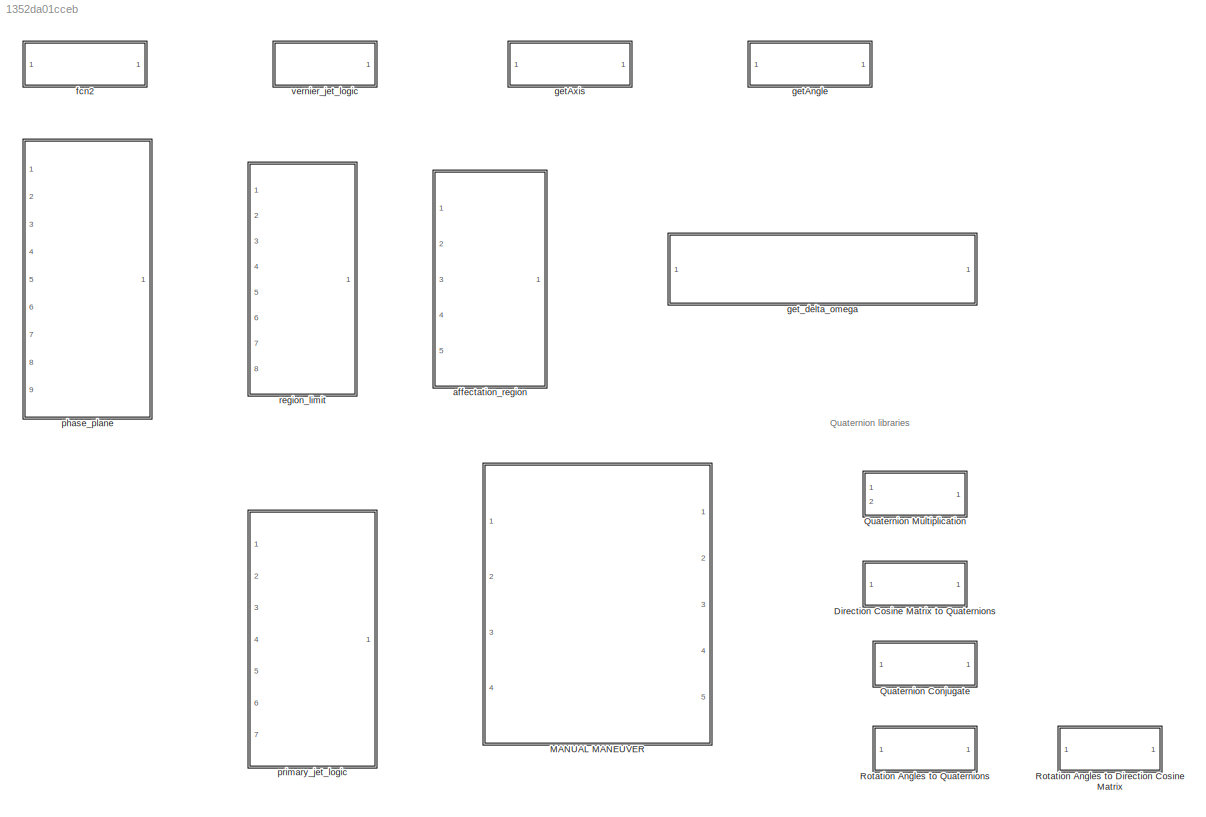
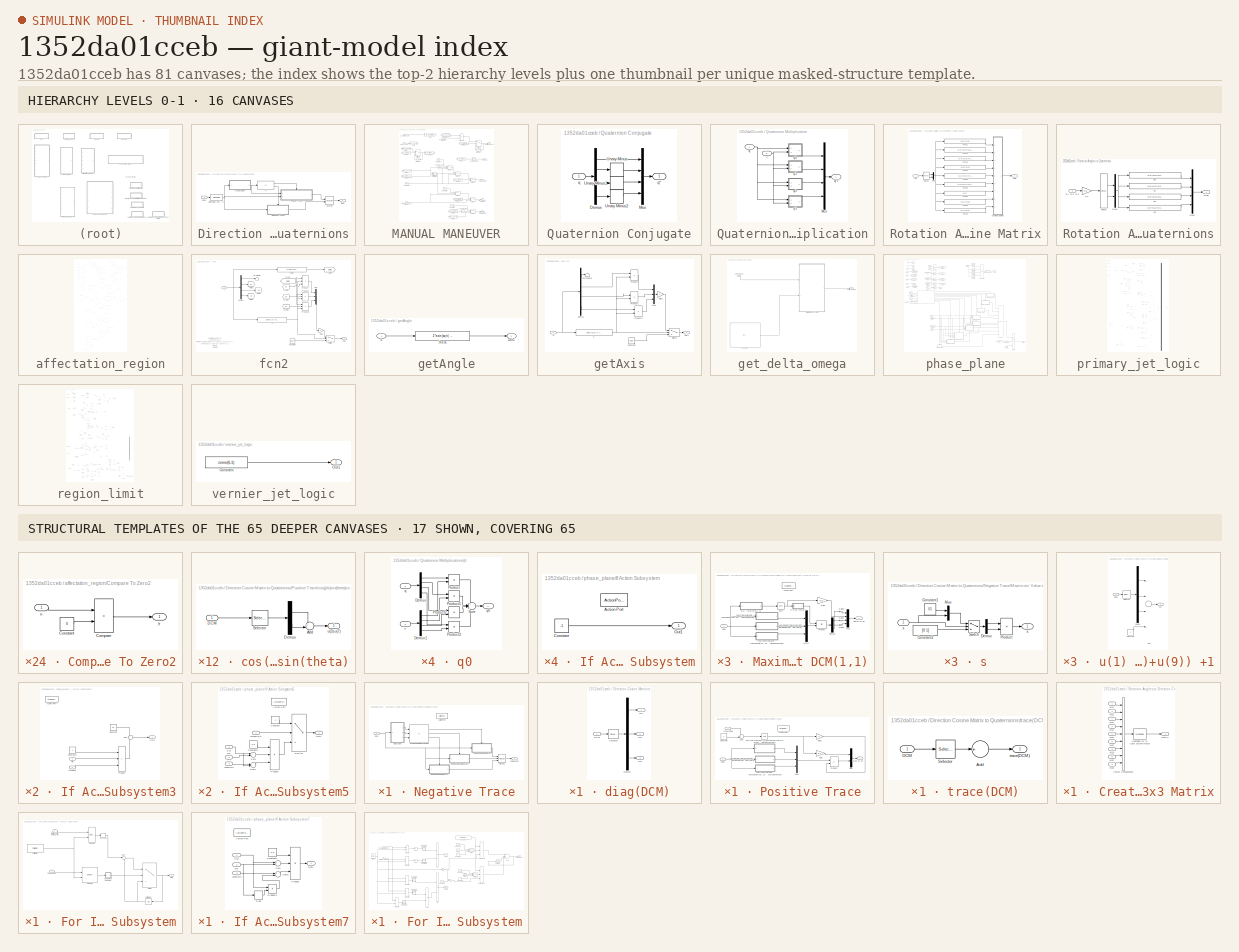
[diagram: thumbnail index - top-2 hierarchy levels (16 canvases) + 17 structural-template representatives of the remaining 65 canvases]
MODEL slx_1352da01cceb
KIND library
CONFIG AbsTol = auto
CONFIG EnableMultiTasking = off
CONFIG FixedStep = auto
CONFIG MaxStep = auto
CONFIG MinStep = auto
CONFIG RelTol = 1e-3
CONFIG SampleTimeConstraint = Unconstrained
CONFIG Solver = VariableStepAuto
CONFIG SolverName = VariableStepAuto
CONFIG StartTime = 0.0
CONFIG StopTime = 10.0
BLOCK [SubSystem] Direction Cosine Matrix to Quaternions
  Ports = [1, 1]
  RequestExecContextInheritance = off
  Variant = off
BLOCK [Inport] Direction Cosine Matrix to Quaternions/DCM
  IconDisplay = Port number
  PortDimensions = [3,3]
  Unit = 1
BLOCK [If] Direction Cosine Matrix to Quaternions/If
  Ports = [1, 2]
BLOCK [Merge] Direction Cosine Matrix to Quaternions/Merge
  InitialOutput = [1 0 0 0]
  Ports = [2, 1]
BLOCK [SubSystem] Direction Cosine Matrix to Quaternions/Negative Trace
  Ports = [1, 1, 0, 0, 0, 0, 0, 1]
  RequestExecContextInheritance = off
  Variant = off
BLOCK [ActionPort] Direction Cosine Matrix to Quaternions/Negative Trace/Action Port
  ActionType = else
  PropagateVarSize = During execution
BLOCK [Inport] Direction Cosine Matrix to Quaternions/Negative Trace/DCM
  IconDisplay = Port number
BLOCK [If] Direction Cosine Matrix to Quaternions/Negative Trace/Find Maximum Diagonal Value
  ElseIfExpressions = u3 > u1
  IfExpression = ((u2 > u1) & (u2 > u3))
  NumInputs = 3
  Ports = [3, 3]
BLOCK [SubSystem] Direction Cosine Matrix to Quaternions/Negative Trace/Maximum Value at DCM(1,1)
  Ports = [1, 1, 0, 0, 0, 0, 0, 1]
  RequestExecContextInheritance = off
  Variant = off
BLOCK [ActionPort] Direction Cosine Matrix to Quaternions/Negative Trace/Maximum Value at DCM(1,1)/Action Port
  ActionType = else
  PropagateVarSize = During execution
BLOCK [Inport] Direction Cosine Matrix to Quaternions/Negative Trace/Maximum Value at DCM(1,1)/DCM
  IconDisplay = Port number
BLOCK [Demux] Direction Cosine Matrix to Quaternions/Negative Trace/Maximum Value at DCM(1,1)/Demux
  Outputs = 3
  Ports = [1, 3]
BLOCK [Gain] Direction Cosine Matrix to Quaternions/Negative Trace/Maximum Value at DCM(1,1)/Gain
  Gain = 0.5
BLOCK [Gain] Direction Cosine Matrix to Quaternions/Negative Trace/Maximum Value at DCM(1,1)/Gain1
BLOCK [Gain] Direction Cosine Matrix to Quaternions/Negative Trace/Maximum Value at DCM(1,1)/Gain2
BLOCK [Gain] Direction Cosine Matrix to Quaternions/Negative Trace/Maximum Value at DCM(1,1)/Gain3
BLOCK [Mux] Direction Cosine Matrix to Quaternions/Negative Trace/Maximum Value at DCM(1,1)/Mux
  DisplayOption = bar
  Ports = [4, 1]
BLOCK [Mux] Direction Cosine Matrix to Quaternions/Negative Trace/Maximum Value at DCM(1,1)/Mux1
  DisplayOption = bar
  Inputs = 3
  Ports = [3, 1]
BLOCK [Product] Direction Cosine Matrix to Quaternions/Negative Trace/Maximum Value at DCM(1,1)/Product
  Ports = [2, 1]
  RndMeth = Floor
BLOCK [SubSystem] Direction Cosine Matrix to Quaternions/Negative Trace/Maximum Value at DCM(1,1)/cos(phi)sin(theta)cos(psi) + sin(phi)sin(psi) -sin(theta)
  Ports = [1, 1]
  RequestExecContextInheritance = off
  Variant = off
BLOCK [Sum] Direction Cosine Matrix to Quaternions/Negative Trace/Maximum Value at DCM(1,1)/cos(phi)sin(theta)cos(psi) + sin(phi)sin(psi) -sin(theta)/Add
  IconShape = round
  InputSameDT = off
  Inputs = ++|
  OutDataTypeStr = Inherit: Inherit via internal rule
  Ports = [2, 1]
  SaturateOnIntegerOverflow = off
BLOCK [Inport] Direction Cosine Matrix to Quaternions/Negative Trace/Maximum Value at DCM(1,1)/cos(phi)sin(theta)cos(psi) + sin(phi)sin(psi) -sin(theta)/DCM
  IconDisplay = Port number
BLOCK [Demux] Direction Cosine Matrix to Quaternions/Negative Trace/Maximum Value at DCM(1,1)/cos(phi)sin(theta)cos(psi) + sin(phi)sin(psi) -sin(theta)/Demux
  DisplayOption = bar
  Outputs = 2
  Ports = [1, 2]
BLOCK [Selector] Direction Cosine Matrix to Quaternions/Negative Trace/Maximum Value at DCM(1,1)/cos(phi)sin(theta)cos(psi) + sin(phi)sin(psi) -sin(theta)/Selector
  IndexOptions = Index vector (dialog)
  Indices = [3 7]
  InputPortWidth = 9
  OutputSizes = 1
  Ports = [1, 1]
BLOCK [Outport] Direction Cosine Matrix to Quaternions/Negative Trace/Maximum Value at DCM(1,1)/cos(phi)sin(theta)cos(psi) + sin(phi)sin(psi) -sin(theta)/u(3)+u(7)
  IconDisplay = Port number
BLOCK [SubSystem] Direction Cosine Matrix to Quaternions/Negative Trace/Maximum Value at DCM(1,1)/cos(theta)sin(phi) - (cos(phi)sin(theta)sin(psi) - sin(phi)cos(psi))
  Ports = [1, 1]
  RequestExecContextInheritance = off
  Variant = off
BLOCK [Sum] Direction Cosine Matrix to Quaternions/Negative Trace/Maximum Value at DCM(1,1)/cos(theta)sin(phi) - (cos(phi)sin(theta)sin(psi) - sin(phi)cos(psi))/Add
  IconShape = round
  InputSameDT = off
  Inputs = |-+
  OutDataTypeStr = Inherit: Inherit via internal rule
  Ports = [2, 1]
  SaturateOnIntegerOverflow = off
BLOCK [Inport] Direction Cosine Matrix to Quaternions/Negative Trace/Maximum Value at DCM(1,1)/cos(theta)sin(phi) - (cos(phi)sin(theta)sin(psi) - sin(phi)cos(psi))/DCM
  IconDisplay = Port number
BLOCK [Demux] Direction Cosine Matrix to Quaternions/Negative Trace/Maximum Value at DCM(1,1)/cos(theta)sin(phi) - (cos(phi)sin(theta)sin(psi) - sin(phi)cos(psi))/Demux
  DisplayOption = bar
  Outputs = 2
  Ports = [1, 2]
BLOCK [Selector] Direction Cosine Matrix to Quaternions/Negative Trace/Maximum Value at DCM(1,1)/cos(theta)sin(phi) - (cos(phi)sin(theta)sin(psi) - sin(phi)cos(psi))/Selector
  IndexOptions = Index vector (dialog)
  Indices = [6 8]
  InputPortWidth = 9
  OutputSizes = 1
  Ports = [1, 1]
BLOCK [Outport] Direction Cosine Matrix to Quaternions/Negative Trace/Maximum Value at DCM(1,1)/cos(theta)sin(phi) - (cos(phi)sin(theta)sin(psi) - sin(phi)cos(psi))/u(8)-u(6)
  IconDisplay = Port number
BLOCK [SubSystem] Direction Cosine Matrix to Quaternions/Negative Trace/Maximum Value at DCM(1,1)/cos(theta)sin(psi) + (sin(phi)sin(theta)cos(psi) - cos(phi)sin(psi))
  Ports = [1, 1]
  RequestExecContextInheritance = off
  Variant = off
BLOCK [Sum] Direction Cosine Matrix to Quaternions/Negative Trace/Maximum Value at DCM(1,1)/cos(theta)sin(psi) + (sin(phi)sin(theta)cos(psi) - cos(phi)sin(psi))/Add
  IconShape = round
  InputSameDT = off
  Inputs = |++
  OutDataTypeStr = Inherit: Inherit via internal rule
  Ports = [2, 1]
  SaturateOnIntegerOverflow = off
BLOCK [Inport] Direction Cosine Matrix to Quaternions/Negative Trace/Maximum Value at DCM(1,1)/cos(theta)sin(psi) + (sin(phi)sin(theta)cos(psi) - cos(phi)sin(psi))/DCM
  IconDisplay = Port number
BLOCK [Demux] Direction Cosine Matrix to Quaternions/Negative Trace/Maximum Value at DCM(1,1)/cos(theta)sin(psi) + (sin(phi)sin(theta)cos(psi) - cos(phi)sin(psi))/Demux
  DisplayOption = bar
  Outputs = 2
  Ports = [1, 2]
BLOCK [Selector] Direction Cosine Matrix to Quaternions/Negative Trace/Maximum Value at DCM(1,1)/cos(theta)sin(psi) + (sin(phi)sin(theta)cos(psi) - cos(phi)sin(psi))/Selector
  IndexOptions = Index vector (dialog)
  Indices = [2 4]
  InputPortWidth = 9
  OutputSizes = 1
  Ports = [1, 1]
BLOCK [Outport] Direction Cosine Matrix to Quaternions/Negative Trace/Maximum Value at DCM(1,1)/cos(theta)sin(psi) + (sin(phi)sin(theta)cos(psi) - cos(phi)sin(psi))/u(4)+u(2)
  IconDisplay = Port number
BLOCK [SubSystem] Direction Cosine Matrix to Quaternions/Negative Trace/Maximum Value at DCM(1,1)/if s~=0; s=0.5//s
  Ports = [1, 1]
  RequestExecContextInheritance = off
  Variant = off
BLOCK [Constant] Direction Cosine Matrix to Quaternions/Negative Trace/Maximum Value at DCM(1,1)/if s~=0; s=0.5//s/Constant1
  OutDataTypeStr = Inherit: Inherit via back propagation
  Value = 0.5
BLOCK [Constant] Direction Cosine Matrix to Quaternions/Negative Trace/Maximum Value at DCM(1,1)/if s~=0; s=0.5//s/Constant2
  OutDataTypeStr = Inherit: Inherit via back propagation
  Value = [0 1]
BLOCK [Demux] Direction Cosine Matrix to Quaternions/Negative Trace/Maximum Value at DCM(1,1)/if s~=0; s=0.5//s/Demux
  DisplayOption = bar
  Outputs = 2
  Ports = [1, 2]
BLOCK [Mux] Direction Cosine Matrix to Quaternions/Negative Trace/Maximum Value at DCM(1,1)/if s~=0; s=0.5//s/Mux
  DisplayOption = bar
  Inputs = 2
  Ports = [2, 1]
BLOCK [Product] Direction Cosine Matrix to Quaternions/Negative Trace/Maximum Value at DCM(1,1)/if s~=0; s=0.5//s/Product
  InputSameDT = off
  Inputs = */
  OutDataTypeStr = Inherit: Inherit via internal rule
  Ports = [2, 1]
  SaturateOnIntegerOverflow = off
BLOCK [Switch] Direction Cosine Matrix to Quaternions/Negative Trace/Maximum Value at DCM(1,1)/if s~=0; s=0.5//s/Switch
  Criteria = u2 ~= 0
BLOCK [Inport] Direction Cosine Matrix to Quaternions/Negative Trace/Maximum Value at DCM(1,1)/if s~=0; s=0.5//s/s
  IconDisplay = Port number
BLOCK [Outport] Direction Cosine Matrix to Quaternions/Negative Trace/Maximum Value at DCM(1,1)/if s~=0; s=0.5//s/s 
  IconDisplay = Port number
BLOCK [Outport] Direction Cosine Matrix to Quaternions/Negative Trace/Maximum Value at DCM(1,1)/qw qx qy qz
  IconDisplay = Port number
BLOCK [Sqrt] Direction Cosine Matrix to Quaternions/Negative Trace/Maximum Value at DCM(1,1)/sqrt
  AlgorithmType = Newton-Raphson
BLOCK [SubSystem] Direction Cosine Matrix to Quaternions/Negative Trace/Maximum Value at DCM(1,1)/u(1) -(u(5)+u(9)) +1
  Ports = [1, 1]
  RequestExecContextInheritance = off
  Variant = off
BLOCK [Sum] Direction Cosine Matrix to Quaternions/Negative Trace/Maximum Value at DCM(1,1)/u(1) -(u(5)+u(9)) +1/Add
  InputSameDT = off
  Inputs = +--+
  OutDataTypeStr = Inherit: Inherit via internal rule
  Ports = [4, 1]
  SaturateOnIntegerOverflow = off
BLOCK [Constant] Direction Cosine Matrix to Quaternions/Negative Trace/Maximum Value at DCM(1,1)/u(1) -(u(5)+u(9)) +1/Constant
  OutDataTypeStr = Inherit: Inherit via back propagation
BLOCK [Inport] Direction Cosine Matrix to Quaternions/Negative Trace/Maximum Value at DCM(1,1)/u(1) -(u(5)+u(9)) +1/DCM
  IconDisplay = Port number
BLOCK [Demux] Direction Cosine Matrix to Quaternions/Negative Trace/Maximum Value at DCM(1,1)/u(1) -(u(5)+u(9)) +1/Demux
  DisplayOption = bar
  Outputs = 3
  Ports = [1, 3]
BLOCK [Selector] Direction Cosine Matrix to Quaternions/Negative Trace/Maximum Value at DCM(1,1)/u(1) -(u(5)+u(9)) +1/Selector
  IndexOptions = Index vector (dialog)
  Indices = [1 5 9]
  InputPortWidth = 9
  OutputSizes = 1
  Ports = [1, 1]
BLOCK [Outport] Direction Cosine Matrix to Quaternions/Negative Trace/Maximum Value at DCM(1,1)/u(1) -(u(5)+u(9)) +1/out
  IconDisplay = Port number
BLOCK [SubSystem] Direction Cosine Matrix to Quaternions/Negative Trace/Maximum Value at DCM(2,2)
  Ports = [1, 1, 0, 0, 0, 0, 0, 1]
  RequestExecContextInheritance = off
  Variant = off
BLOCK [ActionPort] Direction Cosine Matrix to Quaternions/Negative Trace/Maximum Value at DCM(2,2)/Action Port
  ActionType = then
  PropagateVarSize = During execution
BLOCK [Inport] Direction Cosine Matrix to Quaternions/Negative Trace/Maximum Value at DCM(2,2)/DCM
  IconDisplay = Port number
BLOCK [Demux] Direction Cosine Matrix to Quaternions/Negative Trace/Maximum Value at DCM(2,2)/Demux
  Outputs = 3
  Ports = [1, 3]
BLOCK [Gain] Direction Cosine Matrix to Quaternions/Negative Trace/Maximum Value at DCM(2,2)/Gain
  Gain = 0.5
BLOCK [Gain] Direction Cosine Matrix to Quaternions/Negative Trace/Maximum Value at DCM(2,2)/Gain1
BLOCK [Gain] Direction Cosine Matrix to Quaternions/Negative Trace/Maximum Value at DCM(2,2)/Gain3
BLOCK [Gain] Direction Cosine Matrix to Quaternions/Negative Trace/Maximum Value at DCM(2,2)/Gain4
BLOCK [Mux] Direction Cosine Matrix to Quaternions/Negative Trace/Maximum Value at DCM(2,2)/Mux
  DisplayOption = bar
  Ports = [4, 1]
BLOCK [Mux] Direction Cosine Matrix to Quaternions/Negative Trace/Maximum Value at DCM(2,2)/Mux1
  DisplayOption = bar
  Inputs = 3
  Ports = [3, 1]
BLOCK [Product] Direction Cosine Matrix to Quaternions/Negative Trace/Maximum Value at DCM(2,2)/Product
  Ports = [2, 1]
  RndMeth = Floor
BLOCK [SubSystem] Direction Cosine Matrix to Quaternions/Negative Trace/Maximum Value at DCM(2,2)/cos(phi)sin(theta)cos(psi) + sin(phi)sin(psi) +sin(theta)
  Ports = [1, 1]
  RequestExecContextInheritance = off
  Variant = off
BLOCK [Sum] Direction Cosine Matrix to Quaternions/Negative Trace/Maximum Value at DCM(2,2)/cos(phi)sin(theta)cos(psi) + sin(phi)sin(psi) +sin(theta)/Add
  IconShape = round
  InputSameDT = off
  Inputs = +-|
  OutDataTypeStr = Inherit: Inherit via internal rule
  Ports = [2, 1]
  SaturateOnIntegerOverflow = off
BLOCK [Inport] Direction Cosine Matrix to Quaternions/Negative Trace/Maximum Value at DCM(2,2)/cos(phi)sin(theta)cos(psi) + sin(phi)sin(psi) +sin(theta)/DCM
  IconDisplay = Port number
BLOCK [Demux] Direction Cosine Matrix to Quaternions/Negative Trace/Maximum Value at DCM(2,2)/cos(phi)sin(theta)cos(psi) + sin(phi)sin(psi) +sin(theta)/Demux
  DisplayOption = bar
  Outputs = 2
  Ports = [1, 2]
BLOCK [Selector] Direction Cosine Matrix to Quaternions/Negative Trace/Maximum Value at DCM(2,2)/cos(phi)sin(theta)cos(psi) + sin(phi)sin(psi) +sin(theta)/Selector
  IndexOptions = Index vector (dialog)
  Indices = [3 7]
  InputPortWidth = 9
  OutputSizes = 1
  Ports = [1, 1]
BLOCK [Outport] Direction Cosine Matrix to Quaternions/Negative Trace/Maximum Value at DCM(2,2)/cos(phi)sin(theta)cos(psi) + sin(phi)sin(psi) +sin(theta)/u(3)-u(7)
  IconDisplay = Port number
BLOCK [SubSystem] Direction Cosine Matrix to Quaternions/Negative Trace/Maximum Value at DCM(2,2)/cos(theta)sin(phi) + (cos(phi)sin(theta)sin(psi) - sin(phi)cos(psi))
  Ports = [1, 1]
  RequestExecContextInheritance = off
  Variant = off
BLOCK [Sum] Direction Cosine Matrix to Quaternions/Negative Trace/Maximum Value at DCM(2,2)/cos(theta)sin(phi) + (cos(phi)sin(theta)sin(psi) - sin(phi)cos(psi))/Add
  IconShape = round
  InputSameDT = off
  Inputs = |++
  OutDataTypeStr = Inherit: Inherit via internal rule
  Ports = [2, 1]
  SaturateOnIntegerOverflow = off
BLOCK [Inport] Direction Cosine Matrix to Quaternions/Negative Trace/Maximum Value at DCM(2,2)/cos(theta)sin(phi) + (cos(phi)sin(theta)sin(psi) - sin(phi)cos(psi))/DCM
  IconDisplay = Port number
BLOCK [Demux] Direction Cosine Matrix to Quaternions/Negative Trace/Maximum Value at DCM(2,2)/cos(theta)sin(phi) + (cos(phi)sin(theta)sin(psi) - sin(phi)cos(psi))/Demux
  DisplayOption = bar
  Outputs = 2
  Ports = [1, 2]
BLOCK [Selector] Direction Cosine Matrix to Quaternions/Negative Trace/Maximum Value at DCM(2,2)/cos(theta)sin(phi) + (cos(phi)sin(theta)sin(psi) - sin(phi)cos(psi))/Selector
  IndexOptions = Index vector (dialog)
  Indices = [6 8]
  InputPortWidth = 9
  OutputSizes = 1
  Ports = [1, 1]
BLOCK [Outport] Direction Cosine Matrix to Quaternions/Negative Trace/Maximum Value at DCM(2,2)/cos(theta)sin(phi) + (cos(phi)sin(theta)sin(psi) - sin(phi)cos(psi))/u(8)+u(6)
  IconDisplay = Port number
BLOCK [SubSystem] Direction Cosine Matrix to Quaternions/Negative Trace/Maximum Value at DCM(2,2)/cos(theta)sin(psi) + (sin(phi)sin(theta)cos(psi) - cos(phi)sin(psi))
  Ports = [1, 1]
  RequestExecContextInheritance = off
  Variant = off
BLOCK [Sum] Direction Cosine Matrix to Quaternions/Negative Trace/Maximum Value at DCM(2,2)/cos(theta)sin(psi) + (sin(phi)sin(theta)cos(psi) - cos(phi)sin(psi))/Add
  IconShape = round
  InputSameDT = off
  Inputs = |++
  OutDataTypeStr = Inherit: Inherit via internal rule
  Ports = [2, 1]
  SaturateOnIntegerOverflow = off
BLOCK [Inport] Direction Cosine Matrix to Quaternions/Negative Trace/Maximum Value at DCM(2,2)/cos(theta)sin(psi) + (sin(phi)sin(theta)cos(psi) - cos(phi)sin(psi))/DCM
  IconDisplay = Port number
BLOCK [Demux] Direction Cosine Matrix to Quaternions/Negative Trace/Maximum Value at DCM(2,2)/cos(theta)sin(psi) + (sin(phi)sin(theta)cos(psi) - cos(phi)sin(psi))/Demux
  DisplayOption = bar
  Outputs = 2
  Ports = [1, 2]
BLOCK [Selector] Direction Cosine Matrix to Quaternions/Negative Trace/Maximum Value at DCM(2,2)/cos(theta)sin(psi) + (sin(phi)sin(theta)cos(psi) - cos(phi)sin(psi))/Selector
  IndexOptions = Index vector (dialog)
  Indices = [2 4]
  InputPortWidth = 9
  OutputSizes = 1
  Ports = [1, 1]
BLOCK [Outport] Direction Cosine Matrix to Quaternions/Negative Trace/Maximum Value at DCM(2,2)/cos(theta)sin(psi) + (sin(phi)sin(theta)cos(psi) - cos(phi)sin(psi))/u(4)+u(2)
  IconDisplay = Port number
BLOCK [SubSystem] Direction Cosine Matrix to Quaternions/Negative Trace/Maximum Value at DCM(2,2)/if s~=0; s=0.5//s
  Ports = [1, 1]
  RequestExecContextInheritance = off
  Variant = off
BLOCK [Constant] Direction Cosine Matrix to Quaternions/Negative Trace/Maximum Value at DCM(2,2)/if s~=0; s=0.5//s/Constant1
  OutDataTypeStr = Inherit: Inherit via back propagation
  Value = 0.5
BLOCK [Constant] Direction Cosine Matrix to Quaternions/Negative Trace/Maximum Value at DCM(2,2)/if s~=0; s=0.5//s/Constant2
  OutDataTypeStr = Inherit: Inherit via back propagation
  Value = [0 1]
BLOCK [Demux] Direction Cosine Matrix to Quaternions/Negative Trace/Maximum Value at DCM(2,2)/if s~=0; s=0.5//s/Demux
  DisplayOption = bar
  Outputs = 2
  Ports = [1, 2]
BLOCK [Mux] Direction Cosine Matrix to Quaternions/Negative Trace/Maximum Value at DCM(2,2)/if s~=0; s=0.5//s/Mux
  DisplayOption = bar
  Inputs = 2
  Ports = [2, 1]
BLOCK [Product] Direction Cosine Matrix to Quaternions/Negative Trace/Maximum Value at DCM(2,2)/if s~=0; s=0.5//s/Product
  InputSameDT = off
  Inputs = */
  OutDataTypeStr = Inherit: Inherit via internal rule
  Ports = [2, 1]
  SaturateOnIntegerOverflow = off
BLOCK [Switch] Direction Cosine Matrix to Quaternions/Negative Trace/Maximum Value at DCM(2,2)/if s~=0; s=0.5//s/Switch
  Criteria = u2 ~= 0
BLOCK [Inport] Direction Cosine Matrix to Quaternions/Negative Trace/Maximum Value at DCM(2,2)/if s~=0; s=0.5//s/s
  IconDisplay = Port number
BLOCK [Outport] Direction Cosine Matrix to Quaternions/Negative Trace/Maximum Value at DCM(2,2)/if s~=0; s=0.5//s/s 
  IconDisplay = Port number
BLOCK [Outport] Direction Cosine Matrix to Quaternions/Negative Trace/Maximum Value at DCM(2,2)/qw qx qy qz
  IconDisplay = Port number
BLOCK [Sqrt] Direction Cosine Matrix to Quaternions/Negative Trace/Maximum Value at DCM(2,2)/sqrt
  AlgorithmType = Newton-Raphson
BLOCK [SubSystem] Direction Cosine Matrix to Quaternions/Negative Trace/Maximum Value at DCM(2,2)/u(5) -(u(1)+u(9)) +1
  Ports = [1, 1]
  RequestExecContextInheritance = off
  Variant = off
BLOCK [Sum] Direction Cosine Matrix to Quaternions/Negative Trace/Maximum Value at DCM(2,2)/u(5) -(u(1)+u(9)) +1/Add
  InputSameDT = off
  Inputs = -+-+
  OutDataTypeStr = Inherit: Inherit via internal rule
  Ports = [4, 1]
  SaturateOnIntegerOverflow = off
BLOCK [Constant] Direction Cosine Matrix to Quaternions/Negative Trace/Maximum Value at DCM(2,2)/u(5) -(u(1)+u(9)) +1/Constant
  OutDataTypeStr = Inherit: Inherit via back propagation
BLOCK [Inport] Direction Cosine Matrix to Quaternions/Negative Trace/Maximum Value at DCM(2,2)/u(5) -(u(1)+u(9)) +1/DCM
  IconDisplay = Port number
BLOCK [Demux] Direction Cosine Matrix to Quaternions/Negative Trace/Maximum Value at DCM(2,2)/u(5) -(u(1)+u(9)) +1/Demux
  DisplayOption = bar
  Outputs = 3
  Ports = [1, 3]
BLOCK [Selector] Direction Cosine Matrix to Quaternions/Negative Trace/Maximum Value at DCM(2,2)/u(5) -(u(1)+u(9)) +1/Selector
  IndexOptions = Index vector (dialog)
  Indices = [1 5 9]
  InputPortWidth = 9
  OutputSizes = 1
  Ports = [1, 1]
BLOCK [Outport] Direction Cosine Matrix to Quaternions/Negative Trace/Maximum Value at DCM(2,2)/u(5) -(u(1)+u(9)) +1/out
  IconDisplay = Port number
BLOCK [SubSystem] Direction Cosine Matrix to Quaternions/Negative Trace/Maximum Value at DCM(3,3)
  Ports = [1, 1, 0, 0, 0, 0, 0, 1]
  RequestExecContextInheritance = off
  Variant = off
BLOCK [ActionPort] Direction Cosine Matrix to Quaternions/Negative Trace/Maximum Value at DCM(3,3)/Action Port
  ActionType = elseif
  PropagateVarSize = During execution
BLOCK [Inport] Direction Cosine Matrix to Quaternions/Negative Trace/Maximum Value at DCM(3,3)/DCM
  IconDisplay = Port number
BLOCK [Demux] Direction Cosine Matrix to Quaternions/Negative Trace/Maximum Value at DCM(3,3)/Demux
  Outputs = 3
  Ports = [1, 3]
BLOCK [Gain] Direction Cosine Matrix to Quaternions/Negative Trace/Maximum Value at DCM(3,3)/Gain
  Gain = 0.5
BLOCK [Gain] Direction Cosine Matrix to Quaternions/Negative Trace/Maximum Value at DCM(3,3)/Gain1
BLOCK [Gain] Direction Cosine Matrix to Quaternions/Negative Trace/Maximum Value at DCM(3,3)/Gain2
BLOCK [Gain] Direction Cosine Matrix to Quaternions/Negative Trace/Maximum Value at DCM(3,3)/Gain3
BLOCK [Mux] Direction Cosine Matrix to Quaternions/Negative Trace/Maximum Value at DCM(3,3)/Mux
  DisplayOption = bar
  Ports = [4, 1]
BLOCK [Mux] Direction Cosine Matrix to Quaternions/Negative Trace/Maximum Value at DCM(3,3)/Mux1
  DisplayOption = bar
  Inputs = 3
  Ports = [3, 1]
BLOCK [Product] Direction Cosine Matrix to Quaternions/Negative Trace/Maximum Value at DCM(3,3)/Product
  Ports = [2, 1]
  RndMeth = Floor
BLOCK [SubSystem] Direction Cosine Matrix to Quaternions/Negative Trace/Maximum Value at DCM(3,3)/cos(phi)sin(theta)cos(psi) + sin(phi)sin(psi) -sin(theta)
  Ports = [1, 1]
  RequestExecContextInheritance = off
  Variant = off
BLOCK [Sum] Direction Cosine Matrix to Quaternions/Negative Trace/Maximum Value at DCM(3,3)/cos(phi)sin(theta)cos(psi) + sin(phi)sin(psi) -sin(theta)/Add
  IconShape = round
  InputSameDT = off
  Inputs = ++|
  OutDataTypeStr = Inherit: Inherit via internal rule
  Ports = [2, 1]
  SaturateOnIntegerOverflow = off
BLOCK [Inport] Direction Cosine Matrix to Quaternions/Negative Trace/Maximum Value at DCM(3,3)/cos(phi)sin(theta)cos(psi) + sin(phi)sin(psi) -sin(theta)/DCM
  IconDisplay = Port number
BLOCK [Demux] Direction Cosine Matrix to Quaternions/Negative Trace/Maximum Value at DCM(3,3)/cos(phi)sin(theta)cos(psi) + sin(phi)sin(psi) -sin(theta)/Demux
  DisplayOption = bar
  Outputs = 2
  Ports = [1, 2]
BLOCK [Selector] Direction Cosine Matrix to Quaternions/Negative Trace/Maximum Value at DCM(3,3)/cos(phi)sin(theta)cos(psi) + sin(phi)sin(psi) -sin(theta)/Selector
  IndexOptions = Index vector (dialog)
  Indices = [3 7]
  InputPortWidth = 9
  OutputSizes = 1
  Ports = [1, 1]
BLOCK [Outport] Direction Cosine Matrix to Quaternions/Negative Trace/Maximum Value at DCM(3,3)/cos(phi)sin(theta)cos(psi) + sin(phi)sin(psi) -sin(theta)/u(3)+u(7)
  IconDisplay = Port number
BLOCK [SubSystem] Direction Cosine Matrix to Quaternions/Negative Trace/Maximum Value at DCM(3,3)/cos(theta)sin(phi) + (cos(phi)sin(theta)sin(psi) - sin(phi)cos(psi))
  Ports = [1, 1]
  RequestExecContextInheritance = off
  Variant = off
BLOCK [Sum] Direction Cosine Matrix to Quaternions/Negative Trace/Maximum Value at DCM(3,3)/cos(theta)sin(phi) + (cos(phi)sin(theta)sin(psi) - sin(phi)cos(psi))/Add
  IconShape = round
  InputSameDT = off
  Inputs = |++
  OutDataTypeStr = Inherit: Inherit via internal rule
  Ports = [2, 1]
  SaturateOnIntegerOverflow = off
BLOCK [Inport] Direction Cosine Matrix to Quaternions/Negative Trace/Maximum Value at DCM(3,3)/cos(theta)sin(phi) + (cos(phi)sin(theta)sin(psi) - sin(phi)cos(psi))/DCM
  IconDisplay = Port number
BLOCK [Demux] Direction Cosine Matrix to Quaternions/Negative Trace/Maximum Value at DCM(3,3)/cos(theta)sin(phi) + (cos(phi)sin(theta)sin(psi) - sin(phi)cos(psi))/Demux
  DisplayOption = bar
  Outputs = 2
  Ports = [1, 2]
BLOCK [Selector] Direction Cosine Matrix to Quaternions/Negative Trace/Maximum Value at DCM(3,3)/cos(theta)sin(phi) + (cos(phi)sin(theta)sin(psi) - sin(phi)cos(psi))/Selector
  IndexOptions = Index vector (dialog)
  Indices = [6 8]
  InputPortWidth = 9
  OutputSizes = 1
  Ports = [1, 1]
BLOCK [Outport] Direction Cosine Matrix to Quaternions/Negative Trace/Maximum Value at DCM(3,3)/cos(theta)sin(phi) + (cos(phi)sin(theta)sin(psi) - sin(phi)cos(psi))/u(8)+u(6)
  IconDisplay = Port number
BLOCK [SubSystem] Direction Cosine Matrix to Quaternions/Negative Trace/Maximum Value at DCM(3,3)/cos(theta)sin(psi) - (sin(phi)sin(theta)cos(psi) - cos(phi)sin(psi))
  Ports = [1, 1]
  RequestExecContextInheritance = off
  Variant = off
BLOCK [Sum] Direction Cosine Matrix to Quaternions/Negative Trace/Maximum Value at DCM(3,3)/cos(theta)sin(psi) - (sin(phi)sin(theta)cos(psi) - cos(phi)sin(psi))/Add
  IconShape = round
  InputSameDT = off
  Inputs = |-+
  OutDataTypeStr = Inherit: Inherit via internal rule
  Ports = [2, 1]
  SaturateOnIntegerOverflow = off
BLOCK [Inport] Direction Cosine Matrix to Quaternions/Negative Trace/Maximum Value at DCM(3,3)/cos(theta)sin(psi) - (sin(phi)sin(theta)cos(psi) - cos(phi)sin(psi))/DCM
  IconDisplay = Port number
BLOCK [Demux] Direction Cosine Matrix to Quaternions/Negative Trace/Maximum Value at DCM(3,3)/cos(theta)sin(psi) - (sin(phi)sin(theta)cos(psi) - cos(phi)sin(psi))/Demux
  DisplayOption = bar
  Outputs = 2
  Ports = [1, 2]
BLOCK [Selector] Direction Cosine Matrix to Quaternions/Negative Trace/Maximum Value at DCM(3,3)/cos(theta)sin(psi) - (sin(phi)sin(theta)cos(psi) - cos(phi)sin(psi))/Selector
  IndexOptions = Index vector (dialog)
  Indices = [2 4]
  InputPortWidth = 9
  OutputSizes = 1
  Ports = [1, 1]
BLOCK [Outport] Direction Cosine Matrix to Quaternions/Negative Trace/Maximum Value at DCM(3,3)/cos(theta)sin(psi) - (sin(phi)sin(theta)cos(psi) - cos(phi)sin(psi))/u(4)-u(2)
  IconDisplay = Port number
BLOCK [SubSystem] Direction Cosine Matrix to Quaternions/Negative Trace/Maximum Value at DCM(3,3)/if s~=0; s=0.5//s
  Ports = [1, 1]
  RequestExecContextInheritance = off
  Variant = off
BLOCK [Constant] Direction Cosine Matrix to Quaternions/Negative Trace/Maximum Value at DCM(3,3)/if s~=0; s=0.5//s/Constant1
  OutDataTypeStr = Inherit: Inherit via back propagation
  Value = 0.5
BLOCK [Constant] Direction Cosine Matrix to Quaternions/Negative Trace/Maximum Value at DCM(3,3)/if s~=0; s=0.5//s/Constant2
  OutDataTypeStr = Inherit: Inherit via back propagation
  Value = [0 1]
BLOCK [Demux] Direction Cosine Matrix to Quaternions/Negative Trace/Maximum Value at DCM(3,3)/if s~=0; s=0.5//s/Demux
  DisplayOption = bar
  Outputs = 2
  Ports = [1, 2]
BLOCK [Mux] Direction Cosine Matrix to Quaternions/Negative Trace/Maximum Value at DCM(3,3)/if s~=0; s=0.5//s/Mux
  DisplayOption = bar
  Inputs = 2
  Ports = [2, 1]
BLOCK [Product] Direction Cosine Matrix to Quaternions/Negative Trace/Maximum Value at DCM(3,3)/if s~=0; s=0.5//s/Product
  InputSameDT = off
  Inputs = */
  OutDataTypeStr = Inherit: Inherit via internal rule
  Ports = [2, 1]
  SaturateOnIntegerOverflow = off
BLOCK [Switch] Direction Cosine Matrix to Quaternions/Negative Trace/Maximum Value at DCM(3,3)/if s~=0; s=0.5//s/Switch
  Criteria = u2 ~= 0
BLOCK [Inport] Direction Cosine Matrix to Quaternions/Negative Trace/Maximum Value at DCM(3,3)/if s~=0; s=0.5//s/s
  IconDisplay = Port number
BLOCK [Outport] Direction Cosine Matrix to Quaternions/Negative Trace/Maximum Value at DCM(3,3)/if s~=0; s=0.5//s/s 
  IconDisplay = Port number
BLOCK [Outport] Direction Cosine Matrix to Quaternions/Negative Trace/Maximum Value at DCM(3,3)/qw qx qy qz
  IconDisplay = Port number
BLOCK [Sqrt] Direction Cosine Matrix to Quaternions/Negative Trace/Maximum Value at DCM(3,3)/sqrt
  AlgorithmType = Newton-Raphson
BLOCK [SubSystem] Direction Cosine Matrix to Quaternions/Negative Trace/Maximum Value at DCM(3,3)/u(9) -(u(1)+u(5)) +1
  Ports = [1, 1]
  RequestExecContextInheritance = off
  Variant = off
BLOCK [Sum] Direction Cosine Matrix to Quaternions/Negative Trace/Maximum Value at DCM(3,3)/u(9) -(u(1)+u(5)) +1/Add
  InputSameDT = off
  Inputs = --++
  OutDataTypeStr = Inherit: Inherit via internal rule
  Ports = [4, 1]
  SaturateOnIntegerOverflow = off
BLOCK [Constant] Direction Cosine Matrix to Quaternions/Negative Trace/Maximum Value at DCM(3,3)/u(9) -(u(1)+u(5)) +1/Constant
  OutDataTypeStr = Inherit: Inherit via back propagation
BLOCK [Inport] Direction Cosine Matrix to Quaternions/Negative Trace/Maximum Value at DCM(3,3)/u(9) -(u(1)+u(5)) +1/DCM
  IconDisplay = Port number
BLOCK [Demux] Direction Cosine Matrix to Quaternions/Negative Trace/Maximum Value at DCM(3,3)/u(9) -(u(1)+u(5)) +1/Demux
  DisplayOption = bar
  Outputs = 3
  Ports = [1, 3]
BLOCK [Selector] Direction Cosine Matrix to Quaternions/Negative Trace/Maximum Value at DCM(3,3)/u(9) -(u(1)+u(5)) +1/Selector
  IndexOptions = Index vector (dialog)
  Indices = [1 5 9]
  InputPortWidth = 9
  OutputSizes = 1
  Ports = [1, 1]
BLOCK [Outport] Direction Cosine Matrix to Quaternions/Negative Trace/Maximum Value at DCM(3,3)/u(9) -(u(1)+u(5)) +1/out
  IconDisplay = Port number
BLOCK [Merge] Direction Cosine Matrix to Quaternions/Negative Trace/Merge1
  Inputs = 3
  Ports = [3, 1]
BLOCK [SubSystem] Direction Cosine Matrix to Quaternions/Negative Trace/diag(DCM)
  Ports = [1, 3]
  RequestExecContextInheritance = off
  Variant = off
BLOCK [Inport] Direction Cosine Matrix to Quaternions/Negative Trace/diag(DCM)/DCM
  IconDisplay = Port number
BLOCK [Demux] Direction Cosine Matrix to Quaternions/Negative Trace/diag(DCM)/Demux
  DisplayOption = bar
  Outputs = 3
  Ports = [1, 3]
BLOCK [Selector] Direction Cosine Matrix to Quaternions/Negative Trace/diag(DCM)/Selector
  IndexOptions = Index vector (dialog)
  Indices = [1 5 9]
  InputPortWidth = 9
  OutputSizes = 1
  Ports = [1, 1]
BLOCK [Outport] Direction Cosine Matrix to Quaternions/Negative Trace/diag(DCM)/u(1)
  IconDisplay = Port number
BLOCK [Outport] Direction Cosine Matrix to Quaternions/Negative Trace/diag(DCM)/u(5)
  IconDisplay = Port number
  Port = 2
BLOCK [Outport] Direction Cosine Matrix to Quaternions/Negative Trace/diag(DCM)/u(9)
  IconDisplay = Port number
  Port = 3
BLOCK [Outport] Direction Cosine Matrix to Quaternions/Negative Trace/qw qx qy qz
  IconDisplay = Port number
BLOCK [SubSystem] Direction Cosine Matrix to Quaternions/Positive Trace
  Ports = [2, 1, 0, 0, 0, 0, 0, 1]
  RequestExecContextInheritance = off
  TreatAsAtomicUnit = on
  Variant = off
BLOCK [ActionPort] Direction Cosine Matrix to Quaternions/Positive Trace/Action Port
  ActionType = then
  PropagateVarSize = During execution
BLOCK [Constant] Direction Cosine Matrix to Quaternions/Positive Trace/Constant
  OutDataTypeStr = Inherit: Inherit via back propagation
BLOCK [Inport] Direction Cosine Matrix to Quaternions/Positive Trace/DCM
  IconDisplay = Port number
  Port = 2
BLOCK [Gain] Direction Cosine Matrix to Quaternions/Positive Trace/Gain
  Gain = 0.5
  OutDataTypeStr = Inherit: Inherit via back propagation
BLOCK [Gain] Direction Cosine Matrix to Quaternions/Positive Trace/Gain1
  Gain = 2
  OutDataTypeStr = Inherit: Inherit via back propagation
BLOCK [Mux] Direction Cosine Matrix to Quaternions/Positive Trace/Mux
  DisplayOption = bar
  Inputs = 2
  Ports = [2, 1]
BLOCK [Mux] Direction Cosine Matrix to Quaternions/Positive Trace/Mux1
  DisplayOption = bar
  Inputs = 3
  Ports = [3, 1]
BLOCK [Product] Direction Cosine Matrix to Quaternions/Positive Trace/Product
  Inputs = */
  Ports = [2, 1]
  RndMeth = Floor
BLOCK [Sum] Direction Cosine Matrix to Quaternions/Positive Trace/Sum
  IconShape = round
  Inputs = ++|
  Ports = [2, 1]
BLOCK [SubSystem] Direction Cosine Matrix to Quaternions/Positive Trace/cos(phi)sin(theta)cos(psi) + sin(phi)sin(psi) +sin(theta)
  Ports = [1, 1]
  RequestExecContextInheritance = off
  Variant = off
BLOCK [Sum] Direction Cosine Matrix to Quaternions/Positive Trace/cos(phi)sin(theta)cos(psi) + sin(phi)sin(psi) +sin(theta)/Add
  IconShape = round
  InputSameDT = off
  Inputs = +-|
  OutDataTypeStr = Inherit: Inherit via internal rule
  Ports = [2, 1]
  SaturateOnIntegerOverflow = off
BLOCK [Inport] Direction Cosine Matrix to Quaternions/Positive Trace/cos(phi)sin(theta)cos(psi) + sin(phi)sin(psi) +sin(theta)/DCM
  IconDisplay = Port number
BLOCK [Demux] Direction Cosine Matrix to Quaternions/Positive Trace/cos(phi)sin(theta)cos(psi) + sin(phi)sin(psi) +sin(theta)/Demux
  DisplayOption = bar
  Outputs = 2
  Ports = [1, 2]
BLOCK [Selector] Direction Cosine Matrix to Quaternions/Positive Trace/cos(phi)sin(theta)cos(psi) + sin(phi)sin(psi) +sin(theta)/Selector
  IndexOptions = Index vector (dialog)
  Indices = [3 7]
  InputPortWidth = 9
  OutputSizes = 1
  Ports = [1, 1]
BLOCK [Outport] Direction Cosine Matrix to Quaternions/Positive Trace/cos(phi)sin(theta)cos(psi) + sin(phi)sin(psi) +sin(theta)/u(3)-u(7)
  IconDisplay = Port number
BLOCK [SubSystem] Direction Cosine Matrix to Quaternions/Positive Trace/cos(theta)sin(phi) - (cos(phi)sin(theta)sin(psi) - sin(phi)cos(psi))
  Ports = [1, 1]
  RequestExecContextInheritance = off
  Variant = off
BLOCK [Sum] Direction Cosine Matrix to Quaternions/Positive Trace/cos(theta)sin(phi) - (cos(phi)sin(theta)sin(psi) - sin(phi)cos(psi))/Add
  IconShape = round
  InputSameDT = off
  Inputs = |-+
  OutDataTypeStr = Inherit: Inherit via internal rule
  Ports = [2, 1]
  SaturateOnIntegerOverflow = off
BLOCK [Inport] Direction Cosine Matrix to Quaternions/Positive Trace/cos(theta)sin(phi) - (cos(phi)sin(theta)sin(psi) - sin(phi)cos(psi))/DCM
  IconDisplay = Port number
BLOCK [Demux] Direction Cosine Matrix to Quaternions/Positive Trace/cos(theta)sin(phi) - (cos(phi)sin(theta)sin(psi) - sin(phi)cos(psi))/Demux
  DisplayOption = bar
  Outputs = 2
  Ports = [1, 2]
BLOCK [Selector] Direction Cosine Matrix to Quaternions/Positive Trace/cos(theta)sin(phi) - (cos(phi)sin(theta)sin(psi) - sin(phi)cos(psi))/Selector
  IndexOptions = Index vector (dialog)
  Indices = [6 8]
  InputPortWidth = 9
  OutputSizes = 1
  Ports = [1, 1]
BLOCK [Outport] Direction Cosine Matrix to Quaternions/Positive Trace/cos(theta)sin(phi) - (cos(phi)sin(theta)sin(psi) - sin(phi)cos(psi))/u(8)-u(6)
  IconDisplay = Port number
BLOCK [SubSystem] Direction Cosine Matrix to Quaternions/Positive Trace/cos(theta)sin(psi) - (sin(phi)sin(theta)cos(psi) - cos(phi)sin(psi))
  Ports = [1, 1]
  RequestExecContextInheritance = off
  Variant = off
BLOCK [Sum] Direction Cosine Matrix to Quaternions/Positive Trace/cos(theta)sin(psi) - (sin(phi)sin(theta)cos(psi) - cos(phi)sin(psi))/Add
  IconShape = round
  InputSameDT = off
  Inputs = |-+
  OutDataTypeStr = Inherit: Inherit via internal rule
  Ports = [2, 1]
  SaturateOnIntegerOverflow = off
BLOCK [Inport] Direction Cosine Matrix to Quaternions/Positive Trace/cos(theta)sin(psi) - (sin(phi)sin(theta)cos(psi) - cos(phi)sin(psi))/DCM
  IconDisplay = Port number
BLOCK [Demux] Direction Cosine Matrix to Quaternions/Positive Trace/cos(theta)sin(psi) - (sin(phi)sin(theta)cos(psi) - cos(phi)sin(psi))/Demux
  DisplayOption = bar
  Outputs = 2
  Ports = [1, 2]
BLOCK [Selector] Direction Cosine Matrix to Quaternions/Positive Trace/cos(theta)sin(psi) - (sin(phi)sin(theta)cos(psi) - cos(phi)sin(psi))/Selector
  IndexOptions = Index vector (dialog)
  Indices = [2 4]
  InputPortWidth = 9
  OutputSizes = 1
  Ports = [1, 1]
BLOCK [Outport] Direction Cosine Matrix to Quaternions/Positive Trace/cos(theta)sin(psi) - (sin(phi)sin(theta)cos(psi) - cos(phi)sin(psi))/u(4)-u(2)
  IconDisplay = Port number
BLOCK [Outport] Direction Cosine Matrix to Quaternions/Positive Trace/qw qx qy qz
  IconDisplay = Port number
BLOCK [Sqrt] Direction Cosine Matrix to Quaternions/Positive Trace/sqrt
  AlgorithmType = Newton-Raphson
BLOCK [Inport] Direction Cosine Matrix to Quaternions/Positive Trace/trace(DCM)
  IconDisplay = Port number
BLOCK [Outport] Direction Cosine Matrix to Quaternions/Quat
  IconDisplay = Port number
  PortDimensions = 4
  Unit = 1
BLOCK [Reshape] Direction Cosine Matrix to Quaternions/Reshape 3x3 -> 9
  OutputDimensions = [9,1]
  Ports = [1, 1]
BLOCK [SubSystem] Direction Cosine Matrix to Quaternions/trace(DCM)
  Ports = [1, 1]
  RequestExecContextInheritance = off
  Variant = off
BLOCK [Sum] Direction Cosine Matrix to Quaternions/trace(DCM)/Add
  InputSameDT = off
  Inputs = +
  OutDataTypeStr = Inherit: Inherit via internal rule
  Ports = [1, 1]
  SaturateOnIntegerOverflow = off
BLOCK [Inport] Direction Cosine Matrix to Quaternions/trace(DCM)/DCM
  IconDisplay = Port number
BLOCK [Selector] Direction Cosine Matrix to Quaternions/trace(DCM)/Selector
  IndexOptions = Index vector (dialog)
  Indices = [1 5 9]
  InputPortWidth = 9
  OutputSizes = 1
  Ports = [1, 1]
BLOCK [Outport] Direction Cosine Matrix to Quaternions/trace(DCM)/trace(DCM)
  IconDisplay = Port number
BLOCK [SubSystem] MANUAL MANEUVER
  Ports = [4, 5]
  RequestExecContextInheritance = off
  Variant = off
BLOCK [Outport] MANUAL MANEUVER/BYPASS
  IconDisplay = Port number
  Port = 2
BLOCK [Inport] MANUAL MANEUVER/CLOSED_LOOP
  IconDisplay = Port number
BLOCK [Reference] MANUAL MANEUVER/Compare To Zero  REF=simulink/Logic and Bit
Operations/Compare
To Zero
  Ports = [1, 1]
  SourceBlock = simulink/Logic and Bit\nOperations/Compare\nTo Zero
  SourceProductBaseCode = SL
  SourceProductName = Simulink
  SourceType = Compare To Zero
BLOCK [Constant] MANUAL MANEUVER/Constant
  Value = true
BLOCK [Constant] MANUAL MANEUVER/Constant1
  Value = 0
BLOCK [Constant] MANUAL MANEUVER/Constant4
  Value = false
BLOCK [Constant] MANUAL MANEUVER/Constant5
  Value = true
BLOCK [Outport] MANUAL MANEUVER/Desired_RATE
  IconDisplay = Port number
  Port = 4
BLOCK [Outport] MANUAL MANEUVER/FORCE_FIRE
  IconDisplay = Port number
BLOCK [From] MANUAL MANEUVER/From1
  GotoTag = IS_CLOSED_LOOP
BLOCK [From] MANUAL MANEUVER/From10
  GotoTag = IS_CLOSED_LOOP
BLOCK [From] MANUAL MANEUVER/From11
  GotoTag = IS_CLOSED_LOOP
BLOCK [From] MANUAL MANEUVER/From2
  GotoTag = IS_CLOSED_LOOP
BLOCK [From] MANUAL MANEUVER/From3
  GotoTag = IS_CLOSED_LOOP
BLOCK [From] MANUAL MANEUVER/From4
  GotoTag = RHC_STATE
BLOCK [From] MANUAL MANEUVER/From5
  GotoTag = RHC_STATE
BLOCK [From] MANUAL MANEUVER/From6
  GotoTag = IS_CLOSED_LOOP
BLOCK [From] MANUAL MANEUVER/From7
  GotoTag = RHC_STATE
BLOCK [From] MANUAL MANEUVER/From8
  GotoTag = RHC_STATE
BLOCK [From] MANUAL MANEUVER/From9
  GotoTag = OLD_RHC_STATE
BLOCK [Goto] MANUAL MANEUVER/Goto
  GotoTag = RHC_STATE
BLOCK [Goto] MANUAL MANEUVER/Goto1
  GotoTag = IS_CLOSED_LOOP
BLOCK [Goto] MANUAL MANEUVER/Goto2
  GotoTag = OLD_RHC_STATE
BLOCK [Outport] MANUAL MANEUVER/INIT_STATE_ERROR1
  IconDisplay = Port number
  Port = 3
BLOCK [Logic] MANUAL MANEUVER/Logical Operator
  AllPortsSameDT = off
  Operator = NOT
  OutDataTypeStr = boolean
  Ports = [1, 1]
BLOCK [Logic] MANUAL MANEUVER/Logical Operator1
  AllPortsSameDT = off
  Operator = NOT
  OutDataTypeStr = boolean
  Ports = [1, 1]
BLOCK [Inport] MANUAL MANEUVER/MANEUVER_RATE
  IconDisplay = Port number
  Port = 4
BLOCK [Inport] MANUAL MANEUVER/PRE_INIT_STATE_ERROR1
  IconDisplay = Port number
  Port = 3
BLOCK [Product] MANUAL MANEUVER/Product1
  InputSameDT = off
  OutDataTypeStr = Inherit: Inherit via internal rule
  Ports = [2, 1]
  RndMeth = Floor
  SaturateOnIntegerOverflow = off
BLOCK [Inport] MANUAL MANEUVER/RHC_STATE
  IconDisplay = Port number
  Port = 2
BLOCK [Outport] MANUAL MANEUVER/ROTATION_COMMAND
  IconDisplay = Port number
  Port = 5
BLOCK [RelationalOperator] MANUAL MANEUVER/Relational Operator1
  InputSameDT = off
  Operator = ~=
  OutDataTypeStr = boolean
  Ports = [2, 1]
  RndMeth = Simplest
BLOCK [Switch] MANUAL MANEUVER/Switch1
  Criteria = u2 ~= 0
  InputSameDT = off
  SaturateOnIntegerOverflow = off
BLOCK [Switch] MANUAL MANEUVER/Switch2
  Criteria = u2 ~= 0
  InputSameDT = off
  SaturateOnIntegerOverflow = off
BLOCK [Switch] MANUAL MANEUVER/Switch4
  Criteria = u2 ~= 0
  InputSameDT = off
  SaturateOnIntegerOverflow = off
BLOCK [Switch] MANUAL MANEUVER/Switch5
  Criteria = u2 ~= 0
  InputSameDT = off
  SaturateOnIntegerOverflow = off
BLOCK [Switch] MANUAL MANEUVER/Switch6
  Criteria = u2 ~= 0
  InputSameDT = off
  SaturateOnIntegerOverflow = off
BLOCK [Switch] MANUAL MANEUVER/Switch7
  Criteria = u2 ~= 0
  InputSameDT = off
  SaturateOnIntegerOverflow = off
BLOCK [Switch] MANUAL MANEUVER/Switch8
  Criteria = u2 ~= 0
  InputSameDT = off
  SaturateOnIntegerOverflow = off
BLOCK [Switch] MANUAL MANEUVER/Switch9
  Criteria = u2 ~= 0
  InputSameDT = off
  SaturateOnIntegerOverflow = off
BLOCK [UnitDelay] MANUAL MANEUVER/Unit Delay
  InputProcessing = Elements as channels (sample based)
  SampleTime = -1
BLOCK [UnitDelay] MANUAL MANEUVER/Unit Delay1
  InputProcessing = Elements as channels (sample based)
  SampleTime = -1
BLOCK [SubSystem] Quaternion Conjugate
  Ports = [1, 1]
  RequestExecContextInheritance = off
  Variant = off
BLOCK [Demux] Quaternion Conjugate/Demux
  DisplayOption = bar
  Ports = [1, 4]
BLOCK [Mux] Quaternion Conjugate/Mux
  DisplayOption = bar
  Ports = [4, 1]
BLOCK [UnaryMinus] Quaternion Conjugate/Unary Minus
BLOCK [UnaryMinus] Quaternion Conjugate/Unary Minus1
BLOCK [UnaryMinus] Quaternion Conjugate/Unary Minus2
BLOCK [Inport] Quaternion Conjugate/q
  IconDisplay = Port number
  Unit = 1
BLOCK [Outport] Quaternion Conjugate/q*
  IconDisplay = Port number
  Unit = 1
BLOCK [SubSystem] Quaternion Multiplication
  Ports = [2, 1]
  RequestExecContextInheritance = off
  Variant = off
BLOCK [Mux] Quaternion Multiplication/Mux
  DisplayOption = bar
  Ports = [4, 1]
BLOCK [Inport] Quaternion Multiplication/q
  IconDisplay = Port number
  Unit = 1
BLOCK [Outport] Quaternion Multiplication/q*r
  IconDisplay = Port number
  Unit = 1
BLOCK [SubSystem] Quaternion Multiplication/q0
  Ports = [2, 1]
  RequestExecContextInheritance = off
  Variant = off
BLOCK [Demux] Quaternion Multiplication/q0/Demux
  DisplayOption = bar
  Ports = [1, 4]
BLOCK [Demux] Quaternion Multiplication/q0/Demux1
  DisplayOption = bar
  Ports = [1, 4]
BLOCK [Product] Quaternion Multiplication/q0/Product
  InputSameDT = off
  OutDataTypeStr = Inherit: Inherit via internal rule
  Ports = [2, 1]
  SaturateOnIntegerOverflow = off
BLOCK [Product] Quaternion Multiplication/q0/Product1
  InputSameDT = off
  OutDataTypeStr = Inherit: Inherit via internal rule
  Ports = [2, 1]
  SaturateOnIntegerOverflow = off
BLOCK [Product] Quaternion Multiplication/q0/Product2
  InputSameDT = off
  OutDataTypeStr = Inherit: Inherit via internal rule
  Ports = [2, 1]
  SaturateOnIntegerOverflow = off
BLOCK [Product] Quaternion Multiplication/q0/Product3
  InputSameDT = off
  OutDataTypeStr = Inherit: Inherit via internal rule
  Ports = [2, 1]
  SaturateOnIntegerOverflow = off
BLOCK [Sum] Quaternion Multiplication/q0/Sum
  IconShape = round
  InputSameDT = off
  Inputs = +---
  OutDataTypeStr = Inherit: Inherit via internal rule
  Ports = [4, 1]
  SaturateOnIntegerOverflow = off
BLOCK [Inport] Quaternion Multiplication/q0/q
  IconDisplay = Port number
BLOCK [Outport] Quaternion Multiplication/q0/q0
  IconDisplay = Port number
BLOCK [Inport] Quaternion Multiplication/q0/r
  IconDisplay = Port number
  Port = 2
BLOCK [SubSystem] Quaternion Multiplication/q1
  Ports = [2, 1]
  RequestExecContextInheritance = off
  Variant = off
BLOCK [Demux] Quaternion Multiplication/q1/Demux
  DisplayOption = bar
  Ports = [1, 4]
BLOCK [Demux] Quaternion Multiplication/q1/Demux1
  DisplayOption = bar
  Ports = [1, 4]
BLOCK [Product] Quaternion Multiplication/q1/Product
  InputSameDT = off
  OutDataTypeStr = Inherit: Inherit via internal rule
  Ports = [2, 1]
  SaturateOnIntegerOverflow = off
BLOCK [Product] Quaternion Multiplication/q1/Product1
  InputSameDT = off
  OutDataTypeStr = Inherit: Inherit via internal rule
  Ports = [2, 1]
  SaturateOnIntegerOverflow = off
BLOCK [Product] Quaternion Multiplication/q1/Product2
  InputSameDT = off
  OutDataTypeStr = Inherit: Inherit via internal rule
  Ports = [2, 1]
  SaturateOnIntegerOverflow = off
BLOCK [Product] Quaternion Multiplication/q1/Product3
  InputSameDT = off
  OutDataTypeStr = Inherit: Inherit via internal rule
  Ports = [2, 1]
  SaturateOnIntegerOverflow = off
BLOCK [Sum] Quaternion Multiplication/q1/Sum
  IconShape = round
  InputSameDT = off
  Inputs = +++-
  OutDataTypeStr = Inherit: Inherit via internal rule
  Ports = [4, 1]
  SaturateOnIntegerOverflow = off
BLOCK [Inport] Quaternion Multiplication/q1/q
  IconDisplay = Port number
BLOCK [Outport] Quaternion Multiplication/q1/q1
  IconDisplay = Port number
BLOCK [Inport] Quaternion Multiplication/q1/r
  IconDisplay = Port number
  Port = 2
BLOCK [SubSystem] Quaternion Multiplication/q2
  Ports = [2, 1]
  RequestExecContextInheritance = off
  Variant = off
BLOCK [Demux] Quaternion Multiplication/q2/Demux
  DisplayOption = bar
  Ports = [1, 4]
BLOCK [Demux] Quaternion Multiplication/q2/Demux1
  DisplayOption = bar
  Ports = [1, 4]
BLOCK [Product] Quaternion Multiplication/q2/Product
  InputSameDT = off
  OutDataTypeStr = Inherit: Inherit via internal rule
  Ports = [2, 1]
  SaturateOnIntegerOverflow = off
BLOCK [Product] Quaternion Multiplication/q2/Product1
  InputSameDT = off
  OutDataTypeStr = Inherit: Inherit via internal rule
  Ports = [2, 1]
  SaturateOnIntegerOverflow = off
BLOCK [Product] Quaternion Multiplication/q2/Product2
  InputSameDT = off
  OutDataTypeStr = Inherit: Inherit via internal rule
  Ports = [2, 1]
  SaturateOnIntegerOverflow = off
BLOCK [Product] Quaternion Multiplication/q2/Product3
  InputSameDT = off
  OutDataTypeStr = Inherit: Inherit via internal rule
  Ports = [2, 1]
  SaturateOnIntegerOverflow = off
BLOCK [Sum] Quaternion Multiplication/q2/Sum
  IconShape = round
  InputSameDT = off
  Inputs = +-++
  OutDataTypeStr = Inherit: Inherit via internal rule
  Ports = [4, 1]
  SaturateOnIntegerOverflow = off
BLOCK [Inport] Quaternion Multiplication/q2/q
  IconDisplay = Port number
BLOCK [Outport] Quaternion Multiplication/q2/q2
  IconDisplay = Port number
BLOCK [Inport] Quaternion Multiplication/q2/r
  IconDisplay = Port number
  Port = 2
BLOCK [SubSystem] Quaternion Multiplication/q3
  Ports = [2, 1]
  RequestExecContextInheritance = off
  Variant = off
BLOCK [Demux] Quaternion Multiplication/q3/Demux
  DisplayOption = bar
  Ports = [1, 4]
BLOCK [Demux] Quaternion Multiplication/q3/Demux1
  DisplayOption = bar
  Ports = [1, 4]
BLOCK [Product] Quaternion Multiplication/q3/Product
  InputSameDT = off
  OutDataTypeStr = Inherit: Inherit via internal rule
  Ports = [2, 1]
  SaturateOnIntegerOverflow = off
BLOCK [Product] Quaternion Multiplication/q3/Product1
  InputSameDT = off
  OutDataTypeStr = Inherit: Inherit via internal rule
  Ports = [2, 1]
  SaturateOnIntegerOverflow = off
BLOCK [Product] Quaternion Multiplication/q3/Product2
  InputSameDT = off
  OutDataTypeStr = Inherit: Inherit via internal rule
  Ports = [2, 1]
  SaturateOnIntegerOverflow = off
BLOCK [Product] Quaternion Multiplication/q3/Product3
  InputSameDT = off
  OutDataTypeStr = Inherit: Inherit via internal rule
  Ports = [2, 1]
  SaturateOnIntegerOverflow = off
BLOCK [Sum] Quaternion Multiplication/q3/Sum
  IconShape = round
  InputSameDT = off
  Inputs = ++-+
  OutDataTypeStr = Inherit: Inherit via internal rule
  Ports = [4, 1]
  SaturateOnIntegerOverflow = off
BLOCK [Inport] Quaternion Multiplication/q3/q
  IconDisplay = Port number
BLOCK [Outport] Quaternion Multiplication/q3/q3
  IconDisplay = Port number
BLOCK [Inport] Quaternion Multiplication/q3/r
  IconDisplay = Port number
  Port = 2
BLOCK [Inport] Quaternion Multiplication/r
  IconDisplay = Port number
  Port = 2
  Unit = 1
BLOCK [SubSystem] Rotation Angles to Direction Cosine Matrix
  Ports = [1, 1]
  RequestExecContextInheritance = off
  Variant = off
BLOCK [SubSystem] Rotation Angles to Direction Cosine Matrix/Create 3x3 Matrix
  PermitHierarchicalResolution = ExplicitOnly
  Ports = [9, 1]
  RequestExecContextInheritance = off
  Variant = off
BLOCK [Inport] Rotation Angles to Direction Cosine Matrix/Create 3x3 Matrix/M11
  IconDisplay = Port number
  PortDimensions = 1
BLOCK [Inport] Rotation Angles to Direction Cosine Matrix/Create 3x3 Matrix/M12
  IconDisplay = Port number
  Port = 2
  PortDimensions = 1
BLOCK [Inport] Rotation Angles to Direction Cosine Matrix/Create 3x3 Matrix/M13
  IconDisplay = Port number
  Port = 3
  PortDimensions = 1
BLOCK [Inport] Rotation Angles to Direction Cosine Matrix/Create 3x3 Matrix/M21
  IconDisplay = Port number
  Port = 4
  PortDimensions = 1
BLOCK [Inport] Rotation Angles to Direction Cosine Matrix/Create 3x3 Matrix/M22
  IconDisplay = Port number
  Port = 5
  PortDimensions = 1
BLOCK [Inport] Rotation Angles to Direction Cosine Matrix/Create 3x3 Matrix/M23
  IconDisplay = Port number
  Port = 6
  PortDimensions = 1
BLOCK [Inport] Rotation Angles to Direction Cosine Matrix/Create 3x3 Matrix/M31
  IconDisplay = Port number
  Port = 7
  PortDimensions = 1
BLOCK [Inport] Rotation Angles to Direction Cosine Matrix/Create 3x3 Matrix/M32
  IconDisplay = Port number
  Port = 8
  PortDimensions = 1
BLOCK [Inport] Rotation Angles to Direction Cosine Matrix/Create 3x3 Matrix/M33
  IconDisplay = Port number
  Port = 9
  PortDimensions = 1
BLOCK [Outport] Rotation Angles to Direction Cosine Matrix/Create 3x3 Matrix/Matrix
  IconDisplay = Port number
  PortDimensions = [3 3]
BLOCK [Reshape] Rotation Angles to Direction Cosine Matrix/Create 3x3 Matrix/Reshape (9) to [3x3] column-major
  OutputDimensionality = Customize
  OutputDimensions = [3,3]
  Ports = [1, 1]
BLOCK [Concatenate] Rotation Angles to Direction Cosine Matrix/Create 3x3 Matrix/Vector Concatenate
  NumInputs = 9
  Ports = [9, 1]
BLOCK [Fcn] Rotation Angles to Direction Cosine Matrix/Fcn11
  Expr = u(5)*u(6)
BLOCK [Fcn] Rotation Angles to Direction Cosine Matrix/Fcn12
  Expr = u(1)*u(2)*u(6) + u(4)*u(3)
BLOCK [Fcn] Rotation Angles to Direction Cosine Matrix/Fcn13
  Expr = -u(4)*u(2)*u(6) + u(1)*u(3)
BLOCK [Fcn] Rotation Angles to Direction Cosine Matrix/Fcn21
  Expr = -u(5)*u(3)
BLOCK [Fcn] Rotation Angles to Direction Cosine Matrix/Fcn22
  Expr = -u(1)*u(2)*u(3) + u(4)*u(6)
BLOCK [Fcn] Rotation Angles to Direction Cosine Matrix/Fcn23
  Expr = u(4)*u(2)*u(3) + u(1)*u(6)
BLOCK [Fcn] Rotation Angles to Direction Cosine Matrix/Fcn31
  Expr = u(2)
BLOCK [Fcn] Rotation Angles to Direction Cosine Matrix/Fcn32
  Expr = -u(1)*u(5)
BLOCK [Fcn] Rotation Angles to Direction Cosine Matrix/Fcn33
  Expr = u(4)*u(5)
BLOCK [Inport] Rotation Angles to Direction Cosine Matrix/In1
  IconDisplay = Port number
  PortDimensions = 3
  Unit = rad
BLOCK [Mux] Rotation Angles to Direction Cosine Matrix/Mux
  DisplayOption = bar
  Inputs = 2
  Ports = [2, 1]
BLOCK [Outport] Rotation Angles to Direction Cosine Matrix/Out1
  IconDisplay = Port number
  PortDimensions = [3,3]
  Unit = 1
BLOCK [Trigonometry] Rotation Angles to Direction Cosine Matrix/sincos
  Operator = sincos
  Ports = [1, 2]
BLOCK [SubSystem] Rotation Angles to Quaternions
  Ports = [1, 1]
  RequestExecContextInheritance = off
  Variant = off
BLOCK [Gain] Rotation Angles to Quaternions/1//2
  Gain = 0.5
BLOCK [Mux] Rotation Angles to Quaternions/Mux1
  DisplayOption = bar
  Inputs = 2
  Ports = [2, 1]
BLOCK [Mux] Rotation Angles to Quaternions/Mux2
  DisplayOption = bar
  Ports = [4, 1]
BLOCK [Outport] Rotation Angles to Quaternions/Quat
  IconDisplay = Port number
  InitialOutput = 0
  Unit = 1
BLOCK [Inport] Rotation Angles to Quaternions/R1, R2, R3
  IconDisplay = Port number
  Unit = rad
BLOCK [Fcn] Rotation Angles to Quaternions/q0
  Expr = u(4)*u(5)*u(6) - u(1)*u(2)*u(3)
BLOCK [Fcn] Rotation Angles to Quaternions/q1
  Expr = u(4)*u(2)*u(3) + u(1)*u(5)*u(6)
BLOCK [Fcn] Rotation Angles to Quaternions/q2
  Expr = u(4)*u(2)*u(6) - u(1)*u(5)*u(3)
BLOCK [Fcn] Rotation Angles to Quaternions/q3
  Expr = u(4)*u(5)*u(3) + u(1)*u(2)*u(6)
BLOCK [Trigonometry] Rotation Angles to Quaternions/sincos
  Operator = sincos
  Ports = [1, 2]
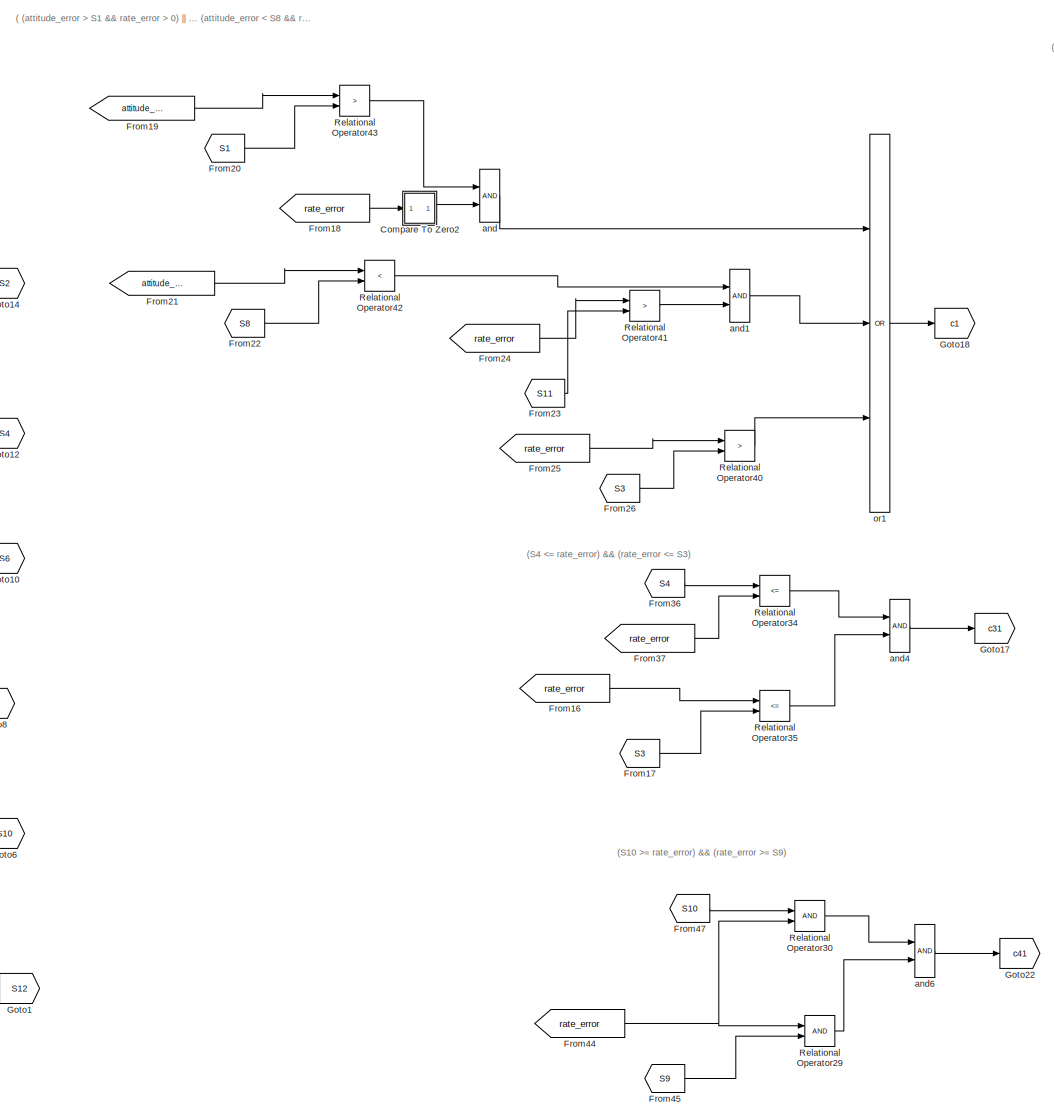
[diagram: affectation_region - part 1/11, top center region]
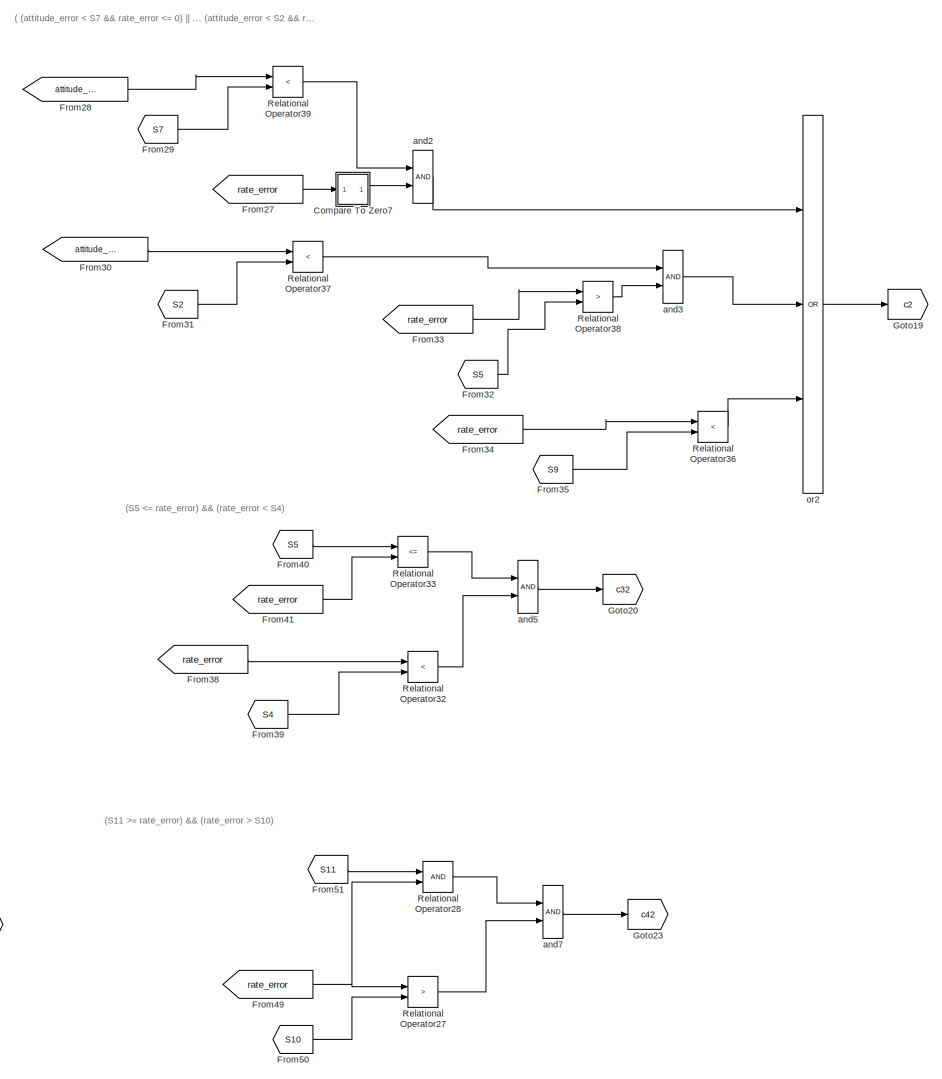
[diagram: affectation_region - part 2/11, top right region]
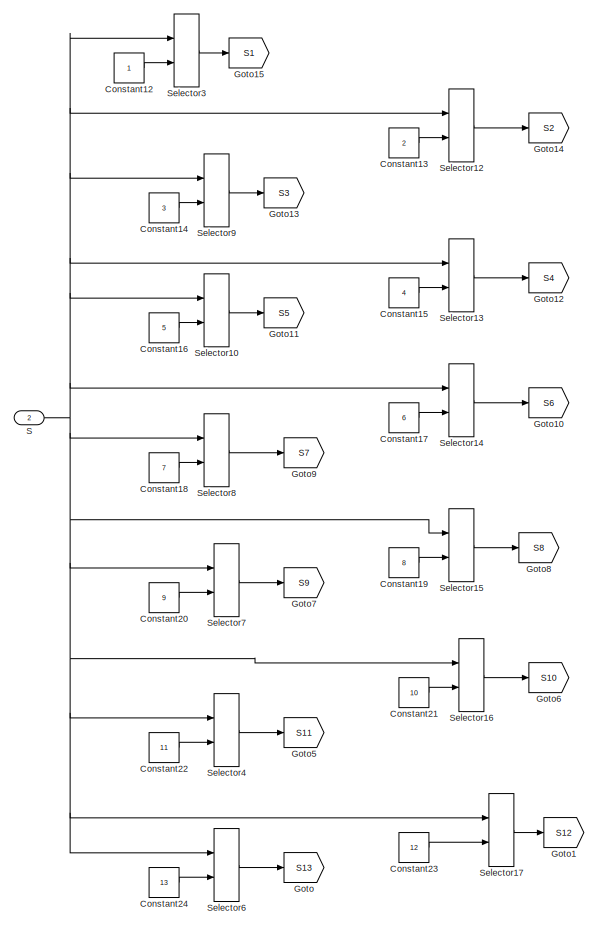
[diagram: affectation_region - part 3/11, top left region]
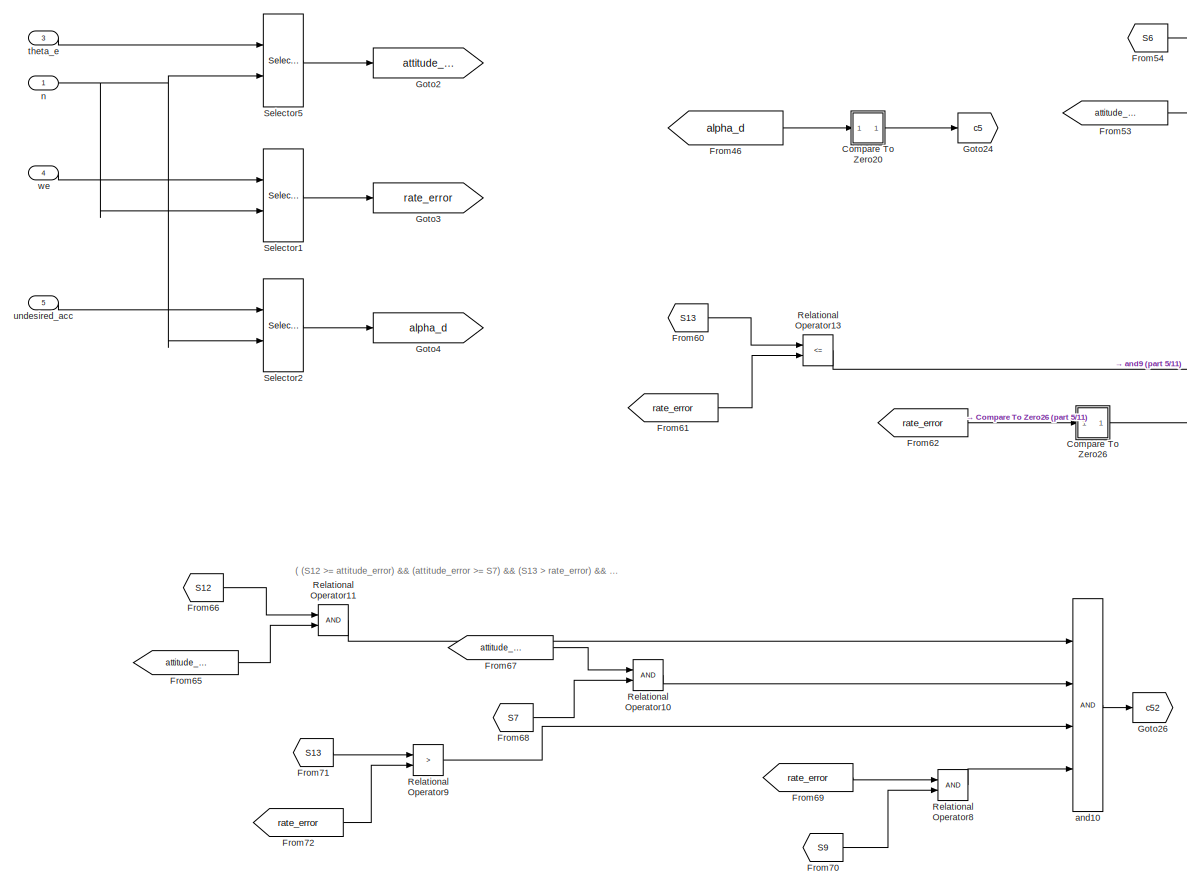
[diagram: affectation_region - part 4/11, middle left region]
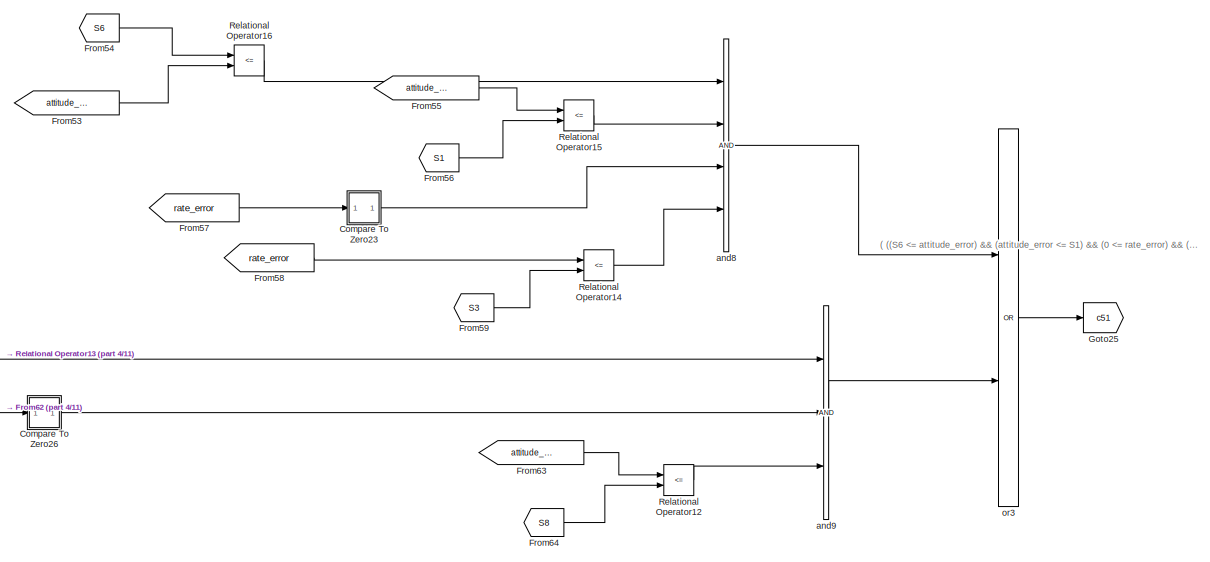
[diagram: affectation_region - part 5/11, top center region]
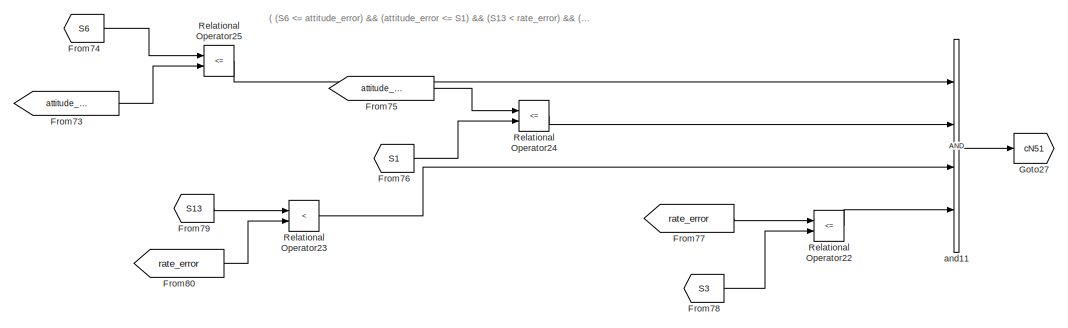
[diagram: affectation_region - part 6/11, middle right region]
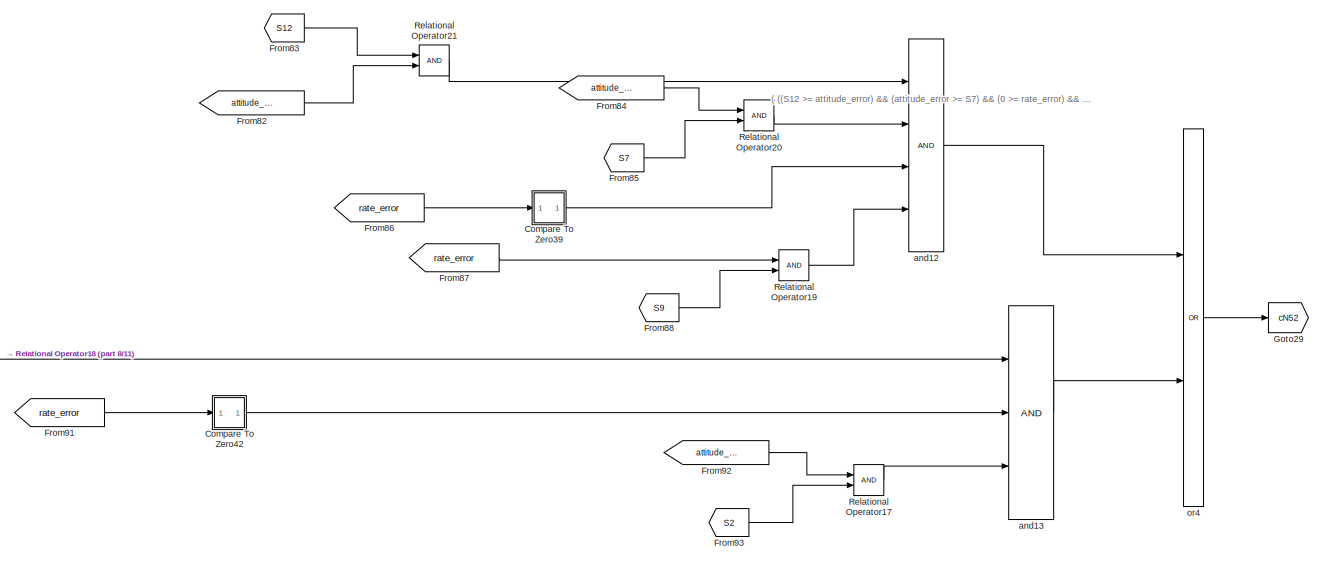
[diagram: affectation_region - part 7/11, central region]
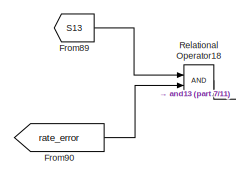
[diagram: affectation_region - part 8/11, middle left region]
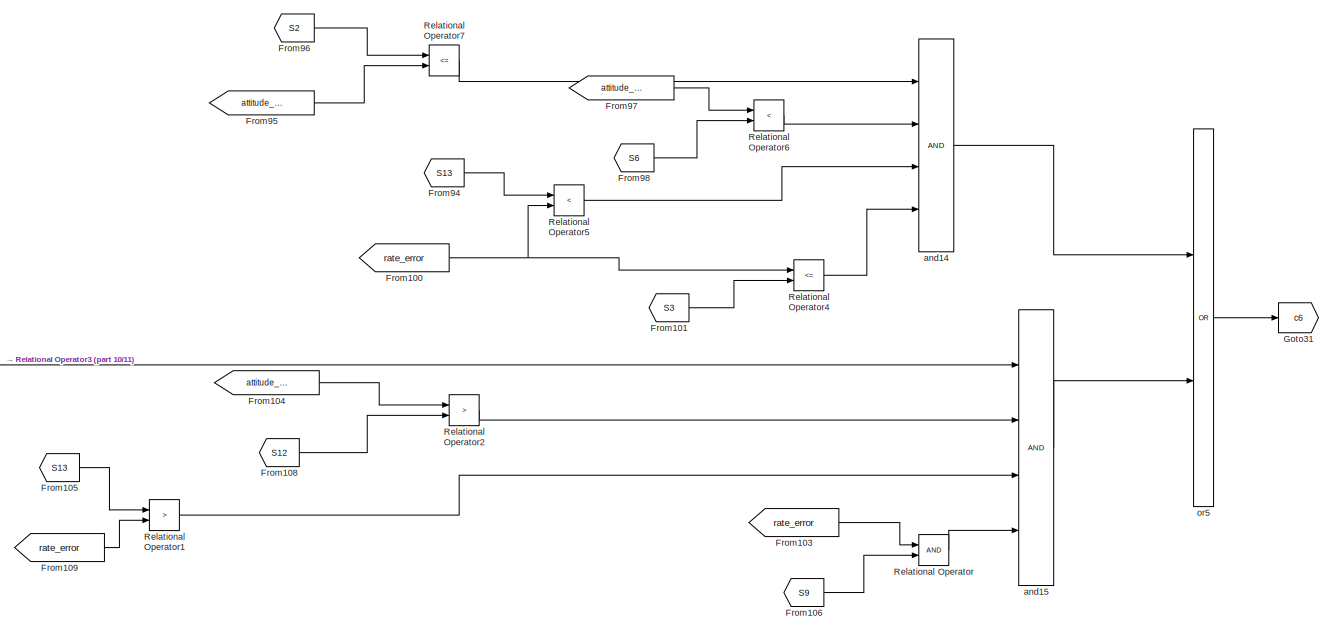
[diagram: affectation_region - part 9/11, bottom center region]
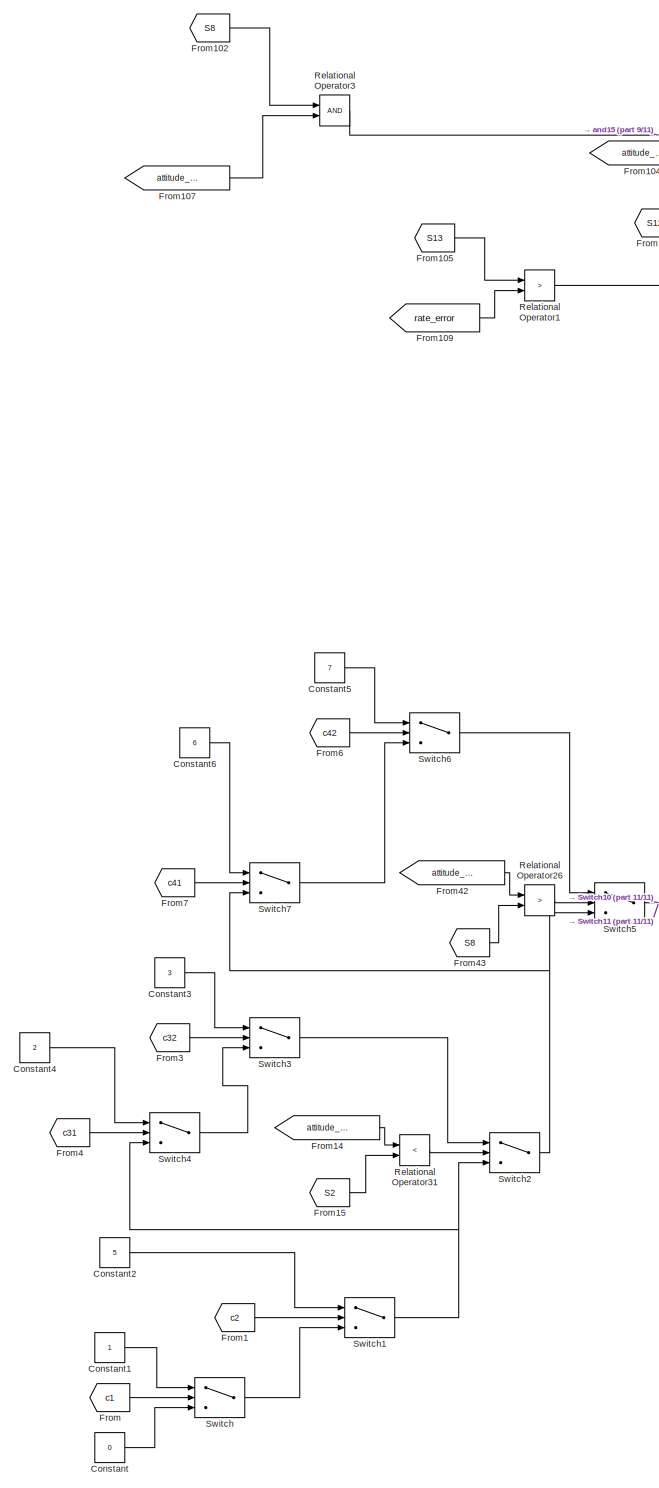
[diagram: affectation_region - part 10/11, bottom left region]
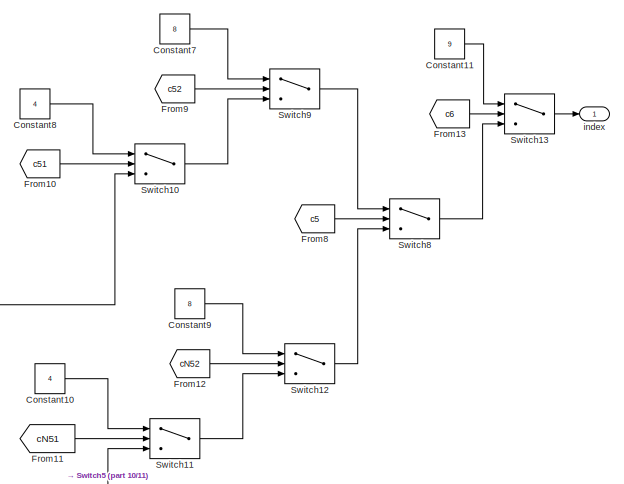
[diagram: affectation_region - part 11/11, bottom center region]
BLOCK [SubSystem] affectation_region
  Ports = [5, 1]
  RequestExecContextInheritance = off
  Variant = off
BLOCK [SubSystem] affectation_region/Compare To Zero2
  Ports = [1, 1]
  RequestExecContextInheritance = off
  Variant = off
BLOCK [RelationalOperator] affectation_region/Compare To Zero2/Compare
  Operator = >
  OutDataTypeStr = boolean
  Ports = [2, 1]
BLOCK [Constant] affectation_region/Compare To Zero2/Constant
  DisableCoverage = on
  OutDataTypeStr = Inherit: Inherit via back propagation
  PreserveConstantTs = on
  Value = 0
BLOCK [Inport] affectation_region/Compare To Zero2/u
  IconDisplay = Port number
BLOCK [Outport] affectation_region/Compare To Zero2/y
  IconDisplay = Port number
BLOCK [SubSystem] affectation_region/Compare To Zero20
  Ports = [1, 1]
  RequestExecContextInheritance = off
  Variant = off
BLOCK [RelationalOperator] affectation_region/Compare To Zero20/Compare
  OutDataTypeStr = boolean
  Ports = [2, 1]
BLOCK [Constant] affectation_region/Compare To Zero20/Constant
  DisableCoverage = on
  OutDataTypeStr = Inherit: Inherit via back propagation
  PreserveConstantTs = on
  Value = 0
BLOCK [Inport] affectation_region/Compare To Zero20/u
  IconDisplay = Port number
BLOCK [Outport] affectation_region/Compare To Zero20/y
  IconDisplay = Port number
BLOCK [SubSystem] affectation_region/Compare To Zero23
  Ports = [1, 1]
  RequestExecContextInheritance = off
  Variant = off
BLOCK [RelationalOperator] affectation_region/Compare To Zero23/Compare
  OutDataTypeStr = boolean
  Ports = [2, 1]
BLOCK [Constant] affectation_region/Compare To Zero23/Constant
  DisableCoverage = on
  OutDataTypeStr = Inherit: Inherit via back propagation
  PreserveConstantTs = on
  Value = 0
BLOCK [Inport] affectation_region/Compare To Zero23/u
  IconDisplay = Port number
BLOCK [Outport] affectation_region/Compare To Zero23/y
  IconDisplay = Port number
BLOCK [SubSystem] affectation_region/Compare To Zero26
  Ports = [1, 1]
  RequestExecContextInheritance = off
  Variant = off
BLOCK [RelationalOperator] affectation_region/Compare To Zero26/Compare
  Operator = <
  OutDataTypeStr = boolean
  Ports = [2, 1]
BLOCK [Constant] affectation_region/Compare To Zero26/Constant
  DisableCoverage = on
  OutDataTypeStr = Inherit: Inherit via back propagation
  PreserveConstantTs = on
  Value = 0
BLOCK [Inport] affectation_region/Compare To Zero26/u
  IconDisplay = Port number
BLOCK [Outport] affectation_region/Compare To Zero26/y
  IconDisplay = Port number
BLOCK [SubSystem] affectation_region/Compare To Zero39
  Ports = [1, 1]
  RequestExecContextInheritance = off
  Variant = off
BLOCK [RelationalOperator] affectation_region/Compare To Zero39/Compare
  Operator = <=
  OutDataTypeStr = boolean
  Ports = [2, 1]
BLOCK [Constant] affectation_region/Compare To Zero39/Constant
  DisableCoverage = on
  OutDataTypeStr = Inherit: Inherit via back propagation
  PreserveConstantTs = on
  Value = 0
BLOCK [Inport] affectation_region/Compare To Zero39/u
  IconDisplay = Port number
BLOCK [Outport] affectation_region/Compare To Zero39/y
  IconDisplay = Port number
BLOCK [SubSystem] affectation_region/Compare To Zero42
  Ports = [1, 1]
  RequestExecContextInheritance = off
  Variant = off
BLOCK [RelationalOperator] affectation_region/Compare To Zero42/Compare
  Operator = >
  OutDataTypeStr = boolean
  Ports = [2, 1]
BLOCK [Constant] affectation_region/Compare To Zero42/Constant
  DisableCoverage = on
  OutDataTypeStr = Inherit: Inherit via back propagation
  PreserveConstantTs = on
  Value = 0
BLOCK [Inport] affectation_region/Compare To Zero42/u
  IconDisplay = Port number
BLOCK [Outport] affectation_region/Compare To Zero42/y
  IconDisplay = Port number
BLOCK [SubSystem] affectation_region/Compare To Zero7
  Ports = [1, 1]
  RequestExecContextInheritance = off
  Variant = off
BLOCK [RelationalOperator] affectation_region/Compare To Zero7/Compare
  Operator = <=
  OutDataTypeStr = boolean
  Ports = [2, 1]
BLOCK [Constant] affectation_region/Compare To Zero7/Constant
  DisableCoverage = on
  OutDataTypeStr = Inherit: Inherit via back propagation
  PreserveConstantTs = on
  Value = 0
BLOCK [Inport] affectation_region/Compare To Zero7/u
  IconDisplay = Port number
BLOCK [Outport] affectation_region/Compare To Zero7/y
  IconDisplay = Port number
BLOCK [Constant] affectation_region/Constant
  Value = 0
BLOCK [Constant] affectation_region/Constant1
BLOCK [Constant] affectation_region/Constant10
  Value = 4
BLOCK [Constant] affectation_region/Constant11
  Value = 9
BLOCK [Constant] affectation_region/Constant12
BLOCK [Constant] affectation_region/Constant13
  Value = 2
BLOCK [Constant] affectation_region/Constant14
  Value = 3
BLOCK [Constant] affectation_region/Constant15
  Value = 4
BLOCK [Constant] affectation_region/Constant16
  Value = 5
BLOCK [Constant] affectation_region/Constant17
  Value = 6
BLOCK [Constant] affectation_region/Constant18
  Value = 7
BLOCK [Constant] affectation_region/Constant19
  Value = 8
BLOCK [Constant] affectation_region/Constant2
  Value = 5
BLOCK [Constant] affectation_region/Constant20
  Value = 9
BLOCK [Constant] affectation_region/Constant21
  Value = 10
BLOCK [Constant] affectation_region/Constant22
  Value = 11
BLOCK [Constant] affectation_region/Constant23
  Value = 12
BLOCK [Constant] affectation_region/Constant24
  Value = 13
BLOCK [Constant] affectation_region/Constant3
  Value = 3
BLOCK [Constant] affectation_region/Constant4
  Value = 2
BLOCK [Constant] affectation_region/Constant5
  Value = 7
BLOCK [Constant] affectation_region/Constant6
  Value = 6
BLOCK [Constant] affectation_region/Constant7
  Value = 8
BLOCK [Constant] affectation_region/Constant8
  Value = 4
BLOCK [Constant] affectation_region/Constant9
  Value = 8
BLOCK [From] affectation_region/From
  GotoTag = c1
BLOCK [From] affectation_region/From1
  GotoTag = c2
BLOCK [From] affectation_region/From10
  GotoTag = c51
BLOCK [From] affectation_region/From100
  GotoTag = rate_error
BLOCK [From] affectation_region/From101
  GotoTag = S3
BLOCK [From] affectation_region/From102
  GotoTag = S8
BLOCK [From] affectation_region/From103
  GotoTag = rate_error
BLOCK [From] affectation_region/From104
  GotoTag = attitude_error
BLOCK [From] affectation_region/From105
  GotoTag = S13
BLOCK [From] affectation_region/From106
  GotoTag = S9
BLOCK [From] affectation_region/From107
  GotoTag = attitude_error
BLOCK [From] affectation_region/From108
  GotoTag = S12
BLOCK [From] affectation_region/From109
  GotoTag = rate_error
BLOCK [From] affectation_region/From11
  GotoTag = cN51
BLOCK [From] affectation_region/From12
  GotoTag = cN52
BLOCK [From] affectation_region/From13
  GotoTag = c6
BLOCK [From] affectation_region/From14
  GotoTag = attitude_error
BLOCK [From] affectation_region/From15
  GotoTag = S2
BLOCK [From] affectation_region/From16
  GotoTag = rate_error
BLOCK [From] affectation_region/From17
  GotoTag = S3
BLOCK [From] affectation_region/From18
  GotoTag = rate_error
BLOCK [From] affectation_region/From19
  GotoTag = attitude_error
BLOCK [From] affectation_region/From20
  GotoTag = S1
BLOCK [From] affectation_region/From21
  GotoTag = attitude_error
BLOCK [From] affectation_region/From22
  GotoTag = S8
BLOCK [From] affectation_region/From23
  GotoTag = S11
BLOCK [From] affectation_region/From24
  GotoTag = rate_error
BLOCK [From] affectation_region/From25
  GotoTag = rate_error
BLOCK [From] affectation_region/From26
  GotoTag = S3
BLOCK [From] affectation_region/From27
  GotoTag = rate_error
BLOCK [From] affectation_region/From28
  GotoTag = attitude_error
BLOCK [From] affectation_region/From29
  GotoTag = S7
BLOCK [From] affectation_region/From3
  GotoTag = c32
BLOCK [From] affectation_region/From30
  GotoTag = attitude_error
BLOCK [From] affectation_region/From31
  GotoTag = S2
BLOCK [From] affectation_region/From32
  GotoTag = S5
BLOCK [From] affectation_region/From33
  GotoTag = rate_error
BLOCK [From] affectation_region/From34
  GotoTag = rate_error
BLOCK [From] affectation_region/From35
  GotoTag = S9
BLOCK [From] affectation_region/From36
  GotoTag = S4
BLOCK [From] affectation_region/From37
  GotoTag = rate_error
BLOCK [From] affectation_region/From38
  GotoTag = rate_error
BLOCK [From] affectation_region/From39
  GotoTag = S4
BLOCK [From] affectation_region/From4
  GotoTag = c31
BLOCK [From] affectation_region/From40
  GotoTag = S5
BLOCK [From] affectation_region/From41
  GotoTag = rate_error
BLOCK [From] affectation_region/From42
  GotoTag = attitude_error
BLOCK [From] affectation_region/From43
  GotoTag = S8
BLOCK [From] affectation_region/From44
  GotoTag = rate_error
BLOCK [From] affectation_region/From45
  GotoTag = S9
BLOCK [From] affectation_region/From46
  GotoTag = alpha_d
BLOCK [From] affectation_region/From47
  GotoTag = S10
BLOCK [From] affectation_region/From49
  GotoTag = rate_error
BLOCK [From] affectation_region/From50
  GotoTag = S10
BLOCK [From] affectation_region/From51
  GotoTag = S11
BLOCK [From] affectation_region/From53
  GotoTag = attitude_error
BLOCK [From] affectation_region/From54
  GotoTag = S6
BLOCK [From] affectation_region/From55
  GotoTag = attitude_error
BLOCK [From] affectation_region/From56
  GotoTag = S1
BLOCK [From] affectation_region/From57
  GotoTag = rate_error
BLOCK [From] affectation_region/From58
  GotoTag = rate_error
BLOCK [From] affectation_region/From59
  GotoTag = S3
BLOCK [From] affectation_region/From6
  GotoTag = c42
BLOCK [From] affectation_region/From60
  GotoTag = S13
BLOCK [From] affectation_region/From61
  GotoTag = rate_error
BLOCK [From] affectation_region/From62
  GotoTag = rate_error
BLOCK [From] affectation_region/From63
  GotoTag = attitude_error
BLOCK [From] affectation_region/From64
  GotoTag = S8
BLOCK [From] affectation_region/From65
  GotoTag = attitude_error
BLOCK [From] affectation_region/From66
  GotoTag = S12
BLOCK [From] affectation_region/From67
  GotoTag = attitude_error
BLOCK [From] affectation_region/From68
  GotoTag = S7
BLOCK [From] affectation_region/From69
  GotoTag = rate_error
BLOCK [From] affectation_region/From7
  GotoTag = c41
BLOCK [From] affectation_region/From70
  GotoTag = S9
BLOCK [From] affectation_region/From71
  GotoTag = S13
BLOCK [From] affectation_region/From72
  GotoTag = rate_error
BLOCK [From] affectation_region/From73
  GotoTag = attitude_error
BLOCK [From] affectation_region/From74
  GotoTag = S6
BLOCK [From] affectation_region/From75
  GotoTag = attitude_error
BLOCK [From] affectation_region/From76
  GotoTag = S1
BLOCK [From] affectation_region/From77
  GotoTag = rate_error
BLOCK [From] affectation_region/From78
  GotoTag = S3
BLOCK [From] affectation_region/From79
  GotoTag = S13
BLOCK [From] affectation_region/From8
  GotoTag = c5
BLOCK [From] affectation_region/From80
  GotoTag = rate_error
BLOCK [From] affectation_region/From82
  GotoTag = attitude_error
BLOCK [From] affectation_region/From83
  GotoTag = S12
BLOCK [From] affectation_region/From84
  GotoTag = attitude_error
BLOCK [From] affectation_region/From85
  GotoTag = S7
BLOCK [From] affectation_region/From86
  GotoTag = rate_error
BLOCK [From] affectation_region/From87
  GotoTag = rate_error
BLOCK [From] affectation_region/From88
  GotoTag = S9
BLOCK [From] affectation_region/From89
  GotoTag = S13
BLOCK [From] affectation_region/From9
  GotoTag = c52
BLOCK [From] affectation_region/From90
  GotoTag = rate_error
BLOCK [From] affectation_region/From91
  GotoTag = rate_error
BLOCK [From] affectation_region/From92
  GotoTag = attitude_error
BLOCK [From] affectation_region/From93
  GotoTag = S2
BLOCK [From] affectation_region/From94
  GotoTag = S13
BLOCK [From] affectation_region/From95
  GotoTag = attitude_error
BLOCK [From] affectation_region/From96
  GotoTag = S2
BLOCK [From] affectation_region/From97
  GotoTag = attitude_error
BLOCK [From] affectation_region/From98
  GotoTag = S6
BLOCK [Goto] affectation_region/Goto
  GotoTag = S13
BLOCK [Goto] affectation_region/Goto1
  GotoTag = S12
BLOCK [Goto] affectation_region/Goto10
  GotoTag = S6
BLOCK [Goto] affectation_region/Goto11
  GotoTag = S5
BLOCK [Goto] affectation_region/Goto12
  GotoTag = S4
BLOCK [Goto] affectation_region/Goto13
  GotoTag = S3
BLOCK [Goto] affectation_region/Goto14
  GotoTag = S2
BLOCK [Goto] affectation_region/Goto15
  GotoTag = S1
BLOCK [Goto] affectation_region/Goto17
  GotoTag = c31
BLOCK [Goto] affectation_region/Goto18
  GotoTag = c1
BLOCK [Goto] affectation_region/Goto19
  GotoTag = c2
BLOCK [Goto] affectation_region/Goto2
  GotoTag = attitude_error
BLOCK [Goto] affectation_region/Goto20
  GotoTag = c32
BLOCK [Goto] affectation_region/Goto22
  GotoTag = c41
BLOCK [Goto] affectation_region/Goto23
  GotoTag = c42
BLOCK [Goto] affectation_region/Goto24
  GotoTag = c5
BLOCK [Goto] affectation_region/Goto25
  GotoTag = c51
BLOCK [Goto] affectation_region/Goto26
  GotoTag = c52
BLOCK [Goto] affectation_region/Goto27
  GotoTag = cN51
BLOCK [Goto] affectation_region/Goto29
  GotoTag = cN52
BLOCK [Goto] affectation_region/Goto3
  GotoTag = rate_error
BLOCK [Goto] affectation_region/Goto31
  GotoTag = c6
BLOCK [Goto] affectation_region/Goto4
  GotoTag = alpha_d
BLOCK [Goto] affectation_region/Goto5
  GotoTag = S11
BLOCK [Goto] affectation_region/Goto6
  GotoTag = S10
BLOCK [Goto] affectation_region/Goto7
  GotoTag = S9
BLOCK [Goto] affectation_region/Goto8
  GotoTag = S8
BLOCK [Goto] affectation_region/Goto9
  GotoTag = S7
BLOCK [RelationalOperator] affectation_region/Relational Operator
  InputSameDT = off
  OutDataTypeStr = boolean
  Ports = [2, 1]
  RndMeth = Simplest
BLOCK [RelationalOperator] affectation_region/Relational Operator1
  InputSameDT = off
  Operator = >
  OutDataTypeStr = boolean
  Ports = [2, 1]
  RndMeth = Simplest
BLOCK [RelationalOperator] affectation_region/Relational Operator10
  InputSameDT = off
  OutDataTypeStr = boolean
  Ports = [2, 1]
  RndMeth = Simplest
BLOCK [RelationalOperator] affectation_region/Relational Operator11
  InputSameDT = off
  OutDataTypeStr = boolean
  Ports = [2, 1]
  RndMeth = Simplest
BLOCK [RelationalOperator] affectation_region/Relational Operator12
  InputSameDT = off
  Operator = <=
  OutDataTypeStr = boolean
  Ports = [2, 1]
  RndMeth = Simplest
BLOCK [RelationalOperator] affectation_region/Relational Operator13
  InputSameDT = off
  Operator = <=
  OutDataTypeStr = boolean
  Ports = [2, 1]
  RndMeth = Simplest
BLOCK [RelationalOperator] affectation_region/Relational Operator14
  InputSameDT = off
  Operator = <=
  OutDataTypeStr = boolean
  Ports = [2, 1]
  RndMeth = Simplest
BLOCK [RelationalOperator] affectation_region/Relational Operator15
  InputSameDT = off
  Operator = <=
  OutDataTypeStr = boolean
  Ports = [2, 1]
  RndMeth = Simplest
BLOCK [RelationalOperator] affectation_region/Relational Operator16
  InputSameDT = off
  Operator = <=
  OutDataTypeStr = boolean
  Ports = [2, 1]
  RndMeth = Simplest
BLOCK [RelationalOperator] affectation_region/Relational Operator17
  InputSameDT = off
  OutDataTypeStr = boolean
  Ports = [2, 1]
  RndMeth = Simplest
BLOCK [RelationalOperator] affectation_region/Relational Operator18
  InputSameDT = off
  OutDataTypeStr = boolean
  Ports = [2, 1]
  RndMeth = Simplest
BLOCK [RelationalOperator] affectation_region/Relational Operator19
  InputSameDT = off
  OutDataTypeStr = boolean
  Ports = [2, 1]
  RndMeth = Simplest
BLOCK [RelationalOperator] affectation_region/Relational Operator2
  InputSameDT = off
  Operator = >
  OutDataTypeStr = boolean
  Ports = [2, 1]
  RndMeth = Simplest
BLOCK [RelationalOperator] affectation_region/Relational Operator20
  InputSameDT = off
  OutDataTypeStr = boolean
  Ports = [2, 1]
  RndMeth = Simplest
BLOCK [RelationalOperator] affectation_region/Relational Operator21
  InputSameDT = off
  OutDataTypeStr = boolean
  Ports = [2, 1]
  RndMeth = Simplest
BLOCK [RelationalOperator] affectation_region/Relational Operator22
  InputSameDT = off
  Operator = <=
  OutDataTypeStr = boolean
  Ports = [2, 1]
  RndMeth = Simplest
BLOCK [RelationalOperator] affectation_region/Relational Operator23
  InputSameDT = off
  Operator = <
  OutDataTypeStr = boolean
  Ports = [2, 1]
  RndMeth = Simplest
BLOCK [RelationalOperator] affectation_region/Relational Operator24
  InputSameDT = off
  Operator = <=
  OutDataTypeStr = boolean
  Ports = [2, 1]
  RndMeth = Simplest
BLOCK [RelationalOperator] affectation_region/Relational Operator25
  InputSameDT = off
  Operator = <=
  OutDataTypeStr = boolean
  Ports = [2, 1]
  RndMeth = Simplest
BLOCK [RelationalOperator] affectation_region/Relational Operator26
  InputSameDT = off
  Operator = >
  OutDataTypeStr = boolean
  Ports = [2, 1]
  RndMeth = Simplest
BLOCK [RelationalOperator] affectation_region/Relational Operator27
  InputSameDT = off
  Operator = >
  OutDataTypeStr = boolean
  Ports = [2, 1]
  RndMeth = Simplest
BLOCK [RelationalOperator] affectation_region/Relational Operator28
  InputSameDT = off
  OutDataTypeStr = boolean
  Ports = [2, 1]
  RndMeth = Simplest
BLOCK [RelationalOperator] affectation_region/Relational Operator29
  InputSameDT = off
  OutDataTypeStr = boolean
  Ports = [2, 1]
  RndMeth = Simplest
BLOCK [RelationalOperator] affectation_region/Relational Operator3
  InputSameDT = off
  OutDataTypeStr = boolean
  Ports = [2, 1]
  RndMeth = Simplest
BLOCK [RelationalOperator] affectation_region/Relational Operator30
  InputSameDT = off
  OutDataTypeStr = boolean
  Ports = [2, 1]
  RndMeth = Simplest
BLOCK [RelationalOperator] affectation_region/Relational Operator31
  InputSameDT = off
  Operator = <
  OutDataTypeStr = boolean
  Ports = [2, 1]
  RndMeth = Simplest
BLOCK [RelationalOperator] affectation_region/Relational Operator32
  InputSameDT = off
  Operator = <
  OutDataTypeStr = boolean
  Ports = [2, 1]
  RndMeth = Simplest
BLOCK [RelationalOperator] affectation_region/Relational Operator33
  InputSameDT = off
  Operator = <=
  OutDataTypeStr = boolean
  Ports = [2, 1]
  RndMeth = Simplest
BLOCK [RelationalOperator] affectation_region/Relational Operator34
  InputSameDT = off
  Operator = <=
  OutDataTypeStr = boolean
  Ports = [2, 1]
  RndMeth = Simplest
BLOCK [RelationalOperator] affectation_region/Relational Operator35
  InputSameDT = off
  Operator = <=
  OutDataTypeStr = boolean
  Ports = [2, 1]
  RndMeth = Simplest
BLOCK [RelationalOperator] affectation_region/Relational Operator36
  InputSameDT = off
  Operator = <
  OutDataTypeStr = boolean
  Ports = [2, 1]
  RndMeth = Simplest
BLOCK [RelationalOperator] affectation_region/Relational Operator37
  InputSameDT = off
  Operator = <
  OutDataTypeStr = boolean
  Ports = [2, 1]
  RndMeth = Simplest
BLOCK [RelationalOperator] affectation_region/Relational Operator38
  InputSameDT = off
  Operator = >
  OutDataTypeStr = boolean
  Ports = [2, 1]
  RndMeth = Simplest
BLOCK [RelationalOperator] affectation_region/Relational Operator39
  InputSameDT = off
  Operator = <
  OutDataTypeStr = boolean
  Ports = [2, 1]
  RndMeth = Simplest
BLOCK [RelationalOperator] affectation_region/Relational Operator4
  InputSameDT = off
  Operator = <=
  OutDataTypeStr = boolean
  Ports = [2, 1]
  RndMeth = Simplest
BLOCK [RelationalOperator] affectation_region/Relational Operator40
  InputSameDT = off
  Operator = >
  OutDataTypeStr = boolean
  Ports = [2, 1]
  RndMeth = Simplest
BLOCK [RelationalOperator] affectation_region/Relational Operator41
  InputSameDT = off
  Operator = >
  OutDataTypeStr = boolean
  Ports = [2, 1]
  RndMeth = Simplest
BLOCK [RelationalOperator] affectation_region/Relational Operator42
  InputSameDT = off
  Operator = <
  OutDataTypeStr = boolean
  Ports = [2, 1]
  RndMeth = Simplest
BLOCK [RelationalOperator] affectation_region/Relational Operator43
  InputSameDT = off
  Operator = >
  OutDataTypeStr = boolean
  Ports = [2, 1]
  RndMeth = Simplest
BLOCK [RelationalOperator] affectation_region/Relational Operator5
  InputSameDT = off
  Operator = <
  OutDataTypeStr = boolean
  Ports = [2, 1]
  RndMeth = Simplest
BLOCK [RelationalOperator] affectation_region/Relational Operator6
  InputSameDT = off
  Operator = <
  OutDataTypeStr = boolean
  Ports = [2, 1]
  RndMeth = Simplest
BLOCK [RelationalOperator] affectation_region/Relational Operator7
  InputSameDT = off
  Operator = <=
  OutDataTypeStr = boolean
  Ports = [2, 1]
  RndMeth = Simplest
BLOCK [RelationalOperator] affectation_region/Relational Operator8
  InputSameDT = off
  OutDataTypeStr = boolean
  Ports = [2, 1]
  RndMeth = Simplest
BLOCK [RelationalOperator] affectation_region/Relational Operator9
  InputSameDT = off
  Operator = >
  OutDataTypeStr = boolean
  Ports = [2, 1]
  RndMeth = Simplest
BLOCK [Inport] affectation_region/S
  IconDisplay = Port number
  Port = 2
BLOCK [Selector] affectation_region/Selector1
  IndexOptions = Index vector (port)
  Indices = [1 3]
  InputPortWidth = 3
  OutputSizes = 1
  Ports = [2, 1]
BLOCK [Selector] affectation_region/Selector10
  IndexOptions = Starting index (port)
  Indices = [1 3]
  InputPortWidth = 13
  OutputSizes = 1
  Ports = [2, 1]
BLOCK [Selector] affectation_region/Selector12
  IndexOptions = Starting index (port)
  Indices = [1 3]
  InputPortWidth = 13
  OutputSizes = 1
  Ports = [2, 1]
BLOCK [Selector] affectation_region/Selector13
  IndexOptions = Starting index (port)
  Indices = [1 3]
  InputPortWidth = 13
  OutputSizes = 1
  Ports = [2, 1]
BLOCK [Selector] affectation_region/Selector14
  IndexOptions = Starting index (port)
  Indices = [1 3]
  InputPortWidth = 13
  OutputSizes = 1
  Ports = [2, 1]
BLOCK [Selector] affectation_region/Selector15
  IndexOptions = Starting index (port)
  Indices = [1 3]
  InputPortWidth = 13
  OutputSizes = 1
  Ports = [2, 1]
BLOCK [Selector] affectation_region/Selector16
  IndexOptions = Starting index (port)
  Indices = [1 3]
  InputPortWidth = 13
  OutputSizes = 1
  Ports = [2, 1]
BLOCK [Selector] affectation_region/Selector17
  IndexOptions = Starting index (port)
  Indices = [1 3]
  InputPortWidth = 13
  OutputSizes = 1
  Ports = [2, 1]
BLOCK [Selector] affectation_region/Selector2
  IndexOptions = Index vector (port)
  Indices = [1 3]
  InputPortWidth = 3
  OutputSizes = 1
  Ports = [2, 1]
BLOCK [Selector] affectation_region/Selector3
  IndexOptions = Starting index (port)
  Indices = [1 3]
  InputPortWidth = 13
  OutputSizes = 1
  Ports = [2, 1]
BLOCK [Selector] affectation_region/Selector4
  IndexOptions = Starting index (port)
  Indices = [1 3]
  InputPortWidth = 13
  OutputSizes = 1
  Ports = [2, 1]
BLOCK [Selector] affectation_region/Selector5
  IndexOptions = Index vector (port)
  Indices = [1 3]
  InputPortWidth = 3
  OutputSizes = 1
  Ports = [2, 1]
BLOCK [Selector] affectation_region/Selector6
  IndexOptions = Starting index (port)
  Indices = [1 3]
  InputPortWidth = 13
  OutputSizes = 1
  Ports = [2, 1]
BLOCK [Selector] affectation_region/Selector7
  IndexOptions = Starting index (port)
  Indices = [1 3]
  InputPortWidth = 13
  OutputSizes = 1
  Ports = [2, 1]
BLOCK [Selector] affectation_region/Selector8
  IndexOptions = Starting index (port)
  Indices = [1 3]
  InputPortWidth = 13
  OutputSizes = 1
  Ports = [2, 1]
BLOCK [Selector] affectation_region/Selector9
  IndexOptions = Starting index (port)
  Indices = [1 3]
  InputPortWidth = 13
  OutputSizes = 1
  Ports = [2, 1]
BLOCK [Switch] affectation_region/Switch
  Criteria = u2 > Threshold
  InputSameDT = off
  SaturateOnIntegerOverflow = off
BLOCK [Switch] affectation_region/Switch1
  Criteria = u2 > Threshold
  InputSameDT = off
  SaturateOnIntegerOverflow = off
BLOCK [Switch] affectation_region/Switch10
  Criteria = u2 > Threshold
  InputSameDT = off
  SaturateOnIntegerOverflow = off
BLOCK [Switch] affectation_region/Switch11
  Criteria = u2 > Threshold
  InputSameDT = off
  SaturateOnIntegerOverflow = off
BLOCK [Switch] affectation_region/Switch12
  Criteria = u2 > Threshold
  InputSameDT = off
  SaturateOnIntegerOverflow = off
BLOCK [Switch] affectation_region/Switch13
  Criteria = u2 > Threshold
  InputSameDT = off
  SaturateOnIntegerOverflow = off
BLOCK [Switch] affectation_region/Switch2
  Criteria = u2 > Threshold
  InputSameDT = off
  SaturateOnIntegerOverflow = off
BLOCK [Switch] affectation_region/Switch3
  Criteria = u2 > Threshold
  InputSameDT = off
  SaturateOnIntegerOverflow = off
BLOCK [Switch] affectation_region/Switch4
  Criteria = u2 > Threshold
  InputSameDT = off
  SaturateOnIntegerOverflow = off
BLOCK [Switch] affectation_region/Switch5
  Criteria = u2 > Threshold
  InputSameDT = off
  SaturateOnIntegerOverflow = off
BLOCK [Switch] affectation_region/Switch6
  Criteria = u2 > Threshold
  InputSameDT = off
  SaturateOnIntegerOverflow = off
BLOCK [Switch] affectation_region/Switch7
  Criteria = u2 > Threshold
  InputSameDT = off
  SaturateOnIntegerOverflow = off
BLOCK [Switch] affectation_region/Switch8
  Criteria = u2 > Threshold
  InputSameDT = off
  SaturateOnIntegerOverflow = off
BLOCK [Switch] affectation_region/Switch9
  Criteria = u2 > Threshold
  InputSameDT = off
  SaturateOnIntegerOverflow = off
BLOCK [Logic] affectation_region/and
  AllPortsSameDT = off
  OutDataTypeStr = boolean
  Ports = [2, 1]
BLOCK [Logic] affectation_region/and1
  AllPortsSameDT = off
  OutDataTypeStr = boolean
  Ports = [2, 1]
BLOCK [Logic] affectation_region/and10
  AllPortsSameDT = off
  Inputs = 4
  OutDataTypeStr = boolean
  Ports = [4, 1]
BLOCK [Logic] affectation_region/and11
  AllPortsSameDT = off
  Inputs = 4
  OutDataTypeStr = boolean
  Ports = [4, 1]
BLOCK [Logic] affectation_region/and12
  AllPortsSameDT = off
  Inputs = 4
  OutDataTypeStr = boolean
  Ports = [4, 1]
BLOCK [Logic] affectation_region/and13
  AllPortsSameDT = off
  Inputs = 3
  OutDataTypeStr = boolean
  Ports = [3, 1]
BLOCK [Logic] affectation_region/and14
  AllPortsSameDT = off
  Inputs = 4
  OutDataTypeStr = boolean
  Ports = [4, 1]
BLOCK [Logic] affectation_region/and15
  AllPortsSameDT = off
  Inputs = 4
  OutDataTypeStr = boolean
  Ports = [4, 1]
BLOCK [Logic] affectation_region/and2
  AllPortsSameDT = off
  OutDataTypeStr = boolean
  Ports = [2, 1]
BLOCK [Logic] affectation_region/and3
  AllPortsSameDT = off
  OutDataTypeStr = boolean
  Ports = [2, 1]
BLOCK [Logic] affectation_region/and4
  AllPortsSameDT = off
  OutDataTypeStr = boolean
  Ports = [2, 1]
BLOCK [Logic] affectation_region/and5
  AllPortsSameDT = off
  OutDataTypeStr = boolean
  Ports = [2, 1]
BLOCK [Logic] affectation_region/and6
  AllPortsSameDT = off
  OutDataTypeStr = boolean
  Ports = [2, 1]
BLOCK [Logic] affectation_region/and7
  AllPortsSameDT = off
  OutDataTypeStr = boolean
  Ports = [2, 1]
BLOCK [Logic] affectation_region/and8
  AllPortsSameDT = off
  Inputs = 4
  OutDataTypeStr = boolean
  Ports = [4, 1]
BLOCK [Logic] affectation_region/and9
  AllPortsSameDT = off
  Inputs = 3
  OutDataTypeStr = boolean
  Ports = [3, 1]
BLOCK [Outport] affectation_region/index
  IconDisplay = Port number
BLOCK [Inport] affectation_region/n
  IconDisplay = Port number
BLOCK [Logic] affectation_region/or1
  AllPortsSameDT = off
  Inputs = 3
  Operator = OR
  OutDataTypeStr = boolean
  Ports = [3, 1]
BLOCK [Logic] affectation_region/or2
  AllPortsSameDT = off
  Inputs = 3
  Operator = OR
  OutDataTypeStr = boolean
  Ports = [3, 1]
BLOCK [Logic] affectation_region/or3
  AllPortsSameDT = off
  Operator = OR
  OutDataTypeStr = boolean
  Ports = [2, 1]
BLOCK [Logic] affectation_region/or4
  AllPortsSameDT = off
  Operator = OR
  OutDataTypeStr = boolean
  Ports = [2, 1]
BLOCK [Logic] affectation_region/or5
  AllPortsSameDT = off
  Operator = OR
  OutDataTypeStr = boolean
  Ports = [2, 1]
BLOCK [Inport] affectation_region/theta_e
  IconDisplay = Port number
  Port = 3
BLOCK [Inport] affectation_region/undesired_acc
  IconDisplay = Port number
  Port = 5
BLOCK [Inport] affectation_region/we
  IconDisplay = Port number
  Port = 4
BLOCK [SubSystem] fcn2
  Ports = [1, 1]
  RequestExecContextInheritance = off
  Variant = off
BLOCK [Constant] fcn2/Constant
  Value = [0;0;0]
BLOCK [Demux] fcn2/Demux
  DisplayOption = bar
  Ports = [1, 4]
BLOCK [From] fcn2/From
  GotoTag = theta
BLOCK [From] fcn2/From1
  GotoTag = u2
BLOCK [From] fcn2/From2
  GotoTag = u3
BLOCK [From] fcn2/From3
  GotoTag = u4
BLOCK [Gain] fcn2/Gain
  Gain = -1
  OutDataTypeStr = Inherit: Inherit via internal rule
  ParamDataTypeStr = Inherit: Inherit via internal rule
  SaturateOnIntegerOverflow = off
BLOCK [Goto] fcn2/Goto
  GotoTag = theta
BLOCK [Goto] fcn2/Goto2
  GotoTag = u2
BLOCK [Goto] fcn2/Goto3
  GotoTag = u3
BLOCK [Goto] fcn2/Goto4
  GotoTag = u4
BLOCK [Mux] fcn2/Mux
  DisplayOption = bar
  Inputs = 3
  Ports = [3, 1]
BLOCK [Outport] fcn2/Out1
  IconDisplay = Port number
BLOCK [Product] fcn2/Product
  InputSameDT = off
  Inputs = **/
  OutDataTypeStr = Inherit: Inherit via internal rule
  Ports = [3, 1]
  RndMeth = Floor
  SaturateOnIntegerOverflow = off
BLOCK [Product] fcn2/Product1
  InputSameDT = off
  Inputs = **/
  OutDataTypeStr = Inherit: Inherit via internal rule
  Ports = [3, 1]
  RndMeth = Floor
  SaturateOnIntegerOverflow = off
BLOCK [Product] fcn2/Product2
  InputSameDT = off
  Inputs = **/
  OutDataTypeStr = Inherit: Inherit via internal rule
  Ports = [3, 1]
  RndMeth = Floor
  SaturateOnIntegerOverflow = off
BLOCK [Switch] fcn2/Switch
  Criteria = u2 ~= 0
  InputSameDT = off
  SaturateOnIntegerOverflow = off
BLOCK [Terminator] fcn2/Terminator
BLOCK [Fcn] fcn2/a
  Expr = sqrt(u(2)^2 + u(3)^2 + u(4)^2)
BLOCK [Fcn] fcn2/theta
  Expr = 2 * asin(sqrt(u(2)^2 + u(3)^2 + u(4)^2))
BLOCK [Inport] fcn2/u
  IconDisplay = Port number
BLOCK [SubSystem] getAngle
  Ports = [1, 1]
  RequestExecContextInheritance = off
  Variant = off
BLOCK [Outport] getAngle/Out1
  IconDisplay = Port number
BLOCK [Fcn] getAngle/theta
  Expr = 2*asin(sqrt( u(2)^2 + u(3)^2 + u(4)^2 ) )
BLOCK [Inport] getAngle/u
  IconDisplay = Port number
BLOCK [SubSystem] getAxis
  Ports = [1, 1]
  RequestExecContextInheritance = off
  Variant = off
BLOCK [Constant] getAxis/Constant
  Value = [1;0;0]
BLOCK [Demux] getAxis/Demux
  DisplayOption = bar
  Ports = [1, 4]
BLOCK [Gain] getAxis/Gain1
  Gain = -1
  OutDataTypeStr = Inherit: Inherit via internal rule
  ParamDataTypeStr = Inherit: Inherit via internal rule
  SaturateOnIntegerOverflow = off
BLOCK [Mux] getAxis/Mux
  DisplayOption = bar
  Inputs = 3
  Ports = [3, 1]
BLOCK [Outport] getAxis/Out1
  IconDisplay = Port number
BLOCK [Product] getAxis/Product1
  InputSameDT = off
  Inputs = */
  OutDataTypeStr = Inherit: Inherit via internal rule
  Ports = [2, 1]
  RndMeth = Floor
  SaturateOnIntegerOverflow = off
BLOCK [Product] getAxis/Product2
  InputSameDT = off
  Inputs = */
  OutDataTypeStr = Inherit: Inherit via internal rule
  Ports = [2, 1]
  RndMeth = Floor
  SaturateOnIntegerOverflow = off
BLOCK [Product] getAxis/Product3
  InputSameDT = off
  Inputs = */
  OutDataTypeStr = Inherit: Inherit via internal rule
  Ports = [2, 1]
  RndMeth = Floor
  SaturateOnIntegerOverflow = off
BLOCK [Switch] getAxis/Switch
  Criteria = u2 > Threshold
  InputSameDT = off
  SaturateOnIntegerOverflow = off
BLOCK [Terminator] getAxis/Terminator
BLOCK [Fcn] getAxis/a
  Expr = sqrt(u(2)^2 + u(3)^2 + u(4)^2)
BLOCK [Inport] getAxis/u
  IconDisplay = Port number
BLOCK [SubSystem] get_delta_omega
  Ports = [1, 1]
  RequestExecContextInheritance = off
  Variant = off
BLOCK [Constant] get_delta_omega/Constant
  Value = [   0       -0.03389  0       ; -0.01775  0.02513 -0.02364 ; 0.01778  0.02514  0.02363 ;      -0.03573  0.01901 -0.00293 ;    0.03607  0.01904  0.00294 ;      0.02849 -0.01281 -0.00458 ;      -0.02876 -0.01284  0.00457 ;     0.00547 -0.00037  0.03194 ;     -0.00547 -0.00036 -0.03194 ;    0.02112   0       -0.01763 ;       -0.02113   0        0.01763 ;            -0.0004152  0.0007067 -0.0006653  ;...<+184ch>
BLOCK [SubSystem] get_delta_omega/For Iterator Subsystem
  Ports = [2, 1]
  RequestExecContextInheritance = off
  TreatAsAtomicUnit = on
  Variant = off
BLOCK [SubSystem] get_delta_omega/For Iterator Subsystem/Compare To Constant
  Ports = [1, 1]
  RequestExecContextInheritance = off
  Variant = off
BLOCK [RelationalOperator] get_delta_omega/For Iterator Subsystem/Compare To Constant/Compare
  Operator = ==
  OutDataTypeStr = boolean
  Ports = [2, 1]
BLOCK [Constant] get_delta_omega/For Iterator Subsystem/Compare To Constant/Constant
  DisableCoverage = on
  OutDataTypeStr = Inherit: Inherit via back propagation
  Value = const
BLOCK [Inport] get_delta_omega/For Iterator Subsystem/Compare To Constant/u
  IconDisplay = Port number
BLOCK [Outport] get_delta_omega/For Iterator Subsystem/Compare To Constant/y
  IconDisplay = Port number
BLOCK [ForIterator] get_delta_omega/For Iterator Subsystem/For Iterator
  IterationLimit = 11
  Ports = [0, 1]
  ResetStates = reset
BLOCK [Inport] get_delta_omega/For Iterator Subsystem/JetCommand
  IconDisplay = Port number
BLOCK [Outport] get_delta_omega/For Iterator Subsystem/Out1
  IconDisplay = Port number
BLOCK [Reshape] get_delta_omega/For Iterator Subsystem/Reshape
  OutputDimensionality = Column vector (2-D)
  Ports = [1, 1]
BLOCK [Selector] get_delta_omega/For Iterator Subsystem/Selector1
  IndexOptions = Index vector (port)
  Indices = [1 3]
  InputPortWidth = 11
  OutputSizes = 1
  Ports = [2, 1]
BLOCK [Selector] get_delta_omega/For Iterator Subsystem/Selector2
  IndexOptions = Index vector (port),Select all
  Indices = [1 3],1
  InputPortWidth = 3
  NumberOfDimensions = 2
  OutputSizes = 1,1
  Ports = [2, 1]
BLOCK [Sum] get_delta_omega/For Iterator Subsystem/Sum
  IconShape = round
  InputSameDT = off
  Inputs = |++
  OutDataTypeStr = Inherit: Inherit via internal rule
  Ports = [2, 1]
  SaturateOnIntegerOverflow = off
BLOCK [Switch] get_delta_omega/For Iterator Subsystem/Switch
  Criteria = u2 ~= 0
  InputSameDT = off
  SaturateOnIntegerOverflow = off
BLOCK [UnitDelay] get_delta_omega/For Iterator Subsystem/Unit Delay
  InitialCondition = [0; 0; 0]
  InputProcessing = Elements as channels (sample based)
  SampleTime = -1
BLOCK [Inport] get_delta_omega/For Iterator Subsystem/matrix_delta_omega_jet
  IconDisplay = Port number
  Port = 2
BLOCK [Inport] get_delta_omega/JetCommand
  IconDisplay = Port number
BLOCK [Outport] get_delta_omega/delta_omega
  IconDisplay = Port number
BLOCK [SubSystem] phase_plane
  Ports = [9, 1]
  RequestExecContextInheritance = off
  Variant = off
BLOCK [Inport] phase_plane/BYPASS
  IconDisplay = Port number
  Port = 5
BLOCK [SubSystem] phase_plane/Compare To Constant
  Ports = [1, 1]
  RequestExecContextInheritance = off
  Variant = off
BLOCK [RelationalOperator] phase_plane/Compare To Constant/Compare
  Operator = ==
  OutDataTypeStr = boolean
  Ports = [2, 1]
BLOCK [Constant] phase_plane/Compare To Constant/Constant
  DisableCoverage = on
  OutDataTypeStr = Inherit: Inherit via back propagation
  Value = const
BLOCK [Inport] phase_plane/Compare To Constant/u
  IconDisplay = Port number
BLOCK [Outport] phase_plane/Compare To Constant/y
  IconDisplay = Port number
BLOCK [SubSystem] phase_plane/Compare To Constant1
  Ports = [1, 1]
  RequestExecContextInheritance = off
  Variant = off
BLOCK [RelationalOperator] phase_plane/Compare To Constant1/Compare
  Operator = ==
  OutDataTypeStr = boolean
  Ports = [2, 1]
BLOCK [Constant] phase_plane/Compare To Constant1/Constant
  DisableCoverage = on
  OutDataTypeStr = Inherit: Inherit via back propagation
  Value = const
BLOCK [Inport] phase_plane/Compare To Constant1/u
  IconDisplay = Port number
BLOCK [Outport] phase_plane/Compare To Constant1/y
  IconDisplay = Port number
BLOCK [SubSystem] phase_plane/Compare To Constant2
  Ports = [1, 1]
  RequestExecContextInheritance = off
  Variant = off
BLOCK [RelationalOperator] phase_plane/Compare To Constant2/Compare
  Operator = ==
  OutDataTypeStr = boolean
  Ports = [2, 1]
BLOCK [Constant] phase_plane/Compare To Constant2/Constant
  DisableCoverage = on
  OutDataTypeStr = Inherit: Inherit via back propagation
  Value = const
BLOCK [Inport] phase_plane/Compare To Constant2/u
  IconDisplay = Port number
BLOCK [Outport] phase_plane/Compare To Constant2/y
  IconDisplay = Port number
BLOCK [SubSystem] phase_plane/Compare To Constant3
  Ports = [1, 1]
  RequestExecContextInheritance = off
  Variant = off
BLOCK [RelationalOperator] phase_plane/Compare To Constant3/Compare
  Operator = ==
  OutDataTypeStr = boolean
  Ports = [2, 1]
BLOCK [Constant] phase_plane/Compare To Constant3/Constant
  DisableCoverage = on
  OutDataTypeStr = Inherit: Inherit via back propagation
  Value = const
BLOCK [Inport] phase_plane/Compare To Constant3/u
  IconDisplay = Port number
BLOCK [Outport] phase_plane/Compare To Constant3/y
  IconDisplay = Port number
BLOCK [Constant] phase_plane/Constant
  Value = 13
BLOCK [Constant] phase_plane/Constant3
  Value = -100
BLOCK [DataTypeConversion] phase_plane/Data Type Conversion
  OutDataTypeStr = double
  RndMeth = Floor
  SaturateOnIntegerOverflow = off
BLOCK [DataTypeConversion] phase_plane/Data Type Conversion1
  OutDataTypeStr = double
  RndMeth = Floor
  SaturateOnIntegerOverflow = off
BLOCK [From] phase_plane/From
  GotoTag = bypass_n
BLOCK [From] phase_plane/From1
  GotoTag = index
BLOCK [From] phase_plane/From10
  GotoTag = BYPASS
BLOCK [From] phase_plane/From11
  GotoTag = rateLimit
BLOCK [From] phase_plane/From12
  GotoTag = S13
BLOCK [From] phase_plane/From13
  GotoTag = forceFire_n
BLOCK [From] phase_plane/From14
  GotoTag = S
BLOCK [From] phase_plane/From2
  GotoTag = rotationCommand
BLOCK [From] phase_plane/From3
  GotoTag = index
BLOCK [From] phase_plane/From4
  GotoTag = c3
BLOCK [From] phase_plane/From5
  GotoTag = we
BLOCK [From] phase_plane/From6
  GotoTag = RC
BLOCK [From] phase_plane/From7
  GotoTag = n
BLOCK [From] phase_plane/From8
  GotoTag = rate_error
BLOCK [From] phase_plane/From9
  GotoTag = forceFire
BLOCK [Goto] phase_plane/Goto
  GotoTag = index
BLOCK [Goto] phase_plane/Goto1
  GotoTag = c3
BLOCK [Goto] phase_plane/Goto10
  GotoTag = bypass_n
BLOCK [Goto] phase_plane/Goto11
  GotoTag = rateLimit
BLOCK [Goto] phase_plane/Goto12
  GotoTag = S
BLOCK [Goto] phase_plane/Goto13
  GotoTag = S13
BLOCK [Goto] phase_plane/Goto2
  GotoTag = we
BLOCK [Goto] phase_plane/Goto3
  GotoTag = RC
BLOCK [Goto] phase_plane/Goto4
  GotoTag = n
BLOCK [Goto] phase_plane/Goto5
  GotoTag = rotationCommand
BLOCK [Goto] phase_plane/Goto6
  GotoTag = rate_error
BLOCK [Goto] phase_plane/Goto7
  GotoTag = BYPASS
BLOCK [Goto] phase_plane/Goto8
  GotoTag = forceFire
BLOCK [Goto] phase_plane/Goto9
  GotoTag = forceFire_n
BLOCK [If] phase_plane/If
  ElseIfExpressions = u1 == 5, u3 & u4 ==1, u3 & (u1 ==2 | u1== 3) & (u2 ~= 1), u3 & (u1 ==6 | u1== 7) & (u2 ~= 1), ((u1 == 4) & u2 ~= -1  ), ((u1 == 8) & u2 ~= -1  ), u1 == 9
  IfExpression = u1 == 1
  NumInputs = 4
  Ports = [4, 9]
BLOCK [SubSystem] phase_plane/If Action Subsystem
  Ports = [0, 1, 0, 0, 0, 0, 0, 1]
  RequestExecContextInheritance = off
  TreatAsAtomicUnit = on
  Variant = off
BLOCK [ActionPort] phase_plane/If Action Subsystem/Action Port
BLOCK [Constant] phase_plane/If Action Subsystem/Constant
  Value = -1
BLOCK [Outport] phase_plane/If Action Subsystem/Out1
  IconDisplay = Port number
BLOCK [SubSystem] phase_plane/If Action Subsystem1
  Ports = [0, 1, 0, 0, 0, 0, 0, 1]
  RequestExecContextInheritance = off
  TreatAsAtomicUnit = on
  Variant = off
BLOCK [ActionPort] phase_plane/If Action Subsystem1/Action Port
BLOCK [Constant] phase_plane/If Action Subsystem1/Constant
BLOCK [Outport] phase_plane/If Action Subsystem1/Out1
  IconDisplay = Port number
BLOCK [SubSystem] phase_plane/If Action Subsystem2
  Ports = [0, 1, 0, 0, 0, 0, 0, 1]
  RequestExecContextInheritance = off
  TreatAsAtomicUnit = on
  Variant = off
BLOCK [ActionPort] phase_plane/If Action Subsystem2/Action Port
BLOCK [Constant] phase_plane/If Action Subsystem2/Constant
  Value = 0
BLOCK [Outport] phase_plane/If Action Subsystem2/Out1
  IconDisplay = Port number
BLOCK [SubSystem] phase_plane/If Action Subsystem3
  Ports = [2, 1, 0, 0, 0, 0, 0, 1]
  RequestExecContextInheritance = off
  TreatAsAtomicUnit = on
  Variant = off
BLOCK [ActionPort] phase_plane/If Action Subsystem3/Action Port
BLOCK [Constant] phase_plane/If Action Subsystem3/Constant
  Value = 3.2
BLOCK [Constant] phase_plane/If Action Subsystem3/Constant1
  Value = 4
BLOCK [Outport] phase_plane/If Action Subsystem3/Out1
  IconDisplay = Port number
BLOCK [Product] phase_plane/If Action Subsystem3/Product
  InputSameDT = off
  Inputs = **/
  OutDataTypeStr = Inherit: Inherit via internal rule
  Ports = [3, 1]
  RndMeth = Floor
  SaturateOnIntegerOverflow = off
BLOCK [Sum] phase_plane/If Action Subsystem3/Sum
  IconShape = round
  InputSameDT = off
  Inputs = +-
  OutDataTypeStr = Inherit: Inherit via internal rule
  Ports = [2, 1]
  SaturateOnIntegerOverflow = off
BLOCK [Inport] phase_plane/If Action Subsystem3/rateLimit
  IconDisplay = Port number
  Port = 2
BLOCK [Inport] phase_plane/If Action Subsystem3/we
  IconDisplay = Port number
BLOCK [SubSystem] phase_plane/If Action Subsystem4
  Ports = [2, 1, 0, 0, 0, 0, 0, 1]
  RequestExecContextInheritance = off
  TreatAsAtomicUnit = on
  Variant = off
BLOCK [ActionPort] phase_plane/If Action Subsystem4/Action Port
BLOCK [Constant] phase_plane/If Action Subsystem4/Constant
  Value = 3.2
BLOCK [Constant] phase_plane/If Action Subsystem4/Constant1
  Value = 4
BLOCK [Outport] phase_plane/If Action Subsystem4/Out1
  IconDisplay = Port number
BLOCK [Product] phase_plane/If Action Subsystem4/Product
  InputSameDT = off
  Inputs = **/
  OutDataTypeStr = Inherit: Inherit via internal rule
  Ports = [3, 1]
  RndMeth = Floor
  SaturateOnIntegerOverflow = off
BLOCK [Sum] phase_plane/If Action Subsystem4/Sum
  IconShape = round
  InputSameDT = off
  Inputs = +-
  OutDataTypeStr = Inherit: Inherit via internal rule
  Ports = [2, 1]
  SaturateOnIntegerOverflow = off
BLOCK [Inport] phase_plane/If Action Subsystem4/rateLimit
  IconDisplay = Port number
  Port = 2
BLOCK [Inport] phase_plane/If Action Subsystem4/we
  IconDisplay = Port number
BLOCK [SubSystem] phase_plane/If Action Subsystem5
  Ports = [4, 1, 0, 0, 0, 0, 0, 1]
  RequestExecContextInheritance = off
  TreatAsAtomicUnit = on
  Variant = off
BLOCK [ActionPort] phase_plane/If Action Subsystem5/Action Port
BLOCK [Constant] phase_plane/If Action Subsystem5/Constant
  SampleTime = -1
  Value = -1
BLOCK [Constant] phase_plane/If Action Subsystem5/Constant1
  Value = 0.8
BLOCK [Outport] phase_plane/If Action Subsystem5/Out1
  IconDisplay = Port number
BLOCK [Product] phase_plane/If Action Subsystem5/Product
  InputSameDT = off
  Inputs = **/
  OutDataTypeStr = Inherit: Inherit via internal rule
  Ports = [3, 1]
  RndMeth = Floor
  SaturateOnIntegerOverflow = off
BLOCK [Inport] phase_plane/If Action Subsystem5/S13
  IconDisplay = Port number
  Port = 2
BLOCK [Sum] phase_plane/If Action Subsystem5/Sum
  InputSameDT = off
  Inputs = +-
  OutDataTypeStr = Inherit: Inherit via internal rule
  Ports = [2, 1]
  SaturateOnIntegerOverflow = off
BLOCK [Sum] phase_plane/If Action Subsystem5/Sum1
  InputSameDT = off
  Inputs = +-
  OutDataTypeStr = Inherit: Inherit via internal rule
  Ports = [2, 1]
  SaturateOnIntegerOverflow = off
BLOCK [Switch] phase_plane/If Action Subsystem5/Switch
  Criteria = u2 ~= 0
  InputSameDT = off
  SaturateOnIntegerOverflow = off
BLOCK [Inport] phase_plane/If Action Subsystem5/forceFire_n
  IconDisplay = Port number
BLOCK [Inport] phase_plane/If Action Subsystem5/rateLimit
  IconDisplay = Port number
  Port = 4
BLOCK [Inport] phase_plane/If Action Subsystem5/we
  IconDisplay = Port number
  Port = 3
BLOCK [SubSystem] phase_plane/If Action Subsystem6
  Ports = [4, 1, 0, 0, 0, 0, 0, 1]
  RequestExecContextInheritance = off
  TreatAsAtomicUnit = on
  Variant = off
BLOCK [ActionPort] phase_plane/If Action Subsystem6/Action Port
BLOCK [Constant] phase_plane/If Action Subsystem6/Constant
  SampleTime = -1
BLOCK [Constant] phase_plane/If Action Subsystem6/Constant1
  Value = 0.8
BLOCK [Outport] phase_plane/If Action Subsystem6/Out1
  IconDisplay = Port number
BLOCK [Product] phase_plane/If Action Subsystem6/Product
  InputSameDT = off
  Inputs = **/
  OutDataTypeStr = Inherit: Inherit via internal rule
  Ports = [3, 1]
  RndMeth = Floor
  SaturateOnIntegerOverflow = off
BLOCK [Inport] phase_plane/If Action Subsystem6/S13
  IconDisplay = Port number
  Port = 2
BLOCK [Sum] phase_plane/If Action Subsystem6/Sum
  InputSameDT = off
  Inputs = +-
  OutDataTypeStr = Inherit: Inherit via internal rule
  Ports = [2, 1]
  SaturateOnIntegerOverflow = off
BLOCK [Sum] phase_plane/If Action Subsystem6/Sum1
  InputSameDT = off
  OutDataTypeStr = Inherit: Inherit via internal rule
  Ports = [2, 1]
  SaturateOnIntegerOverflow = off
BLOCK [Switch] phase_plane/If Action Subsystem6/Switch
  Criteria = u2 ~= 0
  InputSameDT = off
  SaturateOnIntegerOverflow = off
BLOCK [Inport] phase_plane/If Action Subsystem6/forceFire_n
  IconDisplay = Port number
BLOCK [Inport] phase_plane/If Action Subsystem6/rateLimit
  IconDisplay = Port number
  Port = 4
BLOCK [Inport] phase_plane/If Action Subsystem6/we
  IconDisplay = Port number
  Port = 3
BLOCK [SubSystem] phase_plane/If Action Subsystem7
  Ports = [3, 1, 0, 0, 0, 0, 0, 1]
  RequestExecContextInheritance = off
  TreatAsAtomicUnit = on
  Variant = off
BLOCK [ActionPort] phase_plane/If Action Subsystem7/Action Port
BLOCK [Constant] phase_plane/If Action Subsystem7/Constant1
  Value = 0.8
BLOCK [Outport] phase_plane/If Action Subsystem7/Out1
  IconDisplay = Port number
BLOCK [Product] phase_plane/If Action Subsystem7/Product
  InputSameDT = off
  Inputs = 3
  OutDataTypeStr = Inherit: Inherit via internal rule
  Ports = [3, 1]
  RndMeth = Floor
  SaturateOnIntegerOverflow = off
BLOCK [Product] phase_plane/If Action Subsystem7/Product1
  InputSameDT = off
  OutDataTypeStr = Inherit: Inherit via internal rule
  Ports = [2, 1]
  RndMeth = Floor
  SaturateOnIntegerOverflow = off
BLOCK [Inport] phase_plane/If Action Subsystem7/S13
  IconDisplay = Port number
BLOCK [Signum] phase_plane/If Action Subsystem7/Sign
BLOCK [Sum] phase_plane/If Action Subsystem7/Sum
  InputSameDT = off
  Inputs = +-
  OutDataTypeStr = Inherit: Inherit via internal rule
  Ports = [2, 1]
  SaturateOnIntegerOverflow = off
BLOCK [Sum] phase_plane/If Action Subsystem7/Sum1
  InputSameDT = off
  Inputs = +-
  OutDataTypeStr = Inherit: Inherit via internal rule
  Ports = [2, 1]
  SaturateOnIntegerOverflow = off
BLOCK [Inport] phase_plane/If Action Subsystem7/rateLimit
  IconDisplay = Port number
  Port = 3
BLOCK [Inport] phase_plane/If Action Subsystem7/we
  IconDisplay = Port number
  Port = 2
BLOCK [SubSystem] phase_plane/If Action Subsystem8
  Ports = [0, 1, 0, 0, 0, 0, 0, 1]
  RequestExecContextInheritance = off
  TreatAsAtomicUnit = on
  Variant = off
BLOCK [ActionPort] phase_plane/If Action Subsystem8/Action Port
  ActionType = else
BLOCK [Constant] phase_plane/If Action Subsystem8/Constant3
  Value = -100
BLOCK [Outport] phase_plane/If Action Subsystem8/Out1
  IconDisplay = Port number
BLOCK [Logic] phase_plane/Logical Operator
  AllPortsSameDT = off
  Inputs = 4
  Operator = OR
  OutDataTypeStr = fixdt(1,16)
  Ports = [4, 1]
BLOCK [Logic] phase_plane/Logical Operator1
  AllPortsSameDT = off
  Operator = NOT
  OutDataTypeStr = boolean
  Ports = [1, 1]
BLOCK [Merge] phase_plane/Merge
  Inputs = 9
  Ports = [9, 1]
BLOCK [Inport] phase_plane/RC
  IconDisplay = Port number
  Port = 6
BLOCK [Inport] phase_plane/S
  IconDisplay = Port number
  Port = 3
BLOCK [Selector] phase_plane/Selector1
  IndexOptions = Index vector (port)
  Indices = [1 3]
  InputPortWidth = 13
  OutputSizes = 1
  Ports = [2, 1]
BLOCK [Selector] phase_plane/Selector2
  IndexOptions = Index vector (port)
  Indices = [1 3]
  InputPortWidth = 3
  OutputSizes = 1
  Ports = [2, 1]
BLOCK [Selector] phase_plane/Selector3
  IndexOptions = Index vector (port)
  Indices = [1 3]
  InputPortWidth = 3
  OutputSizes = 1
  Ports = [2, 1]
BLOCK [Selector] phase_plane/Selector4
  IndexOptions = Index vector (port)
  Indices = [1 3]
  InputPortWidth = 3
  OutputSizes = 1
  Ports = [2, 1]
BLOCK [Selector] phase_plane/Selector5
  IndexOptions = Index vector (port)
  Indices = [1 3]
  InputPortWidth = 3
  OutputSizes = 1
  Ports = [2, 1]
BLOCK [Switch] phase_plane/Switch
  Criteria = u2 ~= 0
  InputSameDT = off
  SaturateOnIntegerOverflow = off
BLOCK [Outport] phase_plane/command
  IconDisplay = Port number
BLOCK [Inport] phase_plane/forceFire
  IconDisplay = Port number
  OutDataTypeStr = boolean
  Port = 9
  PortDimensions = 3
BLOCK [Inport] phase_plane/index
  IconDisplay = Port number
  OutDataTypeStr = double
  Port = 2
BLOCK [Inport] phase_plane/n
  IconDisplay = Port number
BLOCK [Inport] phase_plane/rateLimit
  IconDisplay = Port number
  Port = 8
BLOCK [Inport] phase_plane/rate_error
  IconDisplay = Port number
  Port = 7
BLOCK [Inport] phase_plane/vernier_sw
  IconDisplay = Port number
  Port = 4
BLOCK [SubSystem] primary_jet_logic
  Ports = [7, 1]
  RequestExecContextInheritance = off
  Variant = off
BLOCK [SubSystem] primary_jet_logic/For Iterator Subsystem
  Ports = [2, 1]
  RequestExecContextInheritance = off
  TreatAsAtomicUnit = on
  Variant = off
BLOCK [Abs] primary_jet_logic/For Iterator Subsystem/Abs
  SaturateOnIntegerOverflow = off
BLOCK [Abs] primary_jet_logic/For Iterator Subsystem/Abs1
  SaturateOnIntegerOverflow = off
BLOCK [Assignment] primary_jet_logic/For Iterator Subsystem/Assignment
  DiagnosticForDimensions = Warning
  IndexOptions = Index vector (port)
  Indices = 1
  OutputSizes = 1
  Ports = [3, 1]
BLOCK [Assignment] primary_jet_logic/For Iterator Subsystem/Assignment1
  DiagnosticForDimensions = Warning
  IndexOptions = Index vector (port)
  Indices = 1
  OutputSizes = 1
  Ports = [3, 1]
BLOCK [SubSystem] primary_jet_logic/For Iterator Subsystem/Compare To Constant
  Ports = [1, 1]
  RequestExecContextInheritance = off
  Variant = off
BLOCK [RelationalOperator] primary_jet_logic/For Iterator Subsystem/Compare To Constant/Compare
  Operator = ==
  OutDataTypeStr = boolean
  Ports = [2, 1]
BLOCK [Constant] primary_jet_logic/For Iterator Subsystem/Compare To Constant/Constant
  DisableCoverage = on
  OutDataTypeStr = Inherit: Inherit via back propagation
  Value = const
BLOCK [Inport] primary_jet_logic/For Iterator Subsystem/Compare To Constant/u
  IconDisplay = Port number
BLOCK [Outport] primary_jet_logic/For Iterator Subsystem/Compare To Constant/y
  IconDisplay = Port number
BLOCK [SubSystem] primary_jet_logic/For Iterator Subsystem/Compare To Constant1
  Ports = [1, 1]
  RequestExecContextInheritance = off
  Variant = off
BLOCK [RelationalOperator] primary_jet_logic/For Iterator Subsystem/Compare To Constant1/Compare
  Operator = ==
  OutDataTypeStr = boolean
  Ports = [2, 1]
BLOCK [Constant] primary_jet_logic/For Iterator Subsystem/Compare To Constant1/Constant
  DisableCoverage = on
  OutDataTypeStr = Inherit: Inherit via back propagation
  Value = const
BLOCK [Inport] primary_jet_logic/For Iterator Subsystem/Compare To Constant1/u
  IconDisplay = Port number
BLOCK [Outport] primary_jet_logic/For Iterator Subsystem/Compare To Constant1/y
  IconDisplay = Port number
BLOCK [SubSystem] primary_jet_logic/For Iterator Subsystem/Compare To Constant2
  Ports = [1, 1]
  RequestExecContextInheritance = off
  Variant = off
BLOCK [RelationalOperator] primary_jet_logic/For Iterator Subsystem/Compare To Constant2/Compare
  Operator = ==
  OutDataTypeStr = boolean
  Ports = [2, 1]
BLOCK [Constant] primary_jet_logic/For Iterator Subsystem/Compare To Constant2/Constant
  DisableCoverage = on
  OutDataTypeStr = Inherit: Inherit via back propagation
  Value = const
BLOCK [Inport] primary_jet_logic/For Iterator Subsystem/Compare To Constant2/u
  IconDisplay = Port number
BLOCK [Outport] primary_jet_logic/For Iterator Subsystem/Compare To Constant2/y
  IconDisplay = Port number
BLOCK [SubSystem] primary_jet_logic/For Iterator Subsystem/Compare To Constant3
  Ports = [1, 1]
  RequestExecContextInheritance = off
  Variant = off
BLOCK [RelationalOperator] primary_jet_logic/For Iterator Subsystem/Compare To Constant3/Compare
  Operator = ~=
  OutDataTypeStr = boolean
  Ports = [2, 1]
BLOCK [Constant] primary_jet_logic/For Iterator Subsystem/Compare To Constant3/Constant
  DisableCoverage = on
  OutDataTypeStr = Inherit: Inherit via back propagation
  Value = const
BLOCK [Inport] primary_jet_logic/For Iterator Subsystem/Compare To Constant3/u
  IconDisplay = Port number
BLOCK [Outport] primary_jet_logic/For Iterator Subsystem/Compare To Constant3/y
  IconDisplay = Port number
BLOCK [SubSystem] primary_jet_logic/For Iterator Subsystem/Compare To Constant4
  Ports = [1, 1]
  RequestExecContextInheritance = off
  Variant = off
BLOCK [RelationalOperator] primary_jet_logic/For Iterator Subsystem/Compare To Constant4/Compare
  Operator = ==
  OutDataTypeStr = boolean
  Ports = [2, 1]
BLOCK [Constant] primary_jet_logic/For Iterator Subsystem/Compare To Constant4/Constant
  DisableCoverage = on
  OutDataTypeStr = Inherit: Inherit via back propagation
  Value = const
BLOCK [Inport] primary_jet_logic/For Iterator Subsystem/Compare To Constant4/u
  IconDisplay = Port number
BLOCK [Outport] primary_jet_logic/For Iterator Subsystem/Compare To Constant4/y
  IconDisplay = Port number
BLOCK [Constant] primary_jet_logic/For Iterator Subsystem/Constant
  Value = zeros(6,1)
BLOCK [Constant] primary_jet_logic/For Iterator Subsystem/Constant1
BLOCK [Constant] primary_jet_logic/For Iterator Subsystem/Constant3
BLOCK [Constant] primary_jet_logic/For Iterator Subsystem/Constant4
  Value = 0
BLOCK [Constant] primary_jet_logic/For Iterator Subsystem/Constant5
BLOCK [Constant] primary_jet_logic/For Iterator Subsystem/Constant6
  Value = 0
BLOCK [ForIterator] primary_jet_logic/For Iterator Subsystem/For Iterator
  IterationLimit = 3
  Ports = [0, 1]
  ResetStates = reset
BLOCK [From] primary_jet_logic/For Iterator Subsystem/From
  GotoTag = C1
BLOCK [From] primary_jet_logic/For Iterator Subsystem/From1
  GotoTag = C2
BLOCK [Goto] primary_jet_logic/For Iterator Subsystem/Goto
  GotoTag = C1
BLOCK [Goto] primary_jet_logic/For Iterator Subsystem/Goto1
  GotoTag = C2
BLOCK [Selector] primary_jet_logic/For Iterator Subsystem/Selector
  IndexOptions = Index vector (port)
  Indices = [2]
  InputPortWidth = 3
  OutputSizes = 1
  Ports = [2, 1]
BLOCK [Selector] primary_jet_logic/For Iterator Subsystem/Selector1
  IndexOptions = Index vector (port)
  Indices = [2]
  InputPortWidth = 3
  OutputSizes = 1
  Ports = [2, 1]
BLOCK [Selector] primary_jet_logic/For Iterator Subsystem/Selector2
  IndexOptions = Index vector (port)
  Indices = [2]
  InputPortWidth = 3
  OutputSizes = 1
  Ports = [2, 1]
BLOCK [Selector] primary_jet_logic/For Iterator Subsystem/Selector3
  IndexOptions = Index vector (port)
  Indices = [2]
  InputPortWidth = 3
  OutputSizes = 1
  Ports = [2, 1]
BLOCK [Selector] primary_jet_logic/For Iterator Subsystem/Selector4
  IndexOptions = Index vector (port)
  Indices = [2]
  InputPortWidth = 3
  OutputSizes = 1
  Ports = [2, 1]
BLOCK [Sum] primary_jet_logic/For Iterator Subsystem/Sum
  InputSameDT = off
  Inputs = 3
  OutDataTypeStr = Inherit: Inherit via internal rule
  Ports = [3, 1]
  SaturateOnIntegerOverflow = off
BLOCK [Switch] primary_jet_logic/For Iterator Subsystem/Switch
  Criteria = u2 ~= 0
  InputSameDT = off
  SaturateOnIntegerOverflow = off
BLOCK [Switch] primary_jet_logic/For Iterator Subsystem/Switch1
  Criteria = u2 ~= 0
  InputSameDT = off
  SaturateOnIntegerOverflow = off
BLOCK [UnitDelay] primary_jet_logic/For Iterator Subsystem/Unit Delay
  InitialCondition = [0;0;0;0;0;0]
  InputProcessing = Elements as channels (sample based)
  SampleTime = -1
BLOCK [Logic] primary_jet_logic/For Iterator Subsystem/and
  AllPortsSameDT = off
  OutDataTypeStr = boolean
  Ports = [2, 1]
BLOCK [Outport] primary_jet_logic/For Iterator Subsystem/bitCommand
  IconDisplay = Port number
BLOCK [Inport] primary_jet_logic/For Iterator Subsystem/compensationCommand
  IconDisplay = Port number
BLOCK [Gain] primary_jet_logic/For Iterator Subsystem/j
  Gain = 2
  OutDataTypeStr = int32
  ParamDataTypeStr = Inherit: Inherit via internal rule
  SaturateOnIntegerOverflow = off
BLOCK [Sum] primary_jet_logic/For Iterator Subsystem/j-1
  InputSameDT = off
  Inputs = +-
  OutDataTypeStr = Inherit: Inherit via internal rule
  Ports = [2, 1]
  SaturateOnIntegerOverflow = off
BLOCK [Logic] primary_jet_logic/For Iterator Subsystem/or
  AllPortsSameDT = off
  Operator = OR
  OutDataTypeStr = boolean
  Ports = [2, 1]
BLOCK [Logic] primary_jet_logic/For Iterator Subsystem/or1
  AllPortsSameDT = off
  Operator = OR
  OutDataTypeStr = boolean
  Ports = [2, 1]
BLOCK [Inport] primary_jet_logic/For Iterator Subsystem/rotationCommand
  IconDisplay = Port number
  Port = 2
BLOCK [From] primary_jet_logic/From
  GotoTag = bitCommand
BLOCK [From] primary_jet_logic/From1
  GotoTag = bitCommand
BLOCK [From] primary_jet_logic/From11
  GotoTag = NOSE_PITCH
BLOCK [From] primary_jet_logic/From12
  GotoTag = NO_PLUS_Z_JETS
BLOCK [From] primary_jet_logic/From13
  GotoTag = bitCommand
BLOCK [From] primary_jet_logic/From15
  GotoTag = bitCommand
BLOCK [From] primary_jet_logic/From16
  GotoTag = bitCommand
BLOCK [From] primary_jet_logic/From17
  GotoTag = bitCommand
BLOCK [From] primary_jet_logic/From19
  GotoTag = NO_PLUS_Z_JETS
BLOCK [From] primary_jet_logic/From2
  GotoTag = bitCommand
BLOCK [From] primary_jet_logic/From21
  GotoTag = bitCommand
BLOCK [From] primary_jet_logic/From23
  GotoTag = NOSE_PITCH
BLOCK [From] primary_jet_logic/From24
  GotoTag = bitCommand
BLOCK [From] primary_jet_logic/From25
  GotoTag = bitCommand
BLOCK [From] primary_jet_logic/From26
  GotoTag = NOSE_PITCH
BLOCK [From] primary_jet_logic/From27
  GotoTag = bitCommand
BLOCK [From] primary_jet_logic/From28
  GotoTag = bitCommand
BLOCK [From] primary_jet_logic/From29
  GotoTag = bitCommand
BLOCK [From] primary_jet_logic/From3
  GotoTag = NO_PLUS_Z_JETS
BLOCK [From] primary_jet_logic/From30
  GotoTag = bitCommand
BLOCK [From] primary_jet_logic/From31
  GotoTag = bitCommand
BLOCK [From] primary_jet_logic/From32
  GotoTag = bitCommand
BLOCK [From] primary_jet_logic/From33
  GotoTag = bitCommand
BLOCK [From] primary_jet_logic/From34
  GotoTag = bitCommand
BLOCK [From] primary_jet_logic/From4
  GotoTag = bitCommand
BLOCK [From] primary_jet_logic/From5
  GotoTag = bitCommand
BLOCK [From] primary_jet_logic/From6
  GotoTag = bitCommand
BLOCK [From] primary_jet_logic/From8
  GotoTag = bitCommand
BLOCK [Goto] primary_jet_logic/Goto2
  GotoTag = NOSE_PITCH
BLOCK [Goto] primary_jet_logic/Goto3
  GotoTag = NO_PLUS_Z_JETS
BLOCK [Goto] primary_jet_logic/Goto8
  GotoTag = bitCommand
BLOCK [Logic] primary_jet_logic/HI_PITCH
  AllPortsSameDT = off
  Operator = OR
  OutDataTypeStr = boolean
  Ports = [2, 1]
BLOCK [Mux] primary_jet_logic/Mux
  DisplayOption = bar
  Inputs = 11
  Ports = [11, 1]
BLOCK [Logic] primary_jet_logic/NOSE_PITCH
  AllPortsSameDT = off
  Inputs = 1
  Operator = NOT
  OutDataTypeStr = boolean
  Ports = [1, 1]
BLOCK [Inport] primary_jet_logic/NO_PLUS_Z_JETS
  IconDisplay = Port number
  Port = 4
BLOCK [Inport] primary_jet_logic/PITCH_HI_LOW_SW
  IconDisplay = Port number
  Port = 3
BLOCK [Inport] primary_jet_logic/PITCH_TAIL_NOSE_SW
  IconDisplay = Port number
  Port = 5
BLOCK [Selector] primary_jet_logic/Selector
  IndexOptions = Index vector (dialog)
  Indices = [2]
  InputPortWidth = 6
  OutputSizes = 1
  Ports = [1, 1]
BLOCK [Selector] primary_jet_logic/Selector1
  IndexOptions = Index vector (dialog)
  Indices = [3]
  InputPortWidth = 6
  OutputSizes = 1
  Ports = [1, 1]
BLOCK [Selector] primary_jet_logic/Selector10
  IndexOptions = Index vector (dialog)
  Indices = [1]
  InputPortWidth = 6
  OutputSizes = 1
  Ports = [1, 1]
BLOCK [Selector] primary_jet_logic/Selector11
  IndexOptions = Index vector (dialog)
  Indices = [2]
  InputPortWidth = 6
  OutputSizes = 1
  Ports = [1, 1]
BLOCK [Selector] primary_jet_logic/Selector12
  IndexOptions = Index vector (dialog)
  Indices = [1]
  InputPortWidth = 6
  OutputSizes = 1
  Ports = [1, 1]
BLOCK [Selector] primary_jet_logic/Selector13
  IndexOptions = Index vector (dialog)
  Indices = [2]
  InputPortWidth = 6
  OutputSizes = 1
  Ports = [1, 1]
BLOCK [Selector] primary_jet_logic/Selector14
  IndexOptions = Index vector (dialog)
  Indices = [4]
  InputPortWidth = 6
  OutputSizes = 1
  Ports = [1, 1]
BLOCK [Selector] primary_jet_logic/Selector15
  IndexOptions = Index vector (dialog)
  Indices = [2]
  InputPortWidth = 6
  OutputSizes = 1
  Ports = [1, 1]
BLOCK [Selector] primary_jet_logic/Selector16
  IndexOptions = Index vector (dialog)
  Indices = [3]
  InputPortWidth = 6
  OutputSizes = 1
  Ports = [1, 1]
BLOCK [Selector] primary_jet_logic/Selector17
  IndexOptions = Index vector (dialog)
  Indices = [4]
  InputPortWidth = 6
  OutputSizes = 1
  Ports = [1, 1]
BLOCK [Selector] primary_jet_logic/Selector18
  IndexOptions = Index vector (dialog)
  Indices = [3]
  InputPortWidth = 6
  OutputSizes = 1
  Ports = [1, 1]
BLOCK [Selector] primary_jet_logic/Selector19
  IndexOptions = Index vector (dialog)
  Indices = [1]
  InputPortWidth = 6
  OutputSizes = 1
  Ports = [1, 1]
BLOCK [Selector] primary_jet_logic/Selector2
  IndexOptions = Index vector (dialog)
  Indices = [4]
  InputPortWidth = 6
  OutputSizes = 1
  Ports = [1, 1]
BLOCK [Selector] primary_jet_logic/Selector20
  IndexOptions = Index vector (dialog)
  Indices = [2]
  InputPortWidth = 6
  OutputSizes = 1
  Ports = [1, 1]
BLOCK [Selector] primary_jet_logic/Selector21
  IndexOptions = Index vector (dialog)
  Indices = [1]
  InputPortWidth = 6
  OutputSizes = 1
  Ports = [1, 1]
BLOCK [Selector] primary_jet_logic/Selector22
  IndexOptions = Index vector (dialog)
  Indices = [2]
  InputPortWidth = 6
  OutputSizes = 1
  Ports = [1, 1]
BLOCK [Selector] primary_jet_logic/Selector23
  IndexOptions = Index vector (dialog)
  Indices = [6]
  InputPortWidth = 6
  OutputSizes = 1
  Ports = [1, 1]
BLOCK [Selector] primary_jet_logic/Selector24
  IndexOptions = Index vector (dialog)
  Indices = [6]
  InputPortWidth = 6
  OutputSizes = 1
  Ports = [1, 1]
BLOCK [Selector] primary_jet_logic/Selector25
  IndexOptions = Index vector (dialog)
  Indices = [5]
  InputPortWidth = 6
  OutputSizes = 1
  Ports = [1, 1]
BLOCK [Selector] primary_jet_logic/Selector26
  IndexOptions = Index vector (dialog)
  Indices = [5]
  InputPortWidth = 6
  OutputSizes = 1
  Ports = [1, 1]
BLOCK [Selector] primary_jet_logic/Selector27
  IndexOptions = Index vector (dialog)
  Indices = [5]
  InputPortWidth = 6
  OutputSizes = 1
  Ports = [1, 1]
BLOCK [Selector] primary_jet_logic/Selector28
  IndexOptions = Index vector (dialog)
  Indices = [5]
  InputPortWidth = 6
  OutputSizes = 1
  Ports = [1, 1]
BLOCK [Selector] primary_jet_logic/Selector3
  IndexOptions = Index vector (dialog)
  Indices = [3]
  InputPortWidth = 6
  OutputSizes = 1
  Ports = [1, 1]
BLOCK [Selector] primary_jet_logic/Selector4
  IndexOptions = Index vector (dialog)
  Indices = [4]
  InputPortWidth = 6
  OutputSizes = 1
  Ports = [1, 1]
BLOCK [Selector] primary_jet_logic/Selector5
  IndexOptions = Index vector (dialog)
  Indices = [3]
  InputPortWidth = 6
  OutputSizes = 1
  Ports = [1, 1]
BLOCK [Selector] primary_jet_logic/Selector6
  IndexOptions = Index vector (dialog)
  Indices = [4]
  InputPortWidth = 6
  OutputSizes = 1
  Ports = [1, 1]
BLOCK [Selector] primary_jet_logic/Selector7
  IndexOptions = Index vector (dialog)
  Indices = [2]
  InputPortWidth = 6
  OutputSizes = 1
  Ports = [1, 1]
BLOCK [Selector] primary_jet_logic/Selector8
  IndexOptions = Index vector (dialog)
  Indices = [4]
  InputPortWidth = 6
  OutputSizes = 1
  Ports = [1, 1]
BLOCK [Selector] primary_jet_logic/Selector9
  IndexOptions = Index vector (dialog)
  Indices = [3]
  InputPortWidth = 6
  OutputSizes = 1
  Ports = [1, 1]
BLOCK [Inport] primary_jet_logic/YAW_HI_LOW_SW
  IconDisplay = Port number
  Port = 6
BLOCK [Inport] primary_jet_logic/YAW_TAIL_NOSE_SW
  IconDisplay = Port number
  Port = 7
BLOCK [Logic] primary_jet_logic/and
  AllPortsSameDT = off
  Inputs = 4
  OutDataTypeStr = boolean
  Ports = [4, 1]
BLOCK [Logic] primary_jet_logic/and1
  AllPortsSameDT = off
  Inputs = 3
  OutDataTypeStr = boolean
  Ports = [3, 1]
BLOCK [Logic] primary_jet_logic/and10
  AllPortsSameDT = off
  Inputs = 3
  OutDataTypeStr = boolean
  Ports = [3, 1]
BLOCK [Logic] primary_jet_logic/and11
  AllPortsSameDT = off
  Inputs = 3
  Operator = OR
  OutDataTypeStr = boolean
  Ports = [3, 1]
BLOCK [Logic] primary_jet_logic/and12
  AllPortsSameDT = off
  Inputs = 3
  OutDataTypeStr = boolean
  Ports = [3, 1]
BLOCK [Logic] primary_jet_logic/and13
  AllPortsSameDT = off
  OutDataTypeStr = boolean
  Ports = [2, 1]
BLOCK [Logic] primary_jet_logic/and14
  AllPortsSameDT = off
  Operator = OR
  OutDataTypeStr = boolean
  Ports = [2, 1]
BLOCK [Logic] primary_jet_logic/and15
  AllPortsSameDT = off
  Inputs = 3
  OutDataTypeStr = boolean
  Ports = [3, 1]
BLOCK [Logic] primary_jet_logic/and16
  AllPortsSameDT = off
  OutDataTypeStr = boolean
  Ports = [2, 1]
BLOCK [Logic] primary_jet_logic/and17
  AllPortsSameDT = off
  Operator = OR
  OutDataTypeStr = boolean
  Ports = [2, 1]
BLOCK [Logic] primary_jet_logic/and18
  AllPortsSameDT = off
  Inputs = 3
  OutDataTypeStr = boolean
  Ports = [3, 1]
BLOCK [Logic] primary_jet_logic/and19
  AllPortsSameDT = off
  OutDataTypeStr = boolean
  Ports = [2, 1]
BLOCK [Logic] primary_jet_logic/and2
  AllPortsSameDT = off
  Operator = OR
  OutDataTypeStr = boolean
  Ports = [2, 1]
BLOCK [Logic] primary_jet_logic/and20
  AllPortsSameDT = off
  Operator = OR
  OutDataTypeStr = boolean
  Ports = [2, 1]
BLOCK [Logic] primary_jet_logic/and21
  AllPortsSameDT = off
  OutDataTypeStr = boolean
  Ports = [2, 1]
BLOCK [Logic] primary_jet_logic/and22
  AllPortsSameDT = off
  Operator = OR
  OutDataTypeStr = boolean
  Ports = [2, 1]
BLOCK [Logic] primary_jet_logic/and23
  AllPortsSameDT = off
  OutDataTypeStr = boolean
  Ports = [2, 1]
BLOCK [Logic] primary_jet_logic/and24
  AllPortsSameDT = off
  OutDataTypeStr = boolean
  Ports = [2, 1]
BLOCK [Logic] primary_jet_logic/and25
  AllPortsSameDT = off
  OutDataTypeStr = boolean
  Ports = [2, 1]
BLOCK [Logic] primary_jet_logic/and26
  AllPortsSameDT = off
  OutDataTypeStr = boolean
  Ports = [2, 1]
BLOCK [Logic] primary_jet_logic/and3
  AllPortsSameDT = off
  Inputs = 3
  OutDataTypeStr = boolean
  Ports = [3, 1]
BLOCK [Logic] primary_jet_logic/and4
  AllPortsSameDT = off
  OutDataTypeStr = boolean
  Ports = [2, 1]
BLOCK [Logic] primary_jet_logic/and5
  AllPortsSameDT = off
  OutDataTypeStr = boolean
  Ports = [2, 1]
BLOCK [Logic] primary_jet_logic/and6
  AllPortsSameDT = off
  Operator = OR
  OutDataTypeStr = boolean
  Ports = [2, 1]
BLOCK [Logic] primary_jet_logic/and7
  AllPortsSameDT = off
  Inputs = 3
  OutDataTypeStr = boolean
  Ports = [3, 1]
BLOCK [Logic] primary_jet_logic/and8
  AllPortsSameDT = off
  OutDataTypeStr = boolean
  Ports = [2, 1]
BLOCK [Logic] primary_jet_logic/and9
  AllPortsSameDT = off
  Operator = OR
  OutDataTypeStr = boolean
  Ports = [2, 1]
BLOCK [Inport] primary_jet_logic/compensationCommand
  IconDisplay = Port number
BLOCK [Logic] primary_jet_logic/or1
  AllPortsSameDT = off
  Inputs = 3
  Operator = OR
  OutDataTypeStr = boolean
  Ports = [3, 1]
BLOCK [Logic] primary_jet_logic/or10
  AllPortsSameDT = off
  Inputs = 1
  Operator = NOT
  OutDataTypeStr = boolean
  Ports = [1, 1]
BLOCK [Logic] primary_jet_logic/or11
  AllPortsSameDT = off
  Inputs = 1
  Operator = NOT
  OutDataTypeStr = boolean
  Ports = [1, 1]
BLOCK [Logic] primary_jet_logic/or12
  AllPortsSameDT = off
  Inputs = 1
  Operator = NOT
  OutDataTypeStr = boolean
  Ports = [1, 1]
BLOCK [Logic] primary_jet_logic/or13
  AllPortsSameDT = off
  Inputs = 1
  Operator = NOT
  OutDataTypeStr = boolean
  Ports = [1, 1]
BLOCK [Logic] primary_jet_logic/or14
  AllPortsSameDT = off
  Inputs = 1
  Operator = NOT
  OutDataTypeStr = boolean
  Ports = [1, 1]
BLOCK [Logic] primary_jet_logic/or15
  AllPortsSameDT = off
  Inputs = 1
  Operator = NOT
  OutDataTypeStr = boolean
  Ports = [1, 1]
BLOCK [Logic] primary_jet_logic/or16
  AllPortsSameDT = off
  Inputs = 1
  Operator = NOT
  OutDataTypeStr = boolean
  Ports = [1, 1]
BLOCK [Logic] primary_jet_logic/or17
  AllPortsSameDT = off
  Inputs = 1
  Operator = NOT
  OutDataTypeStr = boolean
  Ports = [1, 1]
BLOCK [Logic] primary_jet_logic/or18
  AllPortsSameDT = off
  Inputs = 1
  Operator = NOT
  OutDataTypeStr = boolean
  Ports = [1, 1]
BLOCK [Logic] primary_jet_logic/or19
  AllPortsSameDT = off
  Inputs = 1
  Operator = NOT
  OutDataTypeStr = boolean
  Ports = [1, 1]
BLOCK [Logic] primary_jet_logic/or2
  AllPortsSameDT = off
  Inputs = 1
  Operator = NOT
  OutDataTypeStr = boolean
  Ports = [1, 1]
BLOCK [Logic] primary_jet_logic/or3
  AllPortsSameDT = off
  Operator = OR
  OutDataTypeStr = boolean
  Ports = [2, 1]
BLOCK [Logic] primary_jet_logic/or4
  AllPortsSameDT = off
  Inputs = 1
  Operator = NOT
  OutDataTypeStr = boolean
  Ports = [1, 1]
BLOCK [Logic] primary_jet_logic/or5
  AllPortsSameDT = off
  Inputs = 1
  Operator = NOT
  OutDataTypeStr = boolean
  Ports = [1, 1]
BLOCK [Logic] primary_jet_logic/or6
  AllPortsSameDT = off
  Inputs = 1
  Operator = NOT
  OutDataTypeStr = boolean
  Ports = [1, 1]
BLOCK [Logic] primary_jet_logic/or7
  AllPortsSameDT = off
  Inputs = 1
  Operator = NOT
  OutDataTypeStr = boolean
  Ports = [1, 1]
BLOCK [Logic] primary_jet_logic/or8
  AllPortsSameDT = off
  Inputs = 1
  Operator = NOT
  OutDataTypeStr = boolean
  Ports = [1, 1]
BLOCK [Logic] primary_jet_logic/or9
  AllPortsSameDT = off
  Inputs = 1
  Operator = NOT
  OutDataTypeStr = boolean
  Ports = [1, 1]
BLOCK [Outport] primary_jet_logic/primaryJetCommand 
  IconDisplay = Port number
BLOCK [Inport] primary_jet_logic/rotationCommand
  IconDisplay = Port number
  Port = 2
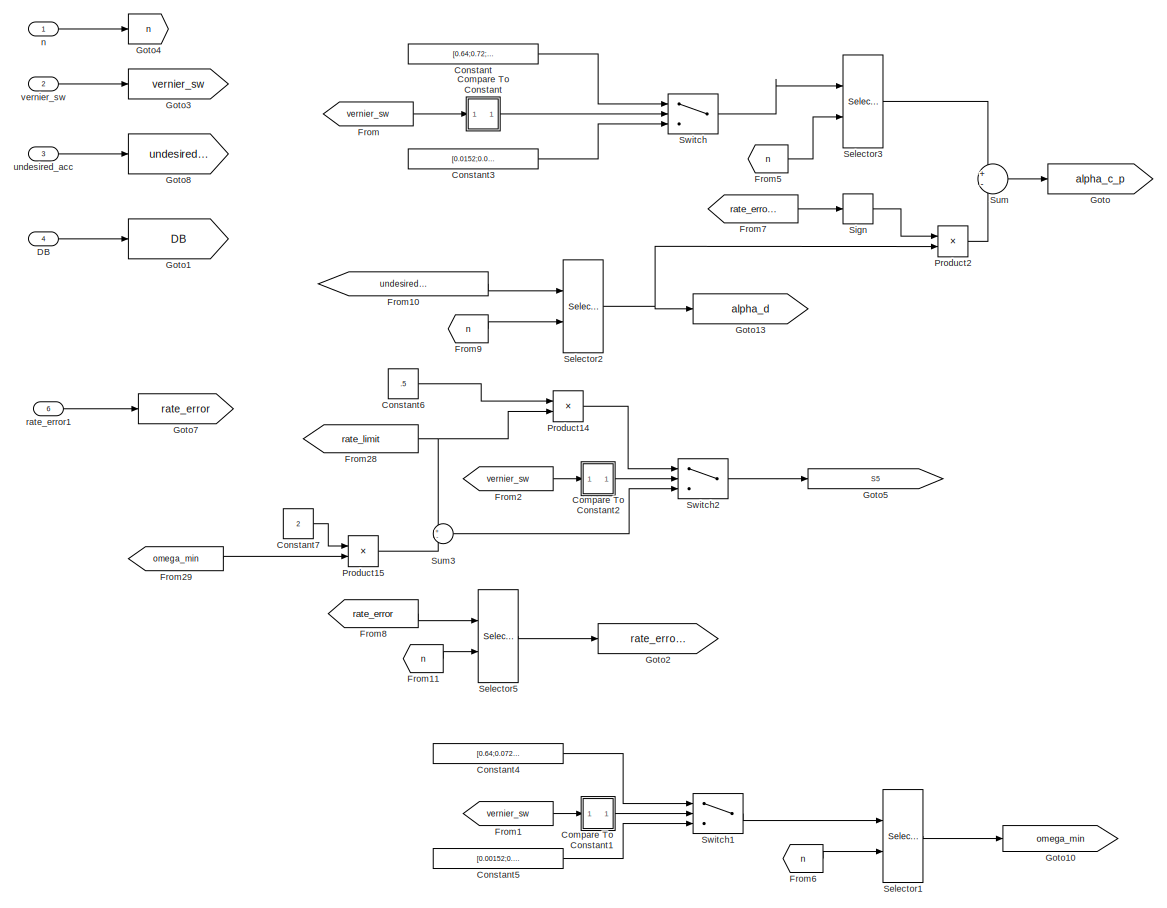
[diagram: region_limit - part 1/3, full width, top band]
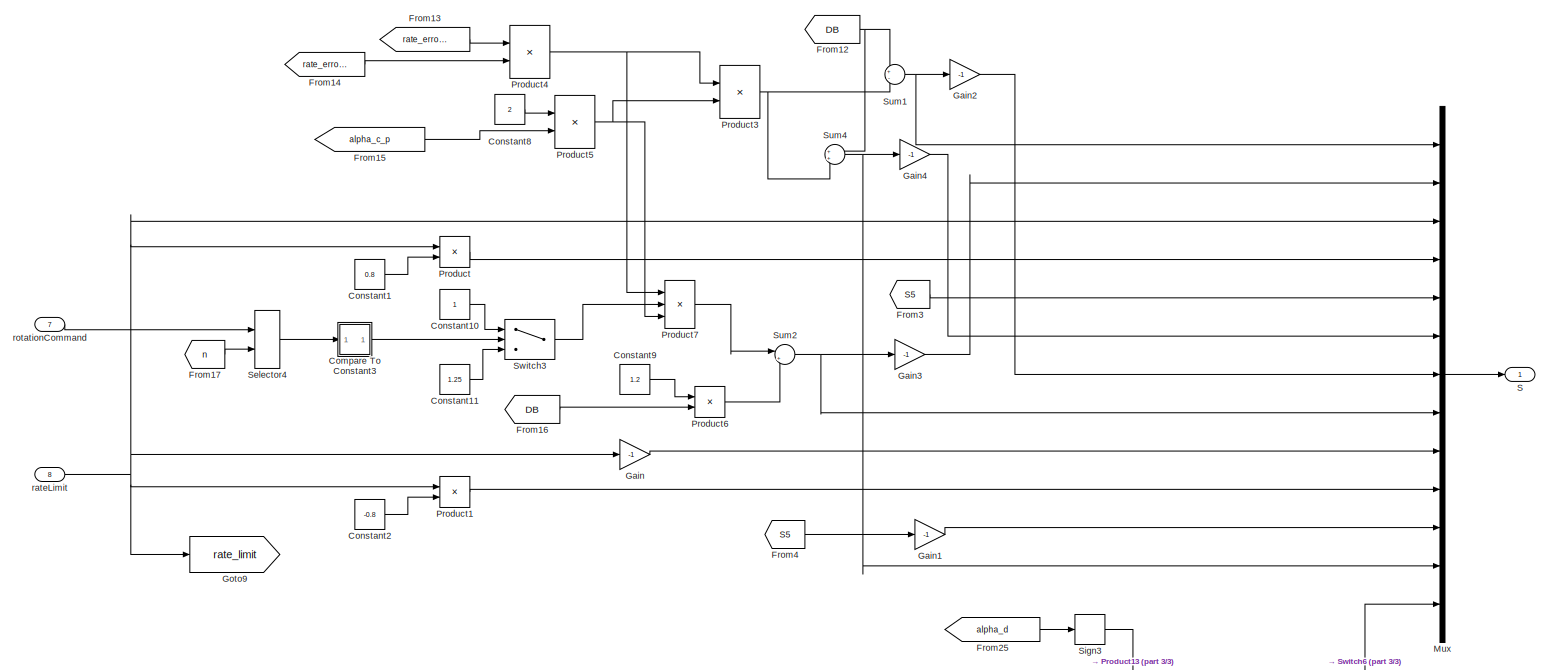
[diagram: region_limit - part 2/3, full width, middle band]
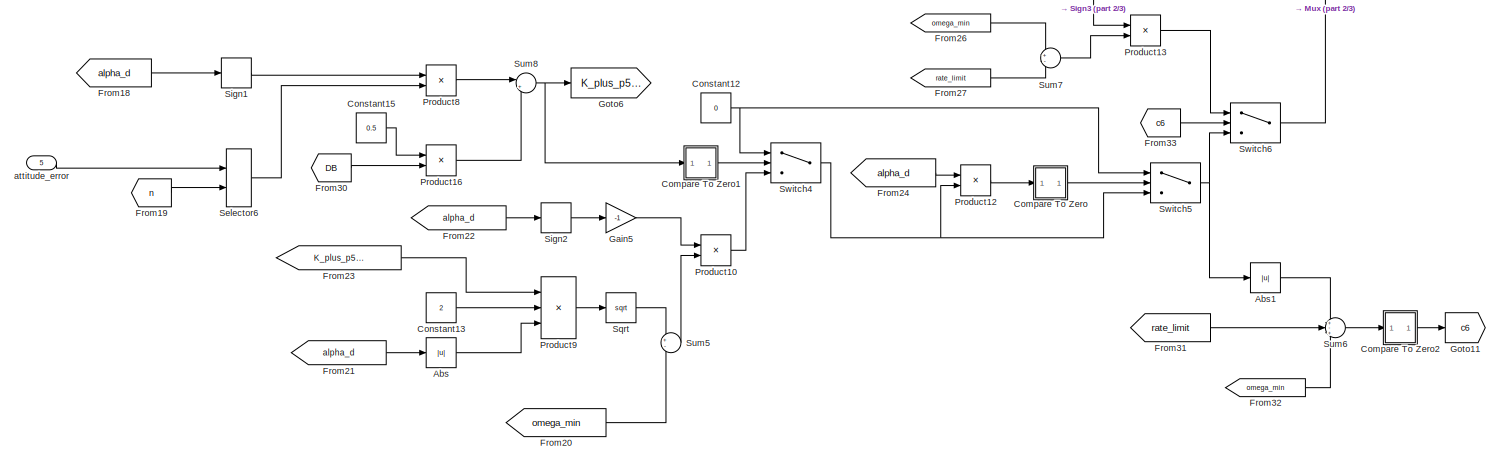
[diagram: region_limit - part 3/3, full width, bottom band]
BLOCK [SubSystem] region_limit
  Ports = [8, 1]
  RequestExecContextInheritance = off
  Variant = off
BLOCK [Abs] region_limit/Abs
  SaturateOnIntegerOverflow = off
BLOCK [Abs] region_limit/Abs1
  SaturateOnIntegerOverflow = off
BLOCK [SubSystem] region_limit/Compare To Constant
  Ports = [1, 1]
  RequestExecContextInheritance = off
  Variant = off
BLOCK [RelationalOperator] region_limit/Compare To Constant/Compare
  Operator = ==
  OutDataTypeStr = boolean
  Ports = [2, 1]
BLOCK [Constant] region_limit/Compare To Constant/Constant
  DisableCoverage = on
  OutDataTypeStr = Inherit: Inherit via back propagation
  Value = const
BLOCK [Inport] region_limit/Compare To Constant/u
  IconDisplay = Port number
BLOCK [Outport] region_limit/Compare To Constant/y
  IconDisplay = Port number
BLOCK [SubSystem] region_limit/Compare To Constant1
  Ports = [1, 1]
  RequestExecContextInheritance = off
  Variant = off
BLOCK [RelationalOperator] region_limit/Compare To Constant1/Compare
  Operator = ==
  OutDataTypeStr = boolean
  Ports = [2, 1]
BLOCK [Constant] region_limit/Compare To Constant1/Constant
  DisableCoverage = on
  OutDataTypeStr = Inherit: Inherit via back propagation
  Value = const
BLOCK [Inport] region_limit/Compare To Constant1/u
  IconDisplay = Port number
BLOCK [Outport] region_limit/Compare To Constant1/y
  IconDisplay = Port number
BLOCK [SubSystem] region_limit/Compare To Constant2
  Ports = [1, 1]
  RequestExecContextInheritance = off
  Variant = off
BLOCK [RelationalOperator] region_limit/Compare To Constant2/Compare
  Operator = ==
  OutDataTypeStr = boolean
  Ports = [2, 1]
BLOCK [Constant] region_limit/Compare To Constant2/Constant
  DisableCoverage = on
  OutDataTypeStr = Inherit: Inherit via back propagation
  Value = const
BLOCK [Inport] region_limit/Compare To Constant2/u
  IconDisplay = Port number
BLOCK [Outport] region_limit/Compare To Constant2/y
  IconDisplay = Port number
BLOCK [SubSystem] region_limit/Compare To Constant3
  Ports = [1, 1]
  RequestExecContextInheritance = off
  Variant = off
BLOCK [RelationalOperator] region_limit/Compare To Constant3/Compare
  Operator = ==
  OutDataTypeStr = boolean
  Ports = [2, 1]
BLOCK [Constant] region_limit/Compare To Constant3/Constant
  DisableCoverage = on
  OutDataTypeStr = Inherit: Inherit via back propagation
  Value = const
BLOCK [Inport] region_limit/Compare To Constant3/u
  IconDisplay = Port number
BLOCK [Outport] region_limit/Compare To Constant3/y
  IconDisplay = Port number
BLOCK [SubSystem] region_limit/Compare To Zero
  Ports = [1, 1]
  RequestExecContextInheritance = off
  Variant = off
BLOCK [RelationalOperator] region_limit/Compare To Zero/Compare
  Operator = >
  OutDataTypeStr = boolean
  Ports = [2, 1]
BLOCK [Constant] region_limit/Compare To Zero/Constant
  DisableCoverage = on
  OutDataTypeStr = Inherit: Inherit via back propagation
  PreserveConstantTs = on
  Value = 0
BLOCK [Inport] region_limit/Compare To Zero/u
  IconDisplay = Port number
BLOCK [Outport] region_limit/Compare To Zero/y
  IconDisplay = Port number
BLOCK [SubSystem] region_limit/Compare To Zero1
  Ports = [1, 1]
  RequestExecContextInheritance = off
  Variant = off
BLOCK [RelationalOperator] region_limit/Compare To Zero1/Compare
  Operator = <=
  OutDataTypeStr = boolean
  Ports = [2, 1]
BLOCK [Constant] region_limit/Compare To Zero1/Constant
  DisableCoverage = on
  OutDataTypeStr = Inherit: Inherit via back propagation
  PreserveConstantTs = on
  Value = 0
BLOCK [Inport] region_limit/Compare To Zero1/u
  IconDisplay = Port number
BLOCK [Outport] region_limit/Compare To Zero1/y
  IconDisplay = Port number
BLOCK [SubSystem] region_limit/Compare To Zero2
  Ports = [1, 1]
  RequestExecContextInheritance = off
  Variant = off
BLOCK [RelationalOperator] region_limit/Compare To Zero2/Compare
  Operator = >
  OutDataTypeStr = boolean
  Ports = [2, 1]
BLOCK [Constant] region_limit/Compare To Zero2/Constant
  DisableCoverage = on
  OutDataTypeStr = Inherit: Inherit via back propagation
  PreserveConstantTs = on
  Value = 0
BLOCK [Inport] region_limit/Compare To Zero2/u
  IconDisplay = Port number
BLOCK [Outport] region_limit/Compare To Zero2/y
  IconDisplay = Port number
BLOCK [Constant] region_limit/Constant
  Value = [0.64;0.72;0.48]
BLOCK [Constant] region_limit/Constant1
  Value = 0.8
BLOCK [Constant] region_limit/Constant10
BLOCK [Constant] region_limit/Constant11
  Value = 1.25
BLOCK [Constant] region_limit/Constant12
  Value = 0
BLOCK [Constant] region_limit/Constant13
  Value = 2
BLOCK [Constant] region_limit/Constant15
  Value = 0.5
BLOCK [Constant] region_limit/Constant2
  Value = -0.8
BLOCK [Constant] region_limit/Constant3
  Value = [0.0152;0.0104;0.0112]
BLOCK [Constant] region_limit/Constant4
  Value = [0.64;0.072;0.048]
BLOCK [Constant] region_limit/Constant5
  Value = [0.00152;0.00104;0.00112]
BLOCK [Constant] region_limit/Constant6
  Value = .5
BLOCK [Constant] region_limit/Constant7
  Value = 2
BLOCK [Constant] region_limit/Constant8
  Value = 2
BLOCK [Constant] region_limit/Constant9
  Value = 1.2
BLOCK [Inport] region_limit/DB
  IconDisplay = Port number
  Port = 4
BLOCK [From] region_limit/From
  GotoTag = vernier_sw
BLOCK [From] region_limit/From1
  GotoTag = vernier_sw
BLOCK [From] region_limit/From10
  GotoTag = undesired_acc
BLOCK [From] region_limit/From11
  GotoTag = n
BLOCK [From] region_limit/From12
  GotoTag = DB
BLOCK [From] region_limit/From13
  GotoTag = rate_error_n
BLOCK [From] region_limit/From14
  GotoTag = rate_error_n
BLOCK [From] region_limit/From15
  GotoTag = alpha_c_p
BLOCK [From] region_limit/From16
  GotoTag = DB
BLOCK [From] region_limit/From17
  GotoTag = n
BLOCK [From] region_limit/From18
  GotoTag = alpha_d
BLOCK [From] region_limit/From19
  GotoTag = n
BLOCK [From] region_limit/From2
  GotoTag = vernier_sw
BLOCK [From] region_limit/From20
  GotoTag = omega_min
BLOCK [From] region_limit/From21
  GotoTag = alpha_d
BLOCK [From] region_limit/From22
  GotoTag = alpha_d
BLOCK [From] region_limit/From23
  GotoTag = K_plus_p5DB
BLOCK [From] region_limit/From24
  GotoTag = alpha_d
BLOCK [From] region_limit/From25
  GotoTag = alpha_d
BLOCK [From] region_limit/From26
  GotoTag = omega_min
BLOCK [From] region_limit/From27
  GotoTag = rate_limit
BLOCK [From] region_limit/From28
  GotoTag = rate_limit
BLOCK [From] region_limit/From29
  GotoTag = omega_min
BLOCK [From] region_limit/From3
  GotoTag = S5
BLOCK [From] region_limit/From30
  GotoTag = DB
BLOCK [From] region_limit/From31
  GotoTag = rate_limit
BLOCK [From] region_limit/From32
  GotoTag = omega_min
BLOCK [From] region_limit/From33
  GotoTag = c6
BLOCK [From] region_limit/From4
  GotoTag = S5
BLOCK [From] region_limit/From5
  GotoTag = n
BLOCK [From] region_limit/From6
  GotoTag = n
BLOCK [From] region_limit/From7
  GotoTag = rate_error_n
BLOCK [From] region_limit/From8
  GotoTag = rate_error
BLOCK [From] region_limit/From9
  GotoTag = n
BLOCK [Gain] region_limit/Gain
  Gain = -1
  OutDataTypeStr = Inherit: Inherit via internal rule
  ParamDataTypeStr = Inherit: Inherit via internal rule
  SaturateOnIntegerOverflow = off
BLOCK [Gain] region_limit/Gain1
  Gain = -1
  OutDataTypeStr = Inherit: Inherit via internal rule
  ParamDataTypeStr = Inherit: Inherit via internal rule
  SaturateOnIntegerOverflow = off
BLOCK [Gain] region_limit/Gain2
  Gain = -1
  OutDataTypeStr = Inherit: Inherit via internal rule
  ParamDataTypeStr = Inherit: Inherit via internal rule
  SaturateOnIntegerOverflow = off
BLOCK [Gain] region_limit/Gain3
  Gain = -1
  OutDataTypeStr = Inherit: Inherit via internal rule
  ParamDataTypeStr = Inherit: Inherit via internal rule
  SaturateOnIntegerOverflow = off
BLOCK [Gain] region_limit/Gain4
  Gain = -1
  OutDataTypeStr = Inherit: Inherit via internal rule
  ParamDataTypeStr = Inherit: Inherit via internal rule
  SaturateOnIntegerOverflow = off
BLOCK [Gain] region_limit/Gain5
  Gain = -1
  OutDataTypeStr = Inherit: Inherit via internal rule
  ParamDataTypeStr = Inherit: Inherit via internal rule
  SaturateOnIntegerOverflow = off
BLOCK [Goto] region_limit/Goto
  GotoTag = alpha_c_p
BLOCK [Goto] region_limit/Goto1
  GotoTag = DB
BLOCK [Goto] region_limit/Goto10
  GotoTag = omega_min
BLOCK [Goto] region_limit/Goto11
  GotoTag = c6
BLOCK [Goto] region_limit/Goto13
  GotoTag = alpha_d
BLOCK [Goto] region_limit/Goto2
  GotoTag = rate_error_n
BLOCK [Goto] region_limit/Goto3
  GotoTag = vernier_sw
BLOCK [Goto] region_limit/Goto4
  GotoTag = n
BLOCK [Goto] region_limit/Goto5
  GotoTag = S5
BLOCK [Goto] region_limit/Goto6
  GotoTag = K_plus_p5DB
BLOCK [Goto] region_limit/Goto7
  GotoTag = rate_error
BLOCK [Goto] region_limit/Goto8
  GotoTag = undesired_acc
BLOCK [Goto] region_limit/Goto9
  GotoTag = rate_limit
BLOCK [Mux] region_limit/Mux
  DisplayOption = bar
  Inputs = 13
  Ports = [13, 1]
BLOCK [Product] region_limit/Product
  InputSameDT = off
  OutDataTypeStr = Inherit: Inherit via internal rule
  Ports = [2, 1]
  RndMeth = Floor
  SaturateOnIntegerOverflow = off
BLOCK [Product] region_limit/Product1
  InputSameDT = off
  OutDataTypeStr = Inherit: Inherit via internal rule
  Ports = [2, 1]
  RndMeth = Floor
  SaturateOnIntegerOverflow = off
BLOCK [Product] region_limit/Product10
  InputSameDT = off
  OutDataTypeStr = Inherit: Inherit via internal rule
  Ports = [2, 1]
  RndMeth = Floor
  SaturateOnIntegerOverflow = off
BLOCK [Product] region_limit/Product12
  InputSameDT = off
  OutDataTypeStr = Inherit: Inherit via internal rule
  Ports = [2, 1]
  RndMeth = Floor
  SaturateOnIntegerOverflow = off
BLOCK [Product] region_limit/Product13
  InputSameDT = off
  OutDataTypeStr = Inherit: Inherit via internal rule
  Ports = [2, 1]
  RndMeth = Floor
  SaturateOnIntegerOverflow = off
BLOCK [Product] region_limit/Product14
  InputSameDT = off
  OutDataTypeStr = Inherit: Inherit via internal rule
  Ports = [2, 1]
  RndMeth = Floor
  SaturateOnIntegerOverflow = off
BLOCK [Product] region_limit/Product15
  InputSameDT = off
  OutDataTypeStr = Inherit: Inherit via internal rule
  Ports = [2, 1]
  RndMeth = Floor
  SaturateOnIntegerOverflow = off
BLOCK [Product] region_limit/Product16
  InputSameDT = off
  OutDataTypeStr = Inherit: Inherit via internal rule
  Ports = [2, 1]
  RndMeth = Floor
  SaturateOnIntegerOverflow = off
BLOCK [Product] region_limit/Product2
  InputSameDT = off
  OutDataTypeStr = Inherit: Inherit via internal rule
  Ports = [2, 1]
  RndMeth = Floor
  SaturateOnIntegerOverflow = off
BLOCK [Product] region_limit/Product3
  InputSameDT = off
  Inputs = */
  OutDataTypeStr = Inherit: Inherit via internal rule
  Ports = [2, 1]
  RndMeth = Floor
  SaturateOnIntegerOverflow = off
BLOCK [Product] region_limit/Product4
  InputSameDT = off
  Inputs = **
  OutDataTypeStr = Inherit: Inherit via internal rule
  Ports = [2, 1]
  RndMeth = Floor
  SaturateOnIntegerOverflow = off
BLOCK [Product] region_limit/Product5
  InputSameDT = off
  Inputs = **
  OutDataTypeStr = Inherit: Inherit via internal rule
  Ports = [2, 1]
  RndMeth = Floor
  SaturateOnIntegerOverflow = off
BLOCK [Product] region_limit/Product6
  InputSameDT = off
  OutDataTypeStr = Inherit: Inherit via internal rule
  Ports = [2, 1]
  RndMeth = Floor
  SaturateOnIntegerOverflow = off
BLOCK [Product] region_limit/Product7
  InputSameDT = off
  Inputs = **/
  OutDataTypeStr = Inherit: Inherit via internal rule
  Ports = [3, 1]
  RndMeth = Floor
  SaturateOnIntegerOverflow = off
BLOCK [Product] region_limit/Product8
  InputSameDT = off
  OutDataTypeStr = Inherit: Inherit via internal rule
  Ports = [2, 1]
  RndMeth = Floor
  SaturateOnIntegerOverflow = off
BLOCK [Product] region_limit/Product9
  InputSameDT = off
  Inputs = 3
  OutDataTypeStr = Inherit: Inherit via internal rule
  Ports = [3, 1]
  RndMeth = Floor
  SaturateOnIntegerOverflow = off
BLOCK [Outport] region_limit/S
  IconDisplay = Port number
  PortDimensions = 13
BLOCK [Selector] region_limit/Selector1
  IndexOptions = Index vector (port)
  Indices = [1 3]
  InputPortWidth = 3
  OutputSizes = 1
  Ports = [2, 1]
BLOCK [Selector] region_limit/Selector2
  IndexOptions = Index vector (port)
  Indices = [1 3]
  InputPortWidth = 3
  OutputSizes = 1
  Ports = [2, 1]
BLOCK [Selector] region_limit/Selector3
  IndexOptions = Index vector (port)
  Indices = [1 3]
  InputPortWidth = 3
  OutputSizes = 1
  Ports = [2, 1]
BLOCK [Selector] region_limit/Selector4
  IndexOptions = Index vector (port)
  Indices = [1 3]
  InputPortWidth = 3
  OutputSizes = 1
  Ports = [2, 1]
BLOCK [Selector] region_limit/Selector5
  IndexOptions = Index vector (port)
  Indices = [1 3]
  InputPortWidth = 3
  OutputSizes = 1
  Ports = [2, 1]
BLOCK [Selector] region_limit/Selector6
  IndexOptions = Index vector (port)
  Indices = [1 3]
  InputPortWidth = 3
  OutputSizes = 1
  Ports = [2, 1]
BLOCK [Signum] region_limit/Sign
BLOCK [Signum] region_limit/Sign1
BLOCK [Signum] region_limit/Sign2
BLOCK [Signum] region_limit/Sign3
BLOCK [Sqrt] region_limit/Sqrt
BLOCK [Sum] region_limit/Sum
  IconShape = round
  InputSameDT = off
  Inputs = +-
  OutDataTypeStr = Inherit: Inherit via internal rule
  Ports = [2, 1]
  SaturateOnIntegerOverflow = off
BLOCK [Sum] region_limit/Sum1
  IconShape = round
  InputSameDT = off
  Inputs = +-
  OutDataTypeStr = Inherit: Inherit via internal rule
  Ports = [2, 1]
  SaturateOnIntegerOverflow = off
BLOCK [Sum] region_limit/Sum2
  IconShape = round
  InputSameDT = off
  Inputs = |++
  OutDataTypeStr = Inherit: Inherit via internal rule
  Ports = [2, 1]
  SaturateOnIntegerOverflow = off
BLOCK [Sum] region_limit/Sum3
  IconShape = round
  InputSameDT = off
  Inputs = +-
  OutDataTypeStr = Inherit: Inherit via internal rule
  Ports = [2, 1]
  SaturateOnIntegerOverflow = off
BLOCK [Sum] region_limit/Sum4
  IconShape = round
  InputSameDT = off
  OutDataTypeStr = Inherit: Inherit via internal rule
  Ports = [2, 1]
  SaturateOnIntegerOverflow = off
BLOCK [Sum] region_limit/Sum5
  IconShape = round
  InputSameDT = off
  Inputs = +-
  OutDataTypeStr = Inherit: Inherit via internal rule
  Ports = [2, 1]
  SaturateOnIntegerOverflow = off
BLOCK [Sum] region_limit/Sum6
  IconShape = round
  InputSameDT = off
  Inputs = +-+
  OutDataTypeStr = Inherit: Inherit via internal rule
  Ports = [3, 1]
  SaturateOnIntegerOverflow = off
BLOCK [Sum] region_limit/Sum7
  IconShape = round
  InputSameDT = off
  Inputs = +-
  OutDataTypeStr = Inherit: Inherit via internal rule
  Ports = [2, 1]
  SaturateOnIntegerOverflow = off
BLOCK [Sum] region_limit/Sum8
  IconShape = round
  InputSameDT = off
  Inputs = |++
  OutDataTypeStr = Inherit: Inherit via internal rule
  Ports = [2, 1]
  SaturateOnIntegerOverflow = off
BLOCK [Switch] region_limit/Switch
  Criteria = u2 ~= 0
  InputSameDT = off
  SaturateOnIntegerOverflow = off
BLOCK [Switch] region_limit/Switch1
  Criteria = u2 ~= 0
  InputSameDT = off
  SaturateOnIntegerOverflow = off
BLOCK [Switch] region_limit/Switch2
  Criteria = u2 ~= 0
  InputSameDT = off
  SaturateOnIntegerOverflow = off
BLOCK [Switch] region_limit/Switch3
  Criteria = u2 ~= 0
  InputSameDT = off
  SaturateOnIntegerOverflow = off
BLOCK [Switch] region_limit/Switch4
  Criteria = u2 > Threshold
  InputSameDT = off
  SaturateOnIntegerOverflow = off
BLOCK [Switch] region_limit/Switch5
  Criteria = u2 > Threshold
  InputSameDT = off
  SaturateOnIntegerOverflow = off
BLOCK [Switch] region_limit/Switch6
  Criteria = u2 > Threshold
  InputSameDT = off
  SaturateOnIntegerOverflow = off
BLOCK [Inport] region_limit/attitude_error
  IconDisplay = Port number
  Port = 5
BLOCK [Inport] region_limit/n
  IconDisplay = Port number
BLOCK [Inport] region_limit/rateLimit
  IconDisplay = Port number
  Port = 8
BLOCK [Inport] region_limit/rate_error1
  IconDisplay = Port number
  Port = 6
BLOCK [Inport] region_limit/rotationCommand
  IconDisplay = Port number
  Port = 7
BLOCK [Inport] region_limit/undesired_acc
  IconDisplay = Port number
  Port = 3
BLOCK [Inport] region_limit/vernier_sw
  IconDisplay = Port number
  Port = 2
BLOCK [SubSystem] vernier_jet_logic
  Ports = [0, 1]
  RequestExecContextInheritance = off
  Variant = off
BLOCK [Constant] vernier_jet_logic/Constant
  Value = zeros(6,1)
BLOCK [Outport] vernier_jet_logic/Out1
  IconDisplay = Port number
ANNOTATION (root): Quaternion libraries
ANNOTATION affectation_region: ( (S12 >= attitude_error) && (attitude_error >= S7) && (S13 > rate_error) && (rate_error >= S9) )
ANNOTATION affectation_region: ( (attitude_error > S1 && rate_error > 0) || ... (attitude_error S11 ) || ... (rate_error > S3 ) )
ANNOTATION affectation_region: ( ((S12 >= attitude_error) && (attitude_error >= S7) && (0 >= rate_error) && (rate_error >= S9) ) || ... ( (S13 >= rate_error) && (rate_error > 0) && (attitude_error >= S2 ) ) )
ANNOTATION affectation_region: ( ((S6 <= attitude_error) && (attitude_error <= S1) && (0 <= rate_error) && (rate_error <= S3) ) || ... ( (S13 <= rate_error) && (rate_error < 0) && (attitude_error <= S8 ) ) )
ANNOTATION affectation_region: ( (S6 <= attitude_error) && (attitude_error <= S1) && (S13 < rate_error) && (rate_error <= S3) )
ANNOTATION affectation_region: ( (attitude_error S5 ) || ... (rate_error < S9 ) )
ANNOTATION affectation_region: (S10 >= rate_error) && (rate_error >= S9)
ANNOTATION affectation_region: (S11 >= rate_error) && (rate_error > S10)
ANNOTATION affectation_region: (S4 <= rate_error) && (rate_error <= S3)
ANNOTATION affectation_region: (S5 <= rate_error) && (rate_error < S4)
ANNOTATION fcn2: function x = fcn2(u) x = zeros(3,1); theta = 2* asin(sqrt(u(2)^2 + u(3)^2 + u(4)^2)); a = sqrt(u(2)^2 + u(3)^2 + u(4)^2); if a == 0 x = [0;0;0]; else x(1) = -1*theta * u(2) / a; x(2) = -1*theta * u(3) / a; x(3) = -1*theta * u(4) / a; end end
LINE Direction Cosine Matrix to Quaternions/DCM:1 -> Direction Cosine Matrix to Quaternions/Reshape 3x3 -> 9:1
LINE Direction Cosine Matrix to Quaternions/If:1 -> Direction Cosine Matrix to Quaternions/Positive Trace:ifaction
LINE Direction Cosine Matrix to Quaternions/If:2 -> Direction Cosine Matrix to Quaternions/Negative Trace:ifaction
LINE Direction Cosine Matrix to Quaternions/Merge:1 -> Direction Cosine Matrix to Quaternions/Quat:1
NET Direction Cosine Matrix to Quaternions/Negative Trace/DCM:1 -> Direction Cosine Matrix to Quaternions/Negative Trace/Maximum Value at DCM(1,1):1, Direction Cosine Matrix to Quaternions/Negative Trace/Maximum Value at DCM(2,2):1, Direction Cosine Matrix to Quaternions/Negative Trace/Maximum Value at DCM(3,3):1, Direction Cosine Matrix to Quaternions/Negative Trace/diag(DCM):1
LINE Direction Cosine Matrix to Quaternions/Negative Trace/Find Maximum Diagonal Value:1 -> Direction Cosine Matrix to Quaternions/Negative Trace/Maximum Value at DCM(2,2):ifaction
LINE Direction Cosine Matrix to Quaternions/Negative Trace/Find Maximum Diagonal Value:2 -> Direction Cosine Matrix to Quaternions/Negative Trace/Maximum Value at DCM(3,3):ifaction
LINE Direction Cosine Matrix to Quaternions/Negative Trace/Find Maximum Diagonal Value:3 -> Direction Cosine Matrix to Quaternions/Negative Trace/Maximum Value at DCM(1,1):ifaction
NET Direction Cosine Matrix to Quaternions/Negative Trace/Maximum Value at DCM(1,1)/DCM:1 -> Direction Cosine Matrix to Quaternions/Negative Trace/Maximum Value at DCM(1,1)/cos(phi)sin(theta)cos(psi) + sin(phi)sin(psi) -sin(theta):1, Direction Cosine Matrix to Quaternions/Negative Trace/Maximum Value at DCM(1,1)/cos(theta)sin(phi) - (cos(phi)sin(theta)sin(psi) - sin(phi)cos(psi)):1, Direction Cosine Matrix to Quaternions/Negative Trace/Maximum Value at DCM(1,1)/cos(theta)sin(psi) + (sin(phi)sin(theta)cos(psi) - cos(phi)sin(psi)):1, Direction Cosine Matrix to Quaternions/Negative Trace/Maximum Value at DCM(1,1)/u(1) -(u(5)+u(9)) +1:1
LINE Direction Cosine Matrix to Quaternions/Negative Trace/Maximum Value at DCM(1,1)/Demux:1 -> Direction Cosine Matrix to Quaternions/Negative Trace/Maximum Value at DCM(1,1)/Gain1:1
LINE Direction Cosine Matrix to Quaternions/Negative Trace/Maximum Value at DCM(1,1)/Demux:2 -> Direction Cosine Matrix to Quaternions/Negative Trace/Maximum Value at DCM(1,1)/Gain2:1
LINE Direction Cosine Matrix to Quaternions/Negative Trace/Maximum Value at DCM(1,1)/Demux:3 -> Direction Cosine Matrix to Quaternions/Negative Trace/Maximum Value at DCM(1,1)/Gain3:1
LINE Direction Cosine Matrix to Quaternions/Negative Trace/Maximum Value at DCM(1,1)/Gain1:1 -> Direction Cosine Matrix to Quaternions/Negative Trace/Maximum Value at DCM(1,1)/Mux:3
LINE Direction Cosine Matrix to Quaternions/Negative Trace/Maximum Value at DCM(1,1)/Gain2:1 -> Direction Cosine Matrix to Quaternions/Negative Trace/Maximum Value at DCM(1,1)/Mux:4
LINE Direction Cosine Matrix to Quaternions/Negative Trace/Maximum Value at DCM(1,1)/Gain3:1 -> Direction Cosine Matrix to Quaternions/Negative Trace/Maximum Value at DCM(1,1)/Mux:1
LINE Direction Cosine Matrix to Quaternions/Negative Trace/Maximum Value at DCM(1,1)/Gain:1 -> Direction Cosine Matrix to Quaternions/Negative Trace/Maximum Value at DCM(1,1)/Mux:2
LINE Direction Cosine Matrix to Quaternions/Negative Trace/Maximum Value at DCM(1,1)/Mux1:1 -> Direction Cosine Matrix to Quaternions/Negative Trace/Maximum Value at DCM(1,1)/Product:2
LINE Direction Cosine Matrix to Quaternions/Negative Trace/Maximum Value at DCM(1,1)/Mux:1 -> Direction Cosine Matrix to Quaternions/Negative Trace/Maximum Value at DCM(1,1)/qw qx qy qz:1
LINE Direction Cosine Matrix to Quaternions/Negative Trace/Maximum Value at DCM(1,1)/Product:1 -> Direction Cosine Matrix to Quaternions/Negative Trace/Maximum Value at DCM(1,1)/Demux:1
LINE Direction Cosine Matrix to Quaternions/Negative Trace/Maximum Value at DCM(1,1)/cos(phi)sin(theta)cos(psi) + sin(phi)sin(psi) -sin(theta)/Add:1 -> Direction Cosine Matrix to Quaternions/Negative Trace/Maximum Value at DCM(1,1)/cos(phi)sin(theta)cos(psi) + sin(phi)sin(psi) -sin(theta)/u(3)+u(7):1
LINE Direction Cosine Matrix to Quaternions/Negative Trace/Maximum Value at DCM(1,1)/cos(phi)sin(theta)cos(psi) + sin(phi)sin(psi) -sin(theta)/DCM:1 -> Direction Cosine Matrix to Quaternions/Negative Trace/Maximum Value at DCM(1,1)/cos(phi)sin(theta)cos(psi) + sin(phi)sin(psi) -sin(theta)/Selector:1
LINE Direction Cosine Matrix to Quaternions/Negative Trace/Maximum Value at DCM(1,1)/cos(phi)sin(theta)cos(psi) + sin(phi)sin(psi) -sin(theta)/Demux:1 -> Direction Cosine Matrix to Quaternions/Negative Trace/Maximum Value at DCM(1,1)/cos(phi)sin(theta)cos(psi) + sin(phi)sin(psi) -sin(theta)/Add:1
LINE Direction Cosine Matrix to Quaternions/Negative Trace/Maximum Value at DCM(1,1)/cos(phi)sin(theta)cos(psi) + sin(phi)sin(psi) -sin(theta)/Demux:2 -> Direction Cosine Matrix to Quaternions/Negative Trace/Maximum Value at DCM(1,1)/cos(phi)sin(theta)cos(psi) + sin(phi)sin(psi) -sin(theta)/Add:2
LINE Direction Cosine Matrix to Quaternions/Negative Trace/Maximum Value at DCM(1,1)/cos(phi)sin(theta)cos(psi) + sin(phi)sin(psi) -sin(theta)/Selector:1 -> Direction Cosine Matrix to Quaternions/Negative Trace/Maximum Value at DCM(1,1)/cos(phi)sin(theta)cos(psi) + sin(phi)sin(psi) -sin(theta)/Demux:1
LINE Direction Cosine Matrix to Quaternions/Negative Trace/Maximum Value at DCM(1,1)/cos(phi)sin(theta)cos(psi) + sin(phi)sin(psi) -sin(theta):1 -> Direction Cosine Matrix to Quaternions/Negative Trace/Maximum Value at DCM(1,1)/Mux1:2
LINE Direction Cosine Matrix to Quaternions/Negative Trace/Maximum Value at DCM(1,1)/cos(theta)sin(phi) - (cos(phi)sin(theta)sin(psi) - sin(phi)cos(psi))/Add:1 -> Direction Cosine Matrix to Quaternions/Negative Trace/Maximum Value at DCM(1,1)/cos(theta)sin(phi) - (cos(phi)sin(theta)sin(psi) - sin(phi)cos(psi))/u(8)-u(6):1
LINE Direction Cosine Matrix to Quaternions/Negative Trace/Maximum Value at DCM(1,1)/cos(theta)sin(phi) - (cos(phi)sin(theta)sin(psi) - sin(phi)cos(psi))/DCM:1 -> Direction Cosine Matrix to Quaternions/Negative Trace/Maximum Value at DCM(1,1)/cos(theta)sin(phi) - (cos(phi)sin(theta)sin(psi) - sin(phi)cos(psi))/Selector:1
LINE Direction Cosine Matrix to Quaternions/Negative Trace/Maximum Value at DCM(1,1)/cos(theta)sin(phi) - (cos(phi)sin(theta)sin(psi) - sin(phi)cos(psi))/Demux:1 -> Direction Cosine Matrix to Quaternions/Negative Trace/Maximum Value at DCM(1,1)/cos(theta)sin(phi) - (cos(phi)sin(theta)sin(psi) - sin(phi)cos(psi))/Add:1
LINE Direction Cosine Matrix to Quaternions/Negative Trace/Maximum Value at DCM(1,1)/cos(theta)sin(phi) - (cos(phi)sin(theta)sin(psi) - sin(phi)cos(psi))/Demux:2 -> Direction Cosine Matrix to Quaternions/Negative Trace/Maximum Value at DCM(1,1)/cos(theta)sin(phi) - (cos(phi)sin(theta)sin(psi) - sin(phi)cos(psi))/Add:2
LINE Direction Cosine Matrix to Quaternions/Negative Trace/Maximum Value at DCM(1,1)/cos(theta)sin(phi) - (cos(phi)sin(theta)sin(psi) - sin(phi)cos(psi))/Selector:1 -> Direction Cosine Matrix to Quaternions/Negative Trace/Maximum Value at DCM(1,1)/cos(theta)sin(phi) - (cos(phi)sin(theta)sin(psi) - sin(phi)cos(psi))/Demux:1
LINE Direction Cosine Matrix to Quaternions/Negative Trace/Maximum Value at DCM(1,1)/cos(theta)sin(phi) - (cos(phi)sin(theta)sin(psi) - sin(phi)cos(psi)):1 -> Direction Cosine Matrix to Quaternions/Negative Trace/Maximum Value at DCM(1,1)/Mux1:3
LINE Direction Cosine Matrix to Quaternions/Negative Trace/Maximum Value at DCM(1,1)/cos(theta)sin(psi) + (sin(phi)sin(theta)cos(psi) - cos(phi)sin(psi))/Add:1 -> Direction Cosine Matrix to Quaternions/Negative Trace/Maximum Value at DCM(1,1)/cos(theta)sin(psi) + (sin(phi)sin(theta)cos(psi) - cos(phi)sin(psi))/u(4)+u(2):1
LINE Direction Cosine Matrix to Quaternions/Negative Trace/Maximum Value at DCM(1,1)/cos(theta)sin(psi) + (sin(phi)sin(theta)cos(psi) - cos(phi)sin(psi))/DCM:1 -> Direction Cosine Matrix to Quaternions/Negative Trace/Maximum Value at DCM(1,1)/cos(theta)sin(psi) + (sin(phi)sin(theta)cos(psi) - cos(phi)sin(psi))/Selector:1
LINE Direction Cosine Matrix to Quaternions/Negative Trace/Maximum Value at DCM(1,1)/cos(theta)sin(psi) + (sin(phi)sin(theta)cos(psi) - cos(phi)sin(psi))/Demux:1 -> Direction Cosine Matrix to Quaternions/Negative Trace/Maximum Value at DCM(1,1)/cos(theta)sin(psi) + (sin(phi)sin(theta)cos(psi) - cos(phi)sin(psi))/Add:1
LINE Direction Cosine Matrix to Quaternions/Negative Trace/Maximum Value at DCM(1,1)/cos(theta)sin(psi) + (sin(phi)sin(theta)cos(psi) - cos(phi)sin(psi))/Demux:2 -> Direction Cosine Matrix to Quaternions/Negative Trace/Maximum Value at DCM(1,1)/cos(theta)sin(psi) + (sin(phi)sin(theta)cos(psi) - cos(phi)sin(psi))/Add:2
LINE Direction Cosine Matrix to Quaternions/Negative Trace/Maximum Value at DCM(1,1)/cos(theta)sin(psi) + (sin(phi)sin(theta)cos(psi) - cos(phi)sin(psi))/Selector:1 -> Direction Cosine Matrix to Quaternions/Negative Trace/Maximum Value at DCM(1,1)/cos(theta)sin(psi) + (sin(phi)sin(theta)cos(psi) - cos(phi)sin(psi))/Demux:1
LINE Direction Cosine Matrix to Quaternions/Negative Trace/Maximum Value at DCM(1,1)/cos(theta)sin(psi) + (sin(phi)sin(theta)cos(psi) - cos(phi)sin(psi)):1 -> Direction Cosine Matrix to Quaternions/Negative Trace/Maximum Value at DCM(1,1)/Mux1:1
LINE Direction Cosine Matrix to Quaternions/Negative Trace/Maximum Value at DCM(1,1)/if s~=0; s=0.5//s/Constant1:1 -> Direction Cosine Matrix to Quaternions/Negative Trace/Maximum Value at DCM(1,1)/if s~=0; s=0.5//s/Mux:1
LINE Direction Cosine Matrix to Quaternions/Negative Trace/Maximum Value at DCM(1,1)/if s~=0; s=0.5//s/Constant2:1 -> Direction Cosine Matrix to Quaternions/Negative Trace/Maximum Value at DCM(1,1)/if s~=0; s=0.5//s/Switch:3
LINE Direction Cosine Matrix to Quaternions/Negative Trace/Maximum Value at DCM(1,1)/if s~=0; s=0.5//s/Demux:1 -> Direction Cosine Matrix to Quaternions/Negative Trace/Maximum Value at DCM(1,1)/if s~=0; s=0.5//s/Product:1
LINE Direction Cosine Matrix to Quaternions/Negative Trace/Maximum Value at DCM(1,1)/if s~=0; s=0.5//s/Demux:2 -> Direction Cosine Matrix to Quaternions/Negative Trace/Maximum Value at DCM(1,1)/if s~=0; s=0.5//s/Product:2
LINE Direction Cosine Matrix to Quaternions/Negative Trace/Maximum Value at DCM(1,1)/if s~=0; s=0.5//s/Mux:1 -> Direction Cosine Matrix to Quaternions/Negative Trace/Maximum Value at DCM(1,1)/if s~=0; s=0.5//s/Switch:1
LINE Direction Cosine Matrix to Quaternions/Negative Trace/Maximum Value at DCM(1,1)/if s~=0; s=0.5//s/Product:1 -> Direction Cosine Matrix to Quaternions/Negative Trace/Maximum Value at DCM(1,1)/if s~=0; s=0.5//s/s :1
LINE Direction Cosine Matrix to Quaternions/Negative Trace/Maximum Value at DCM(1,1)/if s~=0; s=0.5//s/Switch:1 -> Direction Cosine Matrix to Quaternions/Negative Trace/Maximum Value at DCM(1,1)/if s~=0; s=0.5//s/Demux:1
NET Direction Cosine Matrix to Quaternions/Negative Trace/Maximum Value at DCM(1,1)/if s~=0; s=0.5//s/s:1 -> Direction Cosine Matrix to Quaternions/Negative Trace/Maximum Value at DCM(1,1)/if s~=0; s=0.5//s/Mux:2, Direction Cosine Matrix to Quaternions/Negative Trace/Maximum Value at DCM(1,1)/if s~=0; s=0.5//s/Switch:2
LINE Direction Cosine Matrix to Quaternions/Negative Trace/Maximum Value at DCM(1,1)/if s~=0; s=0.5//s:1 -> Direction Cosine Matrix to Quaternions/Negative Trace/Maximum Value at DCM(1,1)/Product:1
NET Direction Cosine Matrix to Quaternions/Negative Trace/Maximum Value at DCM(1,1)/sqrt:1 -> Direction Cosine Matrix to Quaternions/Negative Trace/Maximum Value at DCM(1,1)/Gain:1, Direction Cosine Matrix to Quaternions/Negative Trace/Maximum Value at DCM(1,1)/if s~=0; s=0.5//s:1
LINE Direction Cosine Matrix to Quaternions/Negative Trace/Maximum Value at DCM(1,1)/u(1) -(u(5)+u(9)) +1/Add:1 -> Direction Cosine Matrix to Quaternions/Negative Trace/Maximum Value at DCM(1,1)/u(1) -(u(5)+u(9)) +1/out:1
LINE Direction Cosine Matrix to Quaternions/Negative Trace/Maximum Value at DCM(1,1)/u(1) -(u(5)+u(9)) +1/Constant:1 -> Direction Cosine Matrix to Quaternions/Negative Trace/Maximum Value at DCM(1,1)/u(1) -(u(5)+u(9)) +1/Add:4
LINE Direction Cosine Matrix to Quaternions/Negative Trace/Maximum Value at DCM(1,1)/u(1) -(u(5)+u(9)) +1/DCM:1 -> Direction Cosine Matrix to Quaternions/Negative Trace/Maximum Value at DCM(1,1)/u(1) -(u(5)+u(9)) +1/Selector:1
LINE Direction Cosine Matrix to Quaternions/Negative Trace/Maximum Value at DCM(1,1)/u(1) -(u(5)+u(9)) +1/Demux:1 -> Direction Cosine Matrix to Quaternions/Negative Trace/Maximum Value at DCM(1,1)/u(1) -(u(5)+u(9)) +1/Add:1
LINE Direction Cosine Matrix to Quaternions/Negative Trace/Maximum Value at DCM(1,1)/u(1) -(u(5)+u(9)) +1/Demux:2 -> Direction Cosine Matrix to Quaternions/Negative Trace/Maximum Value at DCM(1,1)/u(1) -(u(5)+u(9)) +1/Add:2
LINE Direction Cosine Matrix to Quaternions/Negative Trace/Maximum Value at DCM(1,1)/u(1) -(u(5)+u(9)) +1/Demux:3 -> Direction Cosine Matrix to Quaternions/Negative Trace/Maximum Value at DCM(1,1)/u(1) -(u(5)+u(9)) +1/Add:3
LINE Direction Cosine Matrix to Quaternions/Negative Trace/Maximum Value at DCM(1,1)/u(1) -(u(5)+u(9)) +1/Selector:1 -> Direction Cosine Matrix to Quaternions/Negative Trace/Maximum Value at DCM(1,1)/u(1) -(u(5)+u(9)) +1/Demux:1
LINE Direction Cosine Matrix to Quaternions/Negative Trace/Maximum Value at DCM(1,1)/u(1) -(u(5)+u(9)) +1:1 -> Direction Cosine Matrix to Quaternions/Negative Trace/Maximum Value at DCM(1,1)/sqrt:1
LINE Direction Cosine Matrix to Quaternions/Negative Trace/Maximum Value at DCM(1,1):1 -> Direction Cosine Matrix to Quaternions/Negative Trace/Merge1:3
NET Direction Cosine Matrix to Quaternions/Negative Trace/Maximum Value at DCM(2,2)/DCM:1 -> Direction Cosine Matrix to Quaternions/Negative Trace/Maximum Value at DCM(2,2)/cos(phi)sin(theta)cos(psi) + sin(phi)sin(psi) +sin(theta):1, Direction Cosine Matrix to Quaternions/Negative Trace/Maximum Value at DCM(2,2)/cos(theta)sin(phi) + (cos(phi)sin(theta)sin(psi) - sin(phi)cos(psi)):1, Direction Cosine Matrix to Quaternions/Negative Trace/Maximum Value at DCM(2,2)/cos(theta)sin(psi) + (sin(phi)sin(theta)cos(psi) - cos(phi)sin(psi)):1, Direction Cosine Matrix to Quaternions/Negative Trace/Maximum Value at DCM(2,2)/u(5) -(u(1)+u(9)) +1:1
LINE Direction Cosine Matrix to Quaternions/Negative Trace/Maximum Value at DCM(2,2)/Demux:1 -> Direction Cosine Matrix to Quaternions/Negative Trace/Maximum Value at DCM(2,2)/Gain1:1
LINE Direction Cosine Matrix to Quaternions/Negative Trace/Maximum Value at DCM(2,2)/Demux:2 -> Direction Cosine Matrix to Quaternions/Negative Trace/Maximum Value at DCM(2,2)/Gain3:1
LINE Direction Cosine Matrix to Quaternions/Negative Trace/Maximum Value at DCM(2,2)/Demux:3 -> Direction Cosine Matrix to Quaternions/Negative Trace/Maximum Value at DCM(2,2)/Gain4:1
LINE Direction Cosine Matrix to Quaternions/Negative Trace/Maximum Value at DCM(2,2)/Gain1:1 -> Direction Cosine Matrix to Quaternions/Negative Trace/Maximum Value at DCM(2,2)/Mux:2
LINE Direction Cosine Matrix to Quaternions/Negative Trace/Maximum Value at DCM(2,2)/Gain3:1 -> Direction Cosine Matrix to Quaternions/Negative Trace/Maximum Value at DCM(2,2)/Mux:4
LINE Direction Cosine Matrix to Quaternions/Negative Trace/Maximum Value at DCM(2,2)/Gain4:1 -> Direction Cosine Matrix to Quaternions/Negative Trace/Maximum Value at DCM(2,2)/Mux:1
LINE Direction Cosine Matrix to Quaternions/Negative Trace/Maximum Value at DCM(2,2)/Gain:1 -> Direction Cosine Matrix to Quaternions/Negative Trace/Maximum Value at DCM(2,2)/Mux:3
LINE Direction Cosine Matrix to Quaternions/Negative Trace/Maximum Value at DCM(2,2)/Mux1:1 -> Direction Cosine Matrix to Quaternions/Negative Trace/Maximum Value at DCM(2,2)/Product:1
LINE Direction Cosine Matrix to Quaternions/Negative Trace/Maximum Value at DCM(2,2)/Mux:1 -> Direction Cosine Matrix to Quaternions/Negative Trace/Maximum Value at DCM(2,2)/qw qx qy qz:1
LINE Direction Cosine Matrix to Quaternions/Negative Trace/Maximum Value at DCM(2,2)/Product:1 -> Direction Cosine Matrix to Quaternions/Negative Trace/Maximum Value at DCM(2,2)/Demux:1
LINE Direction Cosine Matrix to Quaternions/Negative Trace/Maximum Value at DCM(2,2)/cos(phi)sin(theta)cos(psi) + sin(phi)sin(psi) +sin(theta)/Add:1 -> Direction Cosine Matrix to Quaternions/Negative Trace/Maximum Value at DCM(2,2)/cos(phi)sin(theta)cos(psi) + sin(phi)sin(psi) +sin(theta)/u(3)-u(7):1
LINE Direction Cosine Matrix to Quaternions/Negative Trace/Maximum Value at DCM(2,2)/cos(phi)sin(theta)cos(psi) + sin(phi)sin(psi) +sin(theta)/DCM:1 -> Direction Cosine Matrix to Quaternions/Negative Trace/Maximum Value at DCM(2,2)/cos(phi)sin(theta)cos(psi) + sin(phi)sin(psi) +sin(theta)/Selector:1
LINE Direction Cosine Matrix to Quaternions/Negative Trace/Maximum Value at DCM(2,2)/cos(phi)sin(theta)cos(psi) + sin(phi)sin(psi) +sin(theta)/Demux:1 -> Direction Cosine Matrix to Quaternions/Negative Trace/Maximum Value at DCM(2,2)/cos(phi)sin(theta)cos(psi) + sin(phi)sin(psi) +sin(theta)/Add:1
LINE Direction Cosine Matrix to Quaternions/Negative Trace/Maximum Value at DCM(2,2)/cos(phi)sin(theta)cos(psi) + sin(phi)sin(psi) +sin(theta)/Demux:2 -> Direction Cosine Matrix to Quaternions/Negative Trace/Maximum Value at DCM(2,2)/cos(phi)sin(theta)cos(psi) + sin(phi)sin(psi) +sin(theta)/Add:2
LINE Direction Cosine Matrix to Quaternions/Negative Trace/Maximum Value at DCM(2,2)/cos(phi)sin(theta)cos(psi) + sin(phi)sin(psi) +sin(theta)/Selector:1 -> Direction Cosine Matrix to Quaternions/Negative Trace/Maximum Value at DCM(2,2)/cos(phi)sin(theta)cos(psi) + sin(phi)sin(psi) +sin(theta)/Demux:1
LINE Direction Cosine Matrix to Quaternions/Negative Trace/Maximum Value at DCM(2,2)/cos(phi)sin(theta)cos(psi) + sin(phi)sin(psi) +sin(theta):1 -> Direction Cosine Matrix to Quaternions/Negative Trace/Maximum Value at DCM(2,2)/Mux1:3
LINE Direction Cosine Matrix to Quaternions/Negative Trace/Maximum Value at DCM(2,2)/cos(theta)sin(phi) + (cos(phi)sin(theta)sin(psi) - sin(phi)cos(psi))/Add:1 -> Direction Cosine Matrix to Quaternions/Negative Trace/Maximum Value at DCM(2,2)/cos(theta)sin(phi) + (cos(phi)sin(theta)sin(psi) - sin(phi)cos(psi))/u(8)+u(6):1
LINE Direction Cosine Matrix to Quaternions/Negative Trace/Maximum Value at DCM(2,2)/cos(theta)sin(phi) + (cos(phi)sin(theta)sin(psi) - sin(phi)cos(psi))/DCM:1 -> Direction Cosine Matrix to Quaternions/Negative Trace/Maximum Value at DCM(2,2)/cos(theta)sin(phi) + (cos(phi)sin(theta)sin(psi) - sin(phi)cos(psi))/Selector:1
LINE Direction Cosine Matrix to Quaternions/Negative Trace/Maximum Value at DCM(2,2)/cos(theta)sin(phi) + (cos(phi)sin(theta)sin(psi) - sin(phi)cos(psi))/Demux:1 -> Direction Cosine Matrix to Quaternions/Negative Trace/Maximum Value at DCM(2,2)/cos(theta)sin(phi) + (cos(phi)sin(theta)sin(psi) - sin(phi)cos(psi))/Add:1
LINE Direction Cosine Matrix to Quaternions/Negative Trace/Maximum Value at DCM(2,2)/cos(theta)sin(phi) + (cos(phi)sin(theta)sin(psi) - sin(phi)cos(psi))/Demux:2 -> Direction Cosine Matrix to Quaternions/Negative Trace/Maximum Value at DCM(2,2)/cos(theta)sin(phi) + (cos(phi)sin(theta)sin(psi) - sin(phi)cos(psi))/Add:2
LINE Direction Cosine Matrix to Quaternions/Negative Trace/Maximum Value at DCM(2,2)/cos(theta)sin(phi) + (cos(phi)sin(theta)sin(psi) - sin(phi)cos(psi))/Selector:1 -> Direction Cosine Matrix to Quaternions/Negative Trace/Maximum Value at DCM(2,2)/cos(theta)sin(phi) + (cos(phi)sin(theta)sin(psi) - sin(phi)cos(psi))/Demux:1
LINE Direction Cosine Matrix to Quaternions/Negative Trace/Maximum Value at DCM(2,2)/cos(theta)sin(phi) + (cos(phi)sin(theta)sin(psi) - sin(phi)cos(psi)):1 -> Direction Cosine Matrix to Quaternions/Negative Trace/Maximum Value at DCM(2,2)/Mux1:2
LINE Direction Cosine Matrix to Quaternions/Negative Trace/Maximum Value at DCM(2,2)/cos(theta)sin(psi) + (sin(phi)sin(theta)cos(psi) - cos(phi)sin(psi))/Add:1 -> Direction Cosine Matrix to Quaternions/Negative Trace/Maximum Value at DCM(2,2)/cos(theta)sin(psi) + (sin(phi)sin(theta)cos(psi) - cos(phi)sin(psi))/u(4)+u(2):1
LINE Direction Cosine Matrix to Quaternions/Negative Trace/Maximum Value at DCM(2,2)/cos(theta)sin(psi) + (sin(phi)sin(theta)cos(psi) - cos(phi)sin(psi))/DCM:1 -> Direction Cosine Matrix to Quaternions/Negative Trace/Maximum Value at DCM(2,2)/cos(theta)sin(psi) + (sin(phi)sin(theta)cos(psi) - cos(phi)sin(psi))/Selector:1
LINE Direction Cosine Matrix to Quaternions/Negative Trace/Maximum Value at DCM(2,2)/cos(theta)sin(psi) + (sin(phi)sin(theta)cos(psi) - cos(phi)sin(psi))/Demux:1 -> Direction Cosine Matrix to Quaternions/Negative Trace/Maximum Value at DCM(2,2)/cos(theta)sin(psi) + (sin(phi)sin(theta)cos(psi) - cos(phi)sin(psi))/Add:1
LINE Direction Cosine Matrix to Quaternions/Negative Trace/Maximum Value at DCM(2,2)/cos(theta)sin(psi) + (sin(phi)sin(theta)cos(psi) - cos(phi)sin(psi))/Demux:2 -> Direction Cosine Matrix to Quaternions/Negative Trace/Maximum Value at DCM(2,2)/cos(theta)sin(psi) + (sin(phi)sin(theta)cos(psi) - cos(phi)sin(psi))/Add:2
LINE Direction Cosine Matrix to Quaternions/Negative Trace/Maximum Value at DCM(2,2)/cos(theta)sin(psi) + (sin(phi)sin(theta)cos(psi) - cos(phi)sin(psi))/Selector:1 -> Direction Cosine Matrix to Quaternions/Negative Trace/Maximum Value at DCM(2,2)/cos(theta)sin(psi) + (sin(phi)sin(theta)cos(psi) - cos(phi)sin(psi))/Demux:1
LINE Direction Cosine Matrix to Quaternions/Negative Trace/Maximum Value at DCM(2,2)/cos(theta)sin(psi) + (sin(phi)sin(theta)cos(psi) - cos(phi)sin(psi)):1 -> Direction Cosine Matrix to Quaternions/Negative Trace/Maximum Value at DCM(2,2)/Mux1:1
LINE Direction Cosine Matrix to Quaternions/Negative Trace/Maximum Value at DCM(2,2)/if s~=0; s=0.5//s/Constant1:1 -> Direction Cosine Matrix to Quaternions/Negative Trace/Maximum Value at DCM(2,2)/if s~=0; s=0.5//s/Mux:1
LINE Direction Cosine Matrix to Quaternions/Negative Trace/Maximum Value at DCM(2,2)/if s~=0; s=0.5//s/Constant2:1 -> Direction Cosine Matrix to Quaternions/Negative Trace/Maximum Value at DCM(2,2)/if s~=0; s=0.5//s/Switch:3
LINE Direction Cosine Matrix to Quaternions/Negative Trace/Maximum Value at DCM(2,2)/if s~=0; s=0.5//s/Demux:1 -> Direction Cosine Matrix to Quaternions/Negative Trace/Maximum Value at DCM(2,2)/if s~=0; s=0.5//s/Product:1
LINE Direction Cosine Matrix to Quaternions/Negative Trace/Maximum Value at DCM(2,2)/if s~=0; s=0.5//s/Demux:2 -> Direction Cosine Matrix to Quaternions/Negative Trace/Maximum Value at DCM(2,2)/if s~=0; s=0.5//s/Product:2
LINE Direction Cosine Matrix to Quaternions/Negative Trace/Maximum Value at DCM(2,2)/if s~=0; s=0.5//s/Mux:1 -> Direction Cosine Matrix to Quaternions/Negative Trace/Maximum Value at DCM(2,2)/if s~=0; s=0.5//s/Switch:1
LINE Direction Cosine Matrix to Quaternions/Negative Trace/Maximum Value at DCM(2,2)/if s~=0; s=0.5//s/Product:1 -> Direction Cosine Matrix to Quaternions/Negative Trace/Maximum Value at DCM(2,2)/if s~=0; s=0.5//s/s :1
LINE Direction Cosine Matrix to Quaternions/Negative Trace/Maximum Value at DCM(2,2)/if s~=0; s=0.5//s/Switch:1 -> Direction Cosine Matrix to Quaternions/Negative Trace/Maximum Value at DCM(2,2)/if s~=0; s=0.5//s/Demux:1
NET Direction Cosine Matrix to Quaternions/Negative Trace/Maximum Value at DCM(2,2)/if s~=0; s=0.5//s/s:1 -> Direction Cosine Matrix to Quaternions/Negative Trace/Maximum Value at DCM(2,2)/if s~=0; s=0.5//s/Mux:2, Direction Cosine Matrix to Quaternions/Negative Trace/Maximum Value at DCM(2,2)/if s~=0; s=0.5//s/Switch:2
LINE Direction Cosine Matrix to Quaternions/Negative Trace/Maximum Value at DCM(2,2)/if s~=0; s=0.5//s:1 -> Direction Cosine Matrix to Quaternions/Negative Trace/Maximum Value at DCM(2,2)/Product:2
NET Direction Cosine Matrix to Quaternions/Negative Trace/Maximum Value at DCM(2,2)/sqrt:1 -> Direction Cosine Matrix to Quaternions/Negative Trace/Maximum Value at DCM(2,2)/Gain:1, Direction Cosine Matrix to Quaternions/Negative Trace/Maximum Value at DCM(2,2)/if s~=0; s=0.5//s:1
LINE Direction Cosine Matrix to Quaternions/Negative Trace/Maximum Value at DCM(2,2)/u(5) -(u(1)+u(9)) +1/Add:1 -> Direction Cosine Matrix to Quaternions/Negative Trace/Maximum Value at DCM(2,2)/u(5) -(u(1)+u(9)) +1/out:1
LINE Direction Cosine Matrix to Quaternions/Negative Trace/Maximum Value at DCM(2,2)/u(5) -(u(1)+u(9)) +1/Constant:1 -> Direction Cosine Matrix to Quaternions/Negative Trace/Maximum Value at DCM(2,2)/u(5) -(u(1)+u(9)) +1/Add:4
LINE Direction Cosine Matrix to Quaternions/Negative Trace/Maximum Value at DCM(2,2)/u(5) -(u(1)+u(9)) +1/DCM:1 -> Direction Cosine Matrix to Quaternions/Negative Trace/Maximum Value at DCM(2,2)/u(5) -(u(1)+u(9)) +1/Selector:1
LINE Direction Cosine Matrix to Quaternions/Negative Trace/Maximum Value at DCM(2,2)/u(5) -(u(1)+u(9)) +1/Demux:1 -> Direction Cosine Matrix to Quaternions/Negative Trace/Maximum Value at DCM(2,2)/u(5) -(u(1)+u(9)) +1/Add:1
LINE Direction Cosine Matrix to Quaternions/Negative Trace/Maximum Value at DCM(2,2)/u(5) -(u(1)+u(9)) +1/Demux:2 -> Direction Cosine Matrix to Quaternions/Negative Trace/Maximum Value at DCM(2,2)/u(5) -(u(1)+u(9)) +1/Add:2
LINE Direction Cosine Matrix to Quaternions/Negative Trace/Maximum Value at DCM(2,2)/u(5) -(u(1)+u(9)) +1/Demux:3 -> Direction Cosine Matrix to Quaternions/Negative Trace/Maximum Value at DCM(2,2)/u(5) -(u(1)+u(9)) +1/Add:3
LINE Direction Cosine Matrix to Quaternions/Negative Trace/Maximum Value at DCM(2,2)/u(5) -(u(1)+u(9)) +1/Selector:1 -> Direction Cosine Matrix to Quaternions/Negative Trace/Maximum Value at DCM(2,2)/u(5) -(u(1)+u(9)) +1/Demux:1
LINE Direction Cosine Matrix to Quaternions/Negative Trace/Maximum Value at DCM(2,2)/u(5) -(u(1)+u(9)) +1:1 -> Direction Cosine Matrix to Quaternions/Negative Trace/Maximum Value at DCM(2,2)/sqrt:1
LINE Direction Cosine Matrix to Quaternions/Negative Trace/Maximum Value at DCM(2,2):1 -> Direction Cosine Matrix to Quaternions/Negative Trace/Merge1:1
NET Direction Cosine Matrix to Quaternions/Negative Trace/Maximum Value at DCM(3,3)/DCM:1 -> Direction Cosine Matrix to Quaternions/Negative Trace/Maximum Value at DCM(3,3)/cos(phi)sin(theta)cos(psi) + sin(phi)sin(psi) -sin(theta):1, Direction Cosine Matrix to Quaternions/Negative Trace/Maximum Value at DCM(3,3)/cos(theta)sin(phi) + (cos(phi)sin(theta)sin(psi) - sin(phi)cos(psi)):1, Direction Cosine Matrix to Quaternions/Negative Trace/Maximum Value at DCM(3,3)/cos(theta)sin(psi) - (sin(phi)sin(theta)cos(psi) - cos(phi)sin(psi)):1, Direction Cosine Matrix to Quaternions/Negative Trace/Maximum Value at DCM(3,3)/u(9) -(u(1)+u(5)) +1:1
LINE Direction Cosine Matrix to Quaternions/Negative Trace/Maximum Value at DCM(3,3)/Demux:1 -> Direction Cosine Matrix to Quaternions/Negative Trace/Maximum Value at DCM(3,3)/Gain1:1
LINE Direction Cosine Matrix to Quaternions/Negative Trace/Maximum Value at DCM(3,3)/Demux:2 -> Direction Cosine Matrix to Quaternions/Negative Trace/Maximum Value at DCM(3,3)/Gain2:1
LINE Direction Cosine Matrix to Quaternions/Negative Trace/Maximum Value at DCM(3,3)/Demux:3 -> Direction Cosine Matrix to Quaternions/Negative Trace/Maximum Value at DCM(3,3)/Gain3:1
LINE Direction Cosine Matrix to Quaternions/Negative Trace/Maximum Value at DCM(3,3)/Gain1:1 -> Direction Cosine Matrix to Quaternions/Negative Trace/Maximum Value at DCM(3,3)/Mux:2
LINE Direction Cosine Matrix to Quaternions/Negative Trace/Maximum Value at DCM(3,3)/Gain2:1 -> Direction Cosine Matrix to Quaternions/Negative Trace/Maximum Value at DCM(3,3)/Mux:3
LINE Direction Cosine Matrix to Quaternions/Negative Trace/Maximum Value at DCM(3,3)/Gain3:1 -> Direction Cosine Matrix to Quaternions/Negative Trace/Maximum Value at DCM(3,3)/Mux:1
LINE Direction Cosine Matrix to Quaternions/Negative Trace/Maximum Value at DCM(3,3)/Gain:1 -> Direction Cosine Matrix to Quaternions/Negative Trace/Maximum Value at DCM(3,3)/Mux:4
LINE Direction Cosine Matrix to Quaternions/Negative Trace/Maximum Value at DCM(3,3)/Mux1:1 -> Direction Cosine Matrix to Quaternions/Negative Trace/Maximum Value at DCM(3,3)/Product:1
LINE Direction Cosine Matrix to Quaternions/Negative Trace/Maximum Value at DCM(3,3)/Mux:1 -> Direction Cosine Matrix to Quaternions/Negative Trace/Maximum Value at DCM(3,3)/qw qx qy qz:1
LINE Direction Cosine Matrix to Quaternions/Negative Trace/Maximum Value at DCM(3,3)/Product:1 -> Direction Cosine Matrix to Quaternions/Negative Trace/Maximum Value at DCM(3,3)/Demux:1
LINE Direction Cosine Matrix to Quaternions/Negative Trace/Maximum Value at DCM(3,3)/cos(phi)sin(theta)cos(psi) + sin(phi)sin(psi) -sin(theta)/Add:1 -> Direction Cosine Matrix to Quaternions/Negative Trace/Maximum Value at DCM(3,3)/cos(phi)sin(theta)cos(psi) + sin(phi)sin(psi) -sin(theta)/u(3)+u(7):1
LINE Direction Cosine Matrix to Quaternions/Negative Trace/Maximum Value at DCM(3,3)/cos(phi)sin(theta)cos(psi) + sin(phi)sin(psi) -sin(theta)/DCM:1 -> Direction Cosine Matrix to Quaternions/Negative Trace/Maximum Value at DCM(3,3)/cos(phi)sin(theta)cos(psi) + sin(phi)sin(psi) -sin(theta)/Selector:1
LINE Direction Cosine Matrix to Quaternions/Negative Trace/Maximum Value at DCM(3,3)/cos(phi)sin(theta)cos(psi) + sin(phi)sin(psi) -sin(theta)/Demux:1 -> Direction Cosine Matrix to Quaternions/Negative Trace/Maximum Value at DCM(3,3)/cos(phi)sin(theta)cos(psi) + sin(phi)sin(psi) -sin(theta)/Add:1
LINE Direction Cosine Matrix to Quaternions/Negative Trace/Maximum Value at DCM(3,3)/cos(phi)sin(theta)cos(psi) + sin(phi)sin(psi) -sin(theta)/Demux:2 -> Direction Cosine Matrix to Quaternions/Negative Trace/Maximum Value at DCM(3,3)/cos(phi)sin(theta)cos(psi) + sin(phi)sin(psi) -sin(theta)/Add:2
LINE Direction Cosine Matrix to Quaternions/Negative Trace/Maximum Value at DCM(3,3)/cos(phi)sin(theta)cos(psi) + sin(phi)sin(psi) -sin(theta)/Selector:1 -> Direction Cosine Matrix to Quaternions/Negative Trace/Maximum Value at DCM(3,3)/cos(phi)sin(theta)cos(psi) + sin(phi)sin(psi) -sin(theta)/Demux:1
LINE Direction Cosine Matrix to Quaternions/Negative Trace/Maximum Value at DCM(3,3)/cos(phi)sin(theta)cos(psi) + sin(phi)sin(psi) -sin(theta):1 -> Direction Cosine Matrix to Quaternions/Negative Trace/Maximum Value at DCM(3,3)/Mux1:1
LINE Direction Cosine Matrix to Quaternions/Negative Trace/Maximum Value at DCM(3,3)/cos(theta)sin(phi) + (cos(phi)sin(theta)sin(psi) - sin(phi)cos(psi))/Add:1 -> Direction Cosine Matrix to Quaternions/Negative Trace/Maximum Value at DCM(3,3)/cos(theta)sin(phi) + (cos(phi)sin(theta)sin(psi) - sin(phi)cos(psi))/u(8)+u(6):1
LINE Direction Cosine Matrix to Quaternions/Negative Trace/Maximum Value at DCM(3,3)/cos(theta)sin(phi) + (cos(phi)sin(theta)sin(psi) - sin(phi)cos(psi))/DCM:1 -> Direction Cosine Matrix to Quaternions/Negative Trace/Maximum Value at DCM(3,3)/cos(theta)sin(phi) + (cos(phi)sin(theta)sin(psi) - sin(phi)cos(psi))/Selector:1
LINE Direction Cosine Matrix to Quaternions/Negative Trace/Maximum Value at DCM(3,3)/cos(theta)sin(phi) + (cos(phi)sin(theta)sin(psi) - sin(phi)cos(psi))/Demux:1 -> Direction Cosine Matrix to Quaternions/Negative Trace/Maximum Value at DCM(3,3)/cos(theta)sin(phi) + (cos(phi)sin(theta)sin(psi) - sin(phi)cos(psi))/Add:1
LINE Direction Cosine Matrix to Quaternions/Negative Trace/Maximum Value at DCM(3,3)/cos(theta)sin(phi) + (cos(phi)sin(theta)sin(psi) - sin(phi)cos(psi))/Demux:2 -> Direction Cosine Matrix to Quaternions/Negative Trace/Maximum Value at DCM(3,3)/cos(theta)sin(phi) + (cos(phi)sin(theta)sin(psi) - sin(phi)cos(psi))/Add:2
LINE Direction Cosine Matrix to Quaternions/Negative Trace/Maximum Value at DCM(3,3)/cos(theta)sin(phi) + (cos(phi)sin(theta)sin(psi) - sin(phi)cos(psi))/Selector:1 -> Direction Cosine Matrix to Quaternions/Negative Trace/Maximum Value at DCM(3,3)/cos(theta)sin(phi) + (cos(phi)sin(theta)sin(psi) - sin(phi)cos(psi))/Demux:1
LINE Direction Cosine Matrix to Quaternions/Negative Trace/Maximum Value at DCM(3,3)/cos(theta)sin(phi) + (cos(phi)sin(theta)sin(psi) - sin(phi)cos(psi)):1 -> Direction Cosine Matrix to Quaternions/Negative Trace/Maximum Value at DCM(3,3)/Mux1:2
LINE Direction Cosine Matrix to Quaternions/Negative Trace/Maximum Value at DCM(3,3)/cos(theta)sin(psi) - (sin(phi)sin(theta)cos(psi) - cos(phi)sin(psi))/Add:1 -> Direction Cosine Matrix to Quaternions/Negative Trace/Maximum Value at DCM(3,3)/cos(theta)sin(psi) - (sin(phi)sin(theta)cos(psi) - cos(phi)sin(psi))/u(4)-u(2):1
LINE Direction Cosine Matrix to Quaternions/Negative Trace/Maximum Value at DCM(3,3)/cos(theta)sin(psi) - (sin(phi)sin(theta)cos(psi) - cos(phi)sin(psi))/DCM:1 -> Direction Cosine Matrix to Quaternions/Negative Trace/Maximum Value at DCM(3,3)/cos(theta)sin(psi) - (sin(phi)sin(theta)cos(psi) - cos(phi)sin(psi))/Selector:1
LINE Direction Cosine Matrix to Quaternions/Negative Trace/Maximum Value at DCM(3,3)/cos(theta)sin(psi) - (sin(phi)sin(theta)cos(psi) - cos(phi)sin(psi))/Demux:1 -> Direction Cosine Matrix to Quaternions/Negative Trace/Maximum Value at DCM(3,3)/cos(theta)sin(psi) - (sin(phi)sin(theta)cos(psi) - cos(phi)sin(psi))/Add:1
LINE Direction Cosine Matrix to Quaternions/Negative Trace/Maximum Value at DCM(3,3)/cos(theta)sin(psi) - (sin(phi)sin(theta)cos(psi) - cos(phi)sin(psi))/Demux:2 -> Direction Cosine Matrix to Quaternions/Negative Trace/Maximum Value at DCM(3,3)/cos(theta)sin(psi) - (sin(phi)sin(theta)cos(psi) - cos(phi)sin(psi))/Add:2
LINE Direction Cosine Matrix to Quaternions/Negative Trace/Maximum Value at DCM(3,3)/cos(theta)sin(psi) - (sin(phi)sin(theta)cos(psi) - cos(phi)sin(psi))/Selector:1 -> Direction Cosine Matrix to Quaternions/Negative Trace/Maximum Value at DCM(3,3)/cos(theta)sin(psi) - (sin(phi)sin(theta)cos(psi) - cos(phi)sin(psi))/Demux:1
LINE Direction Cosine Matrix to Quaternions/Negative Trace/Maximum Value at DCM(3,3)/cos(theta)sin(psi) - (sin(phi)sin(theta)cos(psi) - cos(phi)sin(psi)):1 -> Direction Cosine Matrix to Quaternions/Negative Trace/Maximum Value at DCM(3,3)/Mux1:3
LINE Direction Cosine Matrix to Quaternions/Negative Trace/Maximum Value at DCM(3,3)/if s~=0; s=0.5//s/Constant1:1 -> Direction Cosine Matrix to Quaternions/Negative Trace/Maximum Value at DCM(3,3)/if s~=0; s=0.5//s/Mux:1
LINE Direction Cosine Matrix to Quaternions/Negative Trace/Maximum Value at DCM(3,3)/if s~=0; s=0.5//s/Constant2:1 -> Direction Cosine Matrix to Quaternions/Negative Trace/Maximum Value at DCM(3,3)/if s~=0; s=0.5//s/Switch:3
LINE Direction Cosine Matrix to Quaternions/Negative Trace/Maximum Value at DCM(3,3)/if s~=0; s=0.5//s/Demux:1 -> Direction Cosine Matrix to Quaternions/Negative Trace/Maximum Value at DCM(3,3)/if s~=0; s=0.5//s/Product:1
LINE Direction Cosine Matrix to Quaternions/Negative Trace/Maximum Value at DCM(3,3)/if s~=0; s=0.5//s/Demux:2 -> Direction Cosine Matrix to Quaternions/Negative Trace/Maximum Value at DCM(3,3)/if s~=0; s=0.5//s/Product:2
LINE Direction Cosine Matrix to Quaternions/Negative Trace/Maximum Value at DCM(3,3)/if s~=0; s=0.5//s/Mux:1 -> Direction Cosine Matrix to Quaternions/Negative Trace/Maximum Value at DCM(3,3)/if s~=0; s=0.5//s/Switch:1
LINE Direction Cosine Matrix to Quaternions/Negative Trace/Maximum Value at DCM(3,3)/if s~=0; s=0.5//s/Product:1 -> Direction Cosine Matrix to Quaternions/Negative Trace/Maximum Value at DCM(3,3)/if s~=0; s=0.5//s/s :1
LINE Direction Cosine Matrix to Quaternions/Negative Trace/Maximum Value at DCM(3,3)/if s~=0; s=0.5//s/Switch:1 -> Direction Cosine Matrix to Quaternions/Negative Trace/Maximum Value at DCM(3,3)/if s~=0; s=0.5//s/Demux:1
NET Direction Cosine Matrix to Quaternions/Negative Trace/Maximum Value at DCM(3,3)/if s~=0; s=0.5//s/s:1 -> Direction Cosine Matrix to Quaternions/Negative Trace/Maximum Value at DCM(3,3)/if s~=0; s=0.5//s/Mux:2, Direction Cosine Matrix to Quaternions/Negative Trace/Maximum Value at DCM(3,3)/if s~=0; s=0.5//s/Switch:2
LINE Direction Cosine Matrix to Quaternions/Negative Trace/Maximum Value at DCM(3,3)/if s~=0; s=0.5//s:1 -> Direction Cosine Matrix to Quaternions/Negative Trace/Maximum Value at DCM(3,3)/Product:2
NET Direction Cosine Matrix to Quaternions/Negative Trace/Maximum Value at DCM(3,3)/sqrt:1 -> Direction Cosine Matrix to Quaternions/Negative Trace/Maximum Value at DCM(3,3)/Gain:1, Direction Cosine Matrix to Quaternions/Negative Trace/Maximum Value at DCM(3,3)/if s~=0; s=0.5//s:1
LINE Direction Cosine Matrix to Quaternions/Negative Trace/Maximum Value at DCM(3,3)/u(9) -(u(1)+u(5)) +1/Add:1 -> Direction Cosine Matrix to Quaternions/Negative Trace/Maximum Value at DCM(3,3)/u(9) -(u(1)+u(5)) +1/out:1
LINE Direction Cosine Matrix to Quaternions/Negative Trace/Maximum Value at DCM(3,3)/u(9) -(u(1)+u(5)) +1/Constant:1 -> Direction Cosine Matrix to Quaternions/Negative Trace/Maximum Value at DCM(3,3)/u(9) -(u(1)+u(5)) +1/Add:4
LINE Direction Cosine Matrix to Quaternions/Negative Trace/Maximum Value at DCM(3,3)/u(9) -(u(1)+u(5)) +1/DCM:1 -> Direction Cosine Matrix to Quaternions/Negative Trace/Maximum Value at DCM(3,3)/u(9) -(u(1)+u(5)) +1/Selector:1
LINE Direction Cosine Matrix to Quaternions/Negative Trace/Maximum Value at DCM(3,3)/u(9) -(u(1)+u(5)) +1/Demux:1 -> Direction Cosine Matrix to Quaternions/Negative Trace/Maximum Value at DCM(3,3)/u(9) -(u(1)+u(5)) +1/Add:1
LINE Direction Cosine Matrix to Quaternions/Negative Trace/Maximum Value at DCM(3,3)/u(9) -(u(1)+u(5)) +1/Demux:2 -> Direction Cosine Matrix to Quaternions/Negative Trace/Maximum Value at DCM(3,3)/u(9) -(u(1)+u(5)) +1/Add:2
LINE Direction Cosine Matrix to Quaternions/Negative Trace/Maximum Value at DCM(3,3)/u(9) -(u(1)+u(5)) +1/Demux:3 -> Direction Cosine Matrix to Quaternions/Negative Trace/Maximum Value at DCM(3,3)/u(9) -(u(1)+u(5)) +1/Add:3
LINE Direction Cosine Matrix to Quaternions/Negative Trace/Maximum Value at DCM(3,3)/u(9) -(u(1)+u(5)) +1/Selector:1 -> Direction Cosine Matrix to Quaternions/Negative Trace/Maximum Value at DCM(3,3)/u(9) -(u(1)+u(5)) +1/Demux:1
LINE Direction Cosine Matrix to Quaternions/Negative Trace/Maximum Value at DCM(3,3)/u(9) -(u(1)+u(5)) +1:1 -> Direction Cosine Matrix to Quaternions/Negative Trace/Maximum Value at DCM(3,3)/sqrt:1
LINE Direction Cosine Matrix to Quaternions/Negative Trace/Maximum Value at DCM(3,3):1 -> Direction Cosine Matrix to Quaternions/Negative Trace/Merge1:2
LINE Direction Cosine Matrix to Quaternions/Negative Trace/Merge1:1 -> Direction Cosine Matrix to Quaternions/Negative Trace/qw qx qy qz:1
LINE Direction Cosine Matrix to Quaternions/Negative Trace/diag(DCM)/DCM:1 -> Direction Cosine Matrix to Quaternions/Negative Trace/diag(DCM)/Selector:1
LINE Direction Cosine Matrix to Quaternions/Negative Trace/diag(DCM)/Demux:1 -> Direction Cosine Matrix to Quaternions/Negative Trace/diag(DCM)/u(1):1
LINE Direction Cosine Matrix to Quaternions/Negative Trace/diag(DCM)/Demux:2 -> Direction Cosine Matrix to Quaternions/Negative Trace/diag(DCM)/u(5):1
LINE Direction Cosine Matrix to Quaternions/Negative Trace/diag(DCM)/Demux:3 -> Direction Cosine Matrix to Quaternions/Negative Trace/diag(DCM)/u(9):1
LINE Direction Cosine Matrix to Quaternions/Negative Trace/diag(DCM)/Selector:1 -> Direction Cosine Matrix to Quaternions/Negative Trace/diag(DCM)/Demux:1
LINE Direction Cosine Matrix to Quaternions/Negative Trace/diag(DCM):1 -> Direction Cosine Matrix to Quaternions/Negative Trace/Find Maximum Diagonal Value:1
LINE Direction Cosine Matrix to Quaternions/Negative Trace/diag(DCM):2 -> Direction Cosine Matrix to Quaternions/Negative Trace/Find Maximum Diagonal Value:2
LINE Direction Cosine Matrix to Quaternions/Negative Trace/diag(DCM):3 -> Direction Cosine Matrix to Quaternions/Negative Trace/Find Maximum Diagonal Value:3
LINE Direction Cosine Matrix to Quaternions/Negative Trace:1 -> Direction Cosine Matrix to Quaternions/Merge:2
LINE Direction Cosine Matrix to Quaternions/Positive Trace/Constant:1 -> Direction Cosine Matrix to Quaternions/Positive Trace/Sum:2
NET Direction Cosine Matrix to Quaternions/Positive Trace/DCM:1 -> Direction Cosine Matrix to Quaternions/Positive Trace/cos(phi)sin(theta)cos(psi) + sin(phi)sin(psi) +sin(theta):1, Direction Cosine Matrix to Quaternions/Positive Trace/cos(theta)sin(phi) - (cos(phi)sin(theta)sin(psi) - sin(phi)cos(psi)):1, Direction Cosine Matrix to Quaternions/Positive Trace/cos(theta)sin(psi) - (sin(phi)sin(theta)cos(psi) - cos(phi)sin(psi)):1
LINE Direction Cosine Matrix to Quaternions/Positive Trace/Gain1:1 -> Direction Cosine Matrix to Quaternions/Positive Trace/Product:2
LINE Direction Cosine Matrix to Quaternions/Positive Trace/Gain:1 -> Direction Cosine Matrix to Quaternions/Positive Trace/Mux:1
LINE Direction Cosine Matrix to Quaternions/Positive Trace/Mux1:1 -> Direction Cosine Matrix to Quaternions/Positive Trace/Product:1
LINE Direction Cosine Matrix to Quaternions/Positive Trace/Mux:1 -> Direction Cosine Matrix to Quaternions/Positive Trace/qw qx qy qz:1
LINE Direction Cosine Matrix to Quaternions/Positive Trace/Product:1 -> Direction Cosine Matrix to Quaternions/Positive Trace/Mux:2
LINE Direction Cosine Matrix to Quaternions/Positive Trace/Sum:1 -> Direction Cosine Matrix to Quaternions/Positive Trace/sqrt:1
LINE Direction Cosine Matrix to Quaternions/Positive Trace/cos(phi)sin(theta)cos(psi) + sin(phi)sin(psi) +sin(theta)/Add:1 -> Direction Cosine Matrix to Quaternions/Positive Trace/cos(phi)sin(theta)cos(psi) + sin(phi)sin(psi) +sin(theta)/u(3)-u(7):1
LINE Direction Cosine Matrix to Quaternions/Positive Trace/cos(phi)sin(theta)cos(psi) + sin(phi)sin(psi) +sin(theta)/DCM:1 -> Direction Cosine Matrix to Quaternions/Positive Trace/cos(phi)sin(theta)cos(psi) + sin(phi)sin(psi) +sin(theta)/Selector:1
LINE Direction Cosine Matrix to Quaternions/Positive Trace/cos(phi)sin(theta)cos(psi) + sin(phi)sin(psi) +sin(theta)/Demux:1 -> Direction Cosine Matrix to Quaternions/Positive Trace/cos(phi)sin(theta)cos(psi) + sin(phi)sin(psi) +sin(theta)/Add:1
LINE Direction Cosine Matrix to Quaternions/Positive Trace/cos(phi)sin(theta)cos(psi) + sin(phi)sin(psi) +sin(theta)/Demux:2 -> Direction Cosine Matrix to Quaternions/Positive Trace/cos(phi)sin(theta)cos(psi) + sin(phi)sin(psi) +sin(theta)/Add:2
LINE Direction Cosine Matrix to Quaternions/Positive Trace/cos(phi)sin(theta)cos(psi) + sin(phi)sin(psi) +sin(theta)/Selector:1 -> Direction Cosine Matrix to Quaternions/Positive Trace/cos(phi)sin(theta)cos(psi) + sin(phi)sin(psi) +sin(theta)/Demux:1
LINE Direction Cosine Matrix to Quaternions/Positive Trace/cos(phi)sin(theta)cos(psi) + sin(phi)sin(psi) +sin(theta):1 -> Direction Cosine Matrix to Quaternions/Positive Trace/Mux1:2
LINE Direction Cosine Matrix to Quaternions/Positive Trace/cos(theta)sin(phi) - (cos(phi)sin(theta)sin(psi) - sin(phi)cos(psi))/Add:1 -> Direction Cosine Matrix to Quaternions/Positive Trace/cos(theta)sin(phi) - (cos(phi)sin(theta)sin(psi) - sin(phi)cos(psi))/u(8)-u(6):1
LINE Direction Cosine Matrix to Quaternions/Positive Trace/cos(theta)sin(phi) - (cos(phi)sin(theta)sin(psi) - sin(phi)cos(psi))/DCM:1 -> Direction Cosine Matrix to Quaternions/Positive Trace/cos(theta)sin(phi) - (cos(phi)sin(theta)sin(psi) - sin(phi)cos(psi))/Selector:1
LINE Direction Cosine Matrix to Quaternions/Positive Trace/cos(theta)sin(phi) - (cos(phi)sin(theta)sin(psi) - sin(phi)cos(psi))/Demux:1 -> Direction Cosine Matrix to Quaternions/Positive Trace/cos(theta)sin(phi) - (cos(phi)sin(theta)sin(psi) - sin(phi)cos(psi))/Add:1
LINE Direction Cosine Matrix to Quaternions/Positive Trace/cos(theta)sin(phi) - (cos(phi)sin(theta)sin(psi) - sin(phi)cos(psi))/Demux:2 -> Direction Cosine Matrix to Quaternions/Positive Trace/cos(theta)sin(phi) - (cos(phi)sin(theta)sin(psi) - sin(phi)cos(psi))/Add:2
LINE Direction Cosine Matrix to Quaternions/Positive Trace/cos(theta)sin(phi) - (cos(phi)sin(theta)sin(psi) - sin(phi)cos(psi))/Selector:1 -> Direction Cosine Matrix to Quaternions/Positive Trace/cos(theta)sin(phi) - (cos(phi)sin(theta)sin(psi) - sin(phi)cos(psi))/Demux:1
LINE Direction Cosine Matrix to Quaternions/Positive Trace/cos(theta)sin(phi) - (cos(phi)sin(theta)sin(psi) - sin(phi)cos(psi)):1 -> Direction Cosine Matrix to Quaternions/Positive Trace/Mux1:1
LINE Direction Cosine Matrix to Quaternions/Positive Trace/cos(theta)sin(psi) - (sin(phi)sin(theta)cos(psi) - cos(phi)sin(psi))/Add:1 -> Direction Cosine Matrix to Quaternions/Positive Trace/cos(theta)sin(psi) - (sin(phi)sin(theta)cos(psi) - cos(phi)sin(psi))/u(4)-u(2):1
LINE Direction Cosine Matrix to Quaternions/Positive Trace/cos(theta)sin(psi) - (sin(phi)sin(theta)cos(psi) - cos(phi)sin(psi))/DCM:1 -> Direction Cosine Matrix to Quaternions/Positive Trace/cos(theta)sin(psi) - (sin(phi)sin(theta)cos(psi) - cos(phi)sin(psi))/Selector:1
LINE Direction Cosine Matrix to Quaternions/Positive Trace/cos(theta)sin(psi) - (sin(phi)sin(theta)cos(psi) - cos(phi)sin(psi))/Demux:1 -> Direction Cosine Matrix to Quaternions/Positive Trace/cos(theta)sin(psi) - (sin(phi)sin(theta)cos(psi) - cos(phi)sin(psi))/Add:1
LINE Direction Cosine Matrix to Quaternions/Positive Trace/cos(theta)sin(psi) - (sin(phi)sin(theta)cos(psi) - cos(phi)sin(psi))/Demux:2 -> Direction Cosine Matrix to Quaternions/Positive Trace/cos(theta)sin(psi) - (sin(phi)sin(theta)cos(psi) - cos(phi)sin(psi))/Add:2
LINE Direction Cosine Matrix to Quaternions/Positive Trace/cos(theta)sin(psi) - (sin(phi)sin(theta)cos(psi) - cos(phi)sin(psi))/Selector:1 -> Direction Cosine Matrix to Quaternions/Positive Trace/cos(theta)sin(psi) - (sin(phi)sin(theta)cos(psi) - cos(phi)sin(psi))/Demux:1
LINE Direction Cosine Matrix to Quaternions/Positive Trace/cos(theta)sin(psi) - (sin(phi)sin(theta)cos(psi) - cos(phi)sin(psi)):1 -> Direction Cosine Matrix to Quaternions/Positive Trace/Mux1:3
NET Direction Cosine Matrix to Quaternions/Positive Trace/sqrt:1 -> Direction Cosine Matrix to Quaternions/Positive Trace/Gain1:1, Direction Cosine Matrix to Quaternions/Positive Trace/Gain:1
LINE Direction Cosine Matrix to Quaternions/Positive Trace/trace(DCM):1 -> Direction Cosine Matrix to Quaternions/Positive Trace/Sum:1
LINE Direction Cosine Matrix to Quaternions/Positive Trace:1 -> Direction Cosine Matrix to Quaternions/Merge:1
NET Direction Cosine Matrix to Quaternions/Reshape 3x3 -> 9:1 -> Direction Cosine Matrix to Quaternions/Negative Trace:1, Direction Cosine Matrix to Quaternions/Positive Trace:2, Direction Cosine Matrix to Quaternions/trace(DCM):1
LINE Direction Cosine Matrix to Quaternions/trace(DCM)/Add:1 -> Direction Cosine Matrix to Quaternions/trace(DCM)/trace(DCM):1
LINE Direction Cosine Matrix to Quaternions/trace(DCM)/DCM:1 -> Direction Cosine Matrix to Quaternions/trace(DCM)/Selector:1
LINE Direction Cosine Matrix to Quaternions/trace(DCM)/Selector:1 -> Direction Cosine Matrix to Quaternions/trace(DCM)/Add:1
NET Direction Cosine Matrix to Quaternions/trace(DCM):1 -> Direction Cosine Matrix to Quaternions/If:1, Direction Cosine Matrix to Quaternions/Positive Trace:1
LINE MANUAL MANEUVER/CLOSED_LOOP:1 -> MANUAL MANEUVER/Goto1:1
LINE MANUAL MANEUVER/Compare To Zero:1 -> MANUAL MANEUVER/Switch6:2
LINE MANUAL MANEUVER/Constant1:1 -> MANUAL MANEUVER/Switch2:1
NET MANUAL MANEUVER/Constant4:1 -> MANUAL MANEUVER/Switch1:3, MANUAL MANEUVER/Switch5:3, MANUAL MANEUVER/Switch6:3
LINE MANUAL MANEUVER/Constant5:1 -> MANUAL MANEUVER/Switch8:1
LINE MANUAL MANEUVER/Constant:1 -> MANUAL MANEUVER/Switch6:1
LINE MANUAL MANEUVER/From10:1 -> MANUAL MANEUVER/Logical Operator:1
LINE MANUAL MANEUVER/From11:1 -> MANUAL MANEUVER/Switch7:2
LINE MANUAL MANEUVER/From1:1 -> MANUAL MANEUVER/Switch9:2
LINE MANUAL MANEUVER/From2:1 -> MANUAL MANEUVER/Logical Operator1:1
LINE MANUAL MANEUVER/From3:1 -> MANUAL MANEUVER/Switch1:2
LINE MANUAL MANEUVER/From4:1 -> MANUAL MANEUVER/Product1:1
LINE MANUAL MANEUVER/From5:1 -> MANUAL MANEUVER/Switch2:3
LINE MANUAL MANEUVER/From6:1 -> MANUAL MANEUVER/Switch4:2
LINE MANUAL MANEUVER/From7:1 -> MANUAL MANEUVER/Switch4:1
NET MANUAL MANEUVER/From8:1 -> MANUAL MANEUVER/Compare To Zero:1, MANUAL MANEUVER/Relational Operator1:1
LINE MANUAL MANEUVER/From9:1 -> MANUAL MANEUVER/Relational Operator1:2
LINE MANUAL MANEUVER/Logical Operator1:1 -> MANUAL MANEUVER/Switch2:2
LINE MANUAL MANEUVER/Logical Operator:1 -> MANUAL MANEUVER/BYPASS:1
LINE MANUAL MANEUVER/MANEUVER_RATE:1 -> MANUAL MANEUVER/Product1:2
NET MANUAL MANEUVER/PRE_INIT_STATE_ERROR1:1 -> MANUAL MANEUVER/Switch7:3, MANUAL MANEUVER/Switch8:3
LINE MANUAL MANEUVER/Product1:1 -> MANUAL MANEUVER/Switch9:1
LINE MANUAL MANEUVER/RHC_STATE:1 -> MANUAL MANEUVER/Goto:1
NET MANUAL MANEUVER/Relational Operator1:1 -> MANUAL MANEUVER/Switch5:2, MANUAL MANEUVER/Switch8:2
LINE MANUAL MANEUVER/Switch1:1 -> MANUAL MANEUVER/FORCE_FIRE:1
LINE MANUAL MANEUVER/Switch2:1 -> MANUAL MANEUVER/ROTATION_COMMAND:1
NET MANUAL MANEUVER/Switch4:1 -> MANUAL MANEUVER/Goto2:1, MANUAL MANEUVER/Unit Delay:1
LINE MANUAL MANEUVER/Switch5:1 -> MANUAL MANEUVER/Switch1:1
LINE MANUAL MANEUVER/Switch6:1 -> MANUAL MANEUVER/Switch5:1
LINE MANUAL MANEUVER/Switch7:1 -> MANUAL MANEUVER/INIT_STATE_ERROR1:1
LINE MANUAL MANEUVER/Switch8:1 -> MANUAL MANEUVER/Switch7:1
NET MANUAL MANEUVER/Switch9:1 -> MANUAL MANEUVER/Desired_RATE:1, MANUAL MANEUVER/Unit Delay1:1
LINE MANUAL MANEUVER/Unit Delay1:1 -> MANUAL MANEUVER/Switch9:3
LINE MANUAL MANEUVER/Unit Delay:1 -> MANUAL MANEUVER/Switch4:3
LINE Quaternion Conjugate/Demux:1 -> Quaternion Conjugate/Mux:1
LINE Quaternion Conjugate/Demux:2 -> Quaternion Conjugate/Unary Minus:1
LINE Quaternion Conjugate/Demux:3 -> Quaternion Conjugate/Unary Minus1:1
LINE Quaternion Conjugate/Demux:4 -> Quaternion Conjugate/Unary Minus2:1
LINE Quaternion Conjugate/Mux:1 -> Quaternion Conjugate/q*:1
LINE Quaternion Conjugate/Unary Minus1:1 -> Quaternion Conjugate/Mux:3
LINE Quaternion Conjugate/Unary Minus2:1 -> Quaternion Conjugate/Mux:4
LINE Quaternion Conjugate/Unary Minus:1 -> Quaternion Conjugate/Mux:2
LINE Quaternion Conjugate/q:1 -> Quaternion Conjugate/Demux:1
LINE Quaternion Multiplication/Mux:1 -> Quaternion Multiplication/q*r:1
LINE Quaternion Multiplication/q0/Demux1:1 -> Quaternion Multiplication/q0/Product:2
LINE Quaternion Multiplication/q0/Demux1:2 -> Quaternion Multiplication/q0/Product1:2
LINE Quaternion Multiplication/q0/Demux1:3 -> Quaternion Multiplication/q0/Product2:2
LINE Quaternion Multiplication/q0/Demux1:4 -> Quaternion Multiplication/q0/Product3:2
LINE Quaternion Multiplication/q0/Demux:1 -> Quaternion Multiplication/q0/Product:1
LINE Quaternion Multiplication/q0/Demux:2 -> Quaternion Multiplication/q0/Product1:1
LINE Quaternion Multiplication/q0/Demux:3 -> Quaternion Multiplication/q0/Product2:1
LINE Quaternion Multiplication/q0/Demux:4 -> Quaternion Multiplication/q0/Product3:1
LINE Quaternion Multiplication/q0/Product1:1 -> Quaternion Multiplication/q0/Sum:2
LINE Quaternion Multiplication/q0/Product2:1 -> Quaternion Multiplication/q0/Sum:3
LINE Quaternion Multiplication/q0/Product3:1 -> Quaternion Multiplication/q0/Sum:4
LINE Quaternion Multiplication/q0/Product:1 -> Quaternion Multiplication/q0/Sum:1
LINE Quaternion Multiplication/q0/Sum:1 -> Quaternion Multiplication/q0/q0:1
LINE Quaternion Multiplication/q0/q:1 -> Quaternion Multiplication/q0/Demux:1
LINE Quaternion Multiplication/q0/r:1 -> Quaternion Multiplication/q0/Demux1:1
LINE Quaternion Multiplication/q0:1 -> Quaternion Multiplication/Mux:1
LINE Quaternion Multiplication/q1/Demux1:1 -> Quaternion Multiplication/q1/Product1:2
LINE Quaternion Multiplication/q1/Demux1:2 -> Quaternion Multiplication/q1/Product:2
LINE Quaternion Multiplication/q1/Demux1:3 -> Quaternion Multiplication/q1/Product3:2
LINE Quaternion Multiplication/q1/Demux1:4 -> Quaternion Multiplication/q1/Product2:2
LINE Quaternion Multiplication/q1/Demux:1 -> Quaternion Multiplication/q1/Product:1
LINE Quaternion Multiplication/q1/Demux:2 -> Quaternion Multiplication/q1/Product1:1
LINE Quaternion Multiplication/q1/Demux:3 -> Quaternion Multiplication/q1/Product2:1
LINE Quaternion Multiplication/q1/Demux:4 -> Quaternion Multiplication/q1/Product3:1
LINE Quaternion Multiplication/q1/Product1:1 -> Quaternion Multiplication/q1/Sum:2
LINE Quaternion Multiplication/q1/Product2:1 -> Quaternion Multiplication/q1/Sum:3
LINE Quaternion Multiplication/q1/Product3:1 -> Quaternion Multiplication/q1/Sum:4
LINE Quaternion Multiplication/q1/Product:1 -> Quaternion Multiplication/q1/Sum:1
LINE Quaternion Multiplication/q1/Sum:1 -> Quaternion Multiplication/q1/q1:1
LINE Quaternion Multiplication/q1/q:1 -> Quaternion Multiplication/q1/Demux:1
LINE Quaternion Multiplication/q1/r:1 -> Quaternion Multiplication/q1/Demux1:1
LINE Quaternion Multiplication/q1:1 -> Quaternion Multiplication/Mux:2
LINE Quaternion Multiplication/q2/Demux1:1 -> Quaternion Multiplication/q2/Product2:2
LINE Quaternion Multiplication/q2/Demux1:2 -> Quaternion Multiplication/q2/Product3:2
LINE Quaternion Multiplication/q2/Demux1:3 -> Quaternion Multiplication/q2/Product:2
LINE Quaternion Multiplication/q2/Demux1:4 -> Quaternion Multiplication/q2/Product1:2
LINE Quaternion Multiplication/q2/Demux:1 -> Quaternion Multiplication/q2/Product:1
LINE Quaternion Multiplication/q2/Demux:2 -> Quaternion Multiplication/q2/Product1:1
LINE Quaternion Multiplication/q2/Demux:3 -> Quaternion Multiplication/q2/Product2:1
LINE Quaternion Multiplication/q2/Demux:4 -> Quaternion Multiplication/q2/Product3:1
LINE Quaternion Multiplication/q2/Product1:1 -> Quaternion Multiplication/q2/Sum:2
LINE Quaternion Multiplication/q2/Product2:1 -> Quaternion Multiplication/q2/Sum:3
LINE Quaternion Multiplication/q2/Product3:1 -> Quaternion Multiplication/q2/Sum:4
LINE Quaternion Multiplication/q2/Product:1 -> Quaternion Multiplication/q2/Sum:1
LINE Quaternion Multiplication/q2/Sum:1 -> Quaternion Multiplication/q2/q2:1
LINE Quaternion Multiplication/q2/q:1 -> Quaternion Multiplication/q2/Demux:1
LINE Quaternion Multiplication/q2/r:1 -> Quaternion Multiplication/q2/Demux1:1
LINE Quaternion Multiplication/q2:1 -> Quaternion Multiplication/Mux:3
LINE Quaternion Multiplication/q3/Demux1:1 -> Quaternion Multiplication/q3/Product3:2
LINE Quaternion Multiplication/q3/Demux1:2 -> Quaternion Multiplication/q3/Product2:2
LINE Quaternion Multiplication/q3/Demux1:3 -> Quaternion Multiplication/q3/Product1:2
LINE Quaternion Multiplication/q3/Demux1:4 -> Quaternion Multiplication/q3/Product:2
LINE Quaternion Multiplication/q3/Demux:1 -> Quaternion Multiplication/q3/Product:1
LINE Quaternion Multiplication/q3/Demux:2 -> Quaternion Multiplication/q3/Product1:1
LINE Quaternion Multiplication/q3/Demux:3 -> Quaternion Multiplication/q3/Product2:1
LINE Quaternion Multiplication/q3/Demux:4 -> Quaternion Multiplication/q3/Product3:1
LINE Quaternion Multiplication/q3/Product1:1 -> Quaternion Multiplication/q3/Sum:2
LINE Quaternion Multiplication/q3/Product2:1 -> Quaternion Multiplication/q3/Sum:3
LINE Quaternion Multiplication/q3/Product3:1 -> Quaternion Multiplication/q3/Sum:4
LINE Quaternion Multiplication/q3/Product:1 -> Quaternion Multiplication/q3/Sum:1
LINE Quaternion Multiplication/q3/Sum:1 -> Quaternion Multiplication/q3/q3:1
LINE Quaternion Multiplication/q3/q:1 -> Quaternion Multiplication/q3/Demux:1
LINE Quaternion Multiplication/q3/r:1 -> Quaternion Multiplication/q3/Demux1:1
LINE Quaternion Multiplication/q3:1 -> Quaternion Multiplication/Mux:4
NET Quaternion Multiplication/q:1 -> Quaternion Multiplication/q0:1, Quaternion Multiplication/q1:1, Quaternion Multiplication/q2:1, Quaternion Multiplication/q3:1
NET Quaternion Multiplication/r:1 -> Quaternion Multiplication/q0:2, Quaternion Multiplication/q1:2, Quaternion Multiplication/q2:2, Quaternion Multiplication/q3:2
LINE Rotation Angles to Direction Cosine Matrix/Create 3x3 Matrix/M11:1 -> Rotation Angles to Direction Cosine Matrix/Create 3x3 Matrix/Vector Concatenate:1
LINE Rotation Angles to Direction Cosine Matrix/Create 3x3 Matrix/M12:1 -> Rotation Angles to Direction Cosine Matrix/Create 3x3 Matrix/Vector Concatenate:4
LINE Rotation Angles to Direction Cosine Matrix/Create 3x3 Matrix/M13:1 -> Rotation Angles to Direction Cosine Matrix/Create 3x3 Matrix/Vector Concatenate:7
LINE Rotation Angles to Direction Cosine Matrix/Create 3x3 Matrix/M21:1 -> Rotation Angles to Direction Cosine Matrix/Create 3x3 Matrix/Vector Concatenate:2
LINE Rotation Angles to Direction Cosine Matrix/Create 3x3 Matrix/M22:1 -> Rotation Angles to Direction Cosine Matrix/Create 3x3 Matrix/Vector Concatenate:5
LINE Rotation Angles to Direction Cosine Matrix/Create 3x3 Matrix/M23:1 -> Rotation Angles to Direction Cosine Matrix/Create 3x3 Matrix/Vector Concatenate:8
LINE Rotation Angles to Direction Cosine Matrix/Create 3x3 Matrix/M31:1 -> Rotation Angles to Direction Cosine Matrix/Create 3x3 Matrix/Vector Concatenate:3
LINE Rotation Angles to Direction Cosine Matrix/Create 3x3 Matrix/M32:1 -> Rotation Angles to Direction Cosine Matrix/Create 3x3 Matrix/Vector Concatenate:6
LINE Rotation Angles to Direction Cosine Matrix/Create 3x3 Matrix/M33:1 -> Rotation Angles to Direction Cosine Matrix/Create 3x3 Matrix/Vector Concatenate:9
LINE Rotation Angles to Direction Cosine Matrix/Create 3x3 Matrix/Reshape (9) to [3x3] column-major:1 -> Rotation Angles to Direction Cosine Matrix/Create 3x3 Matrix/Matrix:1
LINE Rotation Angles to Direction Cosine Matrix/Create 3x3 Matrix/Vector Concatenate:1 -> Rotation Angles to Direction Cosine Matrix/Create 3x3 Matrix/Reshape (9) to [3x3] column-major:1
LINE Rotation Angles to Direction Cosine Matrix/Create 3x3 Matrix:1 -> Rotation Angles to Direction Cosine Matrix/Out1:1
LINE Rotation Angles to Direction Cosine Matrix/Fcn11:1 -> Rotation Angles to Direction Cosine Matrix/Create 3x3 Matrix:1
LINE Rotation Angles to Direction Cosine Matrix/Fcn12:1 -> Rotation Angles to Direction Cosine Matrix/Create 3x3 Matrix:2
LINE Rotation Angles to Direction Cosine Matrix/Fcn13:1 -> Rotation Angles to Direction Cosine Matrix/Create 3x3 Matrix:3
LINE Rotation Angles to Direction Cosine Matrix/Fcn21:1 -> Rotation Angles to Direction Cosine Matrix/Create 3x3 Matrix:4
LINE Rotation Angles to Direction Cosine Matrix/Fcn22:1 -> Rotation Angles to Direction Cosine Matrix/Create 3x3 Matrix:5
LINE Rotation Angles to Direction Cosine Matrix/Fcn23:1 -> Rotation Angles to Direction Cosine Matrix/Create 3x3 Matrix:6
LINE Rotation Angles to Direction Cosine Matrix/Fcn31:1 -> Rotation Angles to Direction Cosine Matrix/Create 3x3 Matrix:7
LINE Rotation Angles to Direction Cosine Matrix/Fcn32:1 -> Rotation Angles to Direction Cosine Matrix/Create 3x3 Matrix:8
LINE Rotation Angles to Direction Cosine Matrix/Fcn33:1 -> Rotation Angles to Direction Cosine Matrix/Create 3x3 Matrix:9
LINE Rotation Angles to Direction Cosine Matrix/In1:1 -> Rotation Angles to Direction Cosine Matrix/sincos:1
NET Rotation Angles to Direction Cosine Matrix/Mux:1 -> Rotation Angles to Direction Cosine Matrix/Fcn11:1, Rotation Angles to Direction Cosine Matrix/Fcn12:1, Rotation Angles to Direction Cosine Matrix/Fcn13:1, Rotation Angles to Direction Cosine Matrix/Fcn21:1, Rotation Angles to Direction Cosine Matrix/Fcn22:1, Rotation Angles to Direction Cosine Matrix/Fcn23:1, Rotation Angles to Direction Cosine Matrix/Fcn31:1, Rotation Angles to Direction Cosine Matrix/Fcn32:1, Rotation Angles to Direction Cosine Matrix/Fcn33:1
LINE Rotation Angles to Direction Cosine Matrix/sincos:1 -> Rotation Angles to Direction Cosine Matrix/Mux:1
LINE Rotation Angles to Direction Cosine Matrix/sincos:2 -> Rotation Angles to Direction Cosine Matrix/Mux:2
LINE Rotation Angles to Quaternions/1//2:1 -> Rotation Angles to Quaternions/sincos:1
NET Rotation Angles to Quaternions/Mux1:1 -> Rotation Angles to Quaternions/q0:1, Rotation Angles to Quaternions/q1:1, Rotation Angles to Quaternions/q2:1, Rotation Angles to Quaternions/q3:1
LINE Rotation Angles to Quaternions/Mux2:1 -> Rotation Angles to Quaternions/Quat:1
LINE Rotation Angles to Quaternions/R1, R2, R3:1 -> Rotation Angles to Quaternions/1//2:1
LINE Rotation Angles to Quaternions/q0:1 -> Rotation Angles to Quaternions/Mux2:1
LINE Rotation Angles to Quaternions/q1:1 -> Rotation Angles to Quaternions/Mux2:2
LINE Rotation Angles to Quaternions/q2:1 -> Rotation Angles to Quaternions/Mux2:3
LINE Rotation Angles to Quaternions/q3:1 -> Rotation Angles to Quaternions/Mux2:4
LINE Rotation Angles to Quaternions/sincos:1 -> Rotation Angles to Quaternions/Mux1:1
LINE Rotation Angles to Quaternions/sincos:2 -> Rotation Angles to Quaternions/Mux1:2
LINE affectation_region/Compare To Zero20:1 -> affectation_region/Goto24:1
LINE affectation_region/Compare To Zero23:1 -> affectation_region/and8:3
LINE affectation_region/Compare To Zero26:1 -> affectation_region/and9:2
LINE affectation_region/Compare To Zero2:1 -> affectation_region/and:2
LINE affectation_region/Compare To Zero39:1 -> affectation_region/and12:3
LINE affectation_region/Compare To Zero42:1 -> affectation_region/and13:2
LINE affectation_region/Compare To Zero7:1 -> affectation_region/and2:2
LINE affectation_region/Constant10:1 -> affectation_region/Switch11:1
LINE affectation_region/Constant11:1 -> affectation_region/Switch13:1
LINE affectation_region/Constant12:1 -> affectation_region/Selector3:2
LINE affectation_region/Constant13:1 -> affectation_region/Selector12:2
LINE affectation_region/Constant14:1 -> affectation_region/Selector9:2
LINE affectation_region/Constant15:1 -> affectation_region/Selector13:2
LINE affectation_region/Constant16:1 -> affectation_region/Selector10:2
LINE affectation_region/Constant17:1 -> affectation_region/Selector14:2
LINE affectation_region/Constant18:1 -> affectation_region/Selector8:2
LINE affectation_region/Constant19:1 -> affectation_region/Selector15:2
LINE affectation_region/Constant1:1 -> affectation_region/Switch:1
LINE affectation_region/Constant20:1 -> affectation_region/Selector7:2
LINE affectation_region/Constant21:1 -> affectation_region/Selector16:2
LINE affectation_region/Constant22:1 -> affectation_region/Selector4:2
LINE affectation_region/Constant23:1 -> affectation_region/Selector17:2
LINE affectation_region/Constant24:1 -> affectation_region/Selector6:2
LINE affectation_region/Constant2:1 -> affectation_region/Switch1:1
LINE affectation_region/Constant3:1 -> affectation_region/Switch3:1
LINE affectation_region/Constant4:1 -> affectation_region/Switch4:1
LINE affectation_region/Constant5:1 -> affectation_region/Switch6:1
LINE affectation_region/Constant6:1 -> affectation_region/Switch7:1
LINE affectation_region/Constant7:1 -> affectation_region/Switch9:1
LINE affectation_region/Constant8:1 -> affectation_region/Switch10:1
LINE affectation_region/Constant9:1 -> affectation_region/Switch12:1
LINE affectation_region/Constant:1 -> affectation_region/Switch:3
NET affectation_region/From100:1 -> affectation_region/Relational Operator4:1, affectation_region/Relational Operator5:2
LINE affectation_region/From101:1 -> affectation_region/Relational Operator4:2
LINE affectation_region/From102:1 -> affectation_region/Relational Operator3:1
LINE affectation_region/From103:1 -> affectation_region/Relational Operator:1
LINE affectation_region/From104:1 -> affectation_region/Relational Operator2:1
LINE affectation_region/From105:1 -> affectation_region/Relational Operator1:1
LINE affectation_region/From106:1 -> affectation_region/Relational Operator:2
LINE affectation_region/From107:1 -> affectation_region/Relational Operator3:2
LINE affectation_region/From108:1 -> affectation_region/Relational Operator2:2
LINE affectation_region/From109:1 -> affectation_region/Relational Operator1:2
LINE affectation_region/From10:1 -> affectation_region/Switch10:2
LINE affectation_region/From11:1 -> affectation_region/Switch11:2
LINE affectation_region/From12:1 -> affectation_region/Switch12:2
LINE affectation_region/From13:1 -> affectation_region/Switch13:2
LINE affectation_region/From14:1 -> affectation_region/Relational Operator31:1
LINE affectation_region/From15:1 -> affectation_region/Relational Operator31:2
LINE affectation_region/From16:1 -> affectation_region/Relational Operator35:1
LINE affectation_region/From17:1 -> affectation_region/Relational Operator35:2
LINE affectation_region/From18:1 -> affectation_region/Compare To Zero2:1
LINE affectation_region/From19:1 -> affectation_region/Relational Operator43:1
LINE affectation_region/From1:1 -> affectation_region/Switch1:2
LINE affectation_region/From20:1 -> affectation_region/Relational Operator43:2
LINE affectation_region/From21:1 -> affectation_region/Relational Operator42:1
LINE affectation_region/From22:1 -> affectation_region/Relational Operator42:2
LINE affectation_region/From23:1 -> affectation_region/Relational Operator41:2
LINE affectation_region/From24:1 -> affectation_region/Relational Operator41:1
LINE affectation_region/From25:1 -> affectation_region/Relational Operator40:1
LINE affectation_region/From26:1 -> affectation_region/Relational Operator40:2
LINE affectation_region/From27:1 -> affectation_region/Compare To Zero7:1
LINE affectation_region/From28:1 -> affectation_region/Relational Operator39:1
LINE affectation_region/From29:1 -> affectation_region/Relational Operator39:2
LINE affectation_region/From30:1 -> affectation_region/Relational Operator37:1
LINE affectation_region/From31:1 -> affectation_region/Relational Operator37:2
LINE affectation_region/From32:1 -> affectation_region/Relational Operator38:2
LINE affectation_region/From33:1 -> affectation_region/Relational Operator38:1
LINE affectation_region/From34:1 -> affectation_region/Relational Operator36:1
LINE affectation_region/From35:1 -> affectation_region/Relational Operator36:2
LINE affectation_region/From36:1 -> affectation_region/Relational Operator34:1
LINE affectation_region/From37:1 -> affectation_region/Relational Operator34:2
LINE affectation_region/From38:1 -> affectation_region/Relational Operator32:1
LINE affectation_region/From39:1 -> affectation_region/Relational Operator32:2
LINE affectation_region/From3:1 -> affectation_region/Switch3:2
LINE affectation_region/From40:1 -> affectation_region/Relational Operator33:1
LINE affectation_region/From41:1 -> affectation_region/Relational Operator33:2
LINE affectation_region/From42:1 -> affectation_region/Relational Operator26:1
LINE affectation_region/From43:1 -> affectation_region/Relational Operator26:2
NET affectation_region/From44:1 -> affectation_region/Relational Operator29:1, affectation_region/Relational Operator30:2
LINE affectation_region/From45:1 -> affectation_region/Relational Operator29:2
LINE affectation_region/From46:1 -> affectation_region/Compare To Zero20:1
LINE affectation_region/From47:1 -> affectation_region/Relational Operator30:1
NET affectation_region/From49:1 -> affectation_region/Relational Operator27:1, affectation_region/Relational Operator28:2
LINE affectation_region/From4:1 -> affectation_region/Switch4:2
LINE affectation_region/From50:1 -> affectation_region/Relational Operator27:2
LINE affectation_region/From51:1 -> affectation_region/Relational Operator28:1
LINE affectation_region/From53:1 -> affectation_region/Relational Operator16:2
LINE affectation_region/From54:1 -> affectation_region/Relational Operator16:1
LINE affectation_region/From55:1 -> affectation_region/Relational Operator15:1
LINE affectation_region/From56:1 -> affectation_region/Relational Operator15:2
LINE affectation_region/From57:1 -> affectation_region/Compare To Zero23:1
LINE affectation_region/From58:1 -> affectation_region/Relational Operator14:1
LINE affectation_region/From59:1 -> affectation_region/Relational Operator14:2
LINE affectation_region/From60:1 -> affectation_region/Relational Operator13:1
LINE affectation_region/From61:1 -> affectation_region/Relational Operator13:2
LINE affectation_region/From62:1 -> affectation_region/Compare To Zero26:1
LINE affectation_region/From63:1 -> affectation_region/Relational Operator12:1
LINE affectation_region/From64:1 -> affectation_region/Relational Operator12:2
LINE affectation_region/From65:1 -> affectation_region/Relational Operator11:2
LINE affectation_region/From66:1 -> affectation_region/Relational Operator11:1
LINE affectation_region/From67:1 -> affectation_region/Relational Operator10:1
LINE affectation_region/From68:1 -> affectation_region/Relational Operator10:2
LINE affectation_region/From69:1 -> affectation_region/Relational Operator8:1
LINE affectation_region/From6:1 -> affectation_region/Switch6:2
LINE affectation_region/From70:1 -> affectation_region/Relational Operator8:2
LINE affectation_region/From71:1 -> affectation_region/Relational Operator9:1
LINE affectation_region/From72:1 -> affectation_region/Relational Operator9:2
LINE affectation_region/From73:1 -> affectation_region/Relational Operator25:2
LINE affectation_region/From74:1 -> affectation_region/Relational Operator25:1
LINE affectation_region/From75:1 -> affectation_region/Relational Operator24:1
LINE affectation_region/From76:1 -> affectation_region/Relational Operator24:2
LINE affectation_region/From77:1 -> affectation_region/Relational Operator22:1
LINE affectation_region/From78:1 -> affectation_region/Relational Operator22:2
LINE affectation_region/From79:1 -> affectation_region/Relational Operator23:1
LINE affectation_region/From7:1 -> affectation_region/Switch7:2
LINE affectation_region/From80:1 -> affectation_region/Relational Operator23:2
LINE affectation_region/From82:1 -> affectation_region/Relational Operator21:2
LINE affectation_region/From83:1 -> affectation_region/Relational Operator21:1
LINE affectation_region/From84:1 -> affectation_region/Relational Operator20:1
LINE affectation_region/From85:1 -> affectation_region/Relational Operator20:2
LINE affectation_region/From86:1 -> affectation_region/Compare To Zero39:1
LINE affectation_region/From87:1 -> affectation_region/Relational Operator19:1
LINE affectation_region/From88:1 -> affectation_region/Relational Operator19:2
LINE affectation_region/From89:1 -> affectation_region/Relational Operator18:1
LINE affectation_region/From8:1 -> affectation_region/Switch8:2
LINE affectation_region/From90:1 -> affectation_region/Relational Operator18:2
LINE affectation_region/From91:1 -> affectation_region/Compare To Zero42:1
LINE affectation_region/From92:1 -> affectation_region/Relational Operator17:1
LINE affectation_region/From93:1 -> affectation_region/Relational Operator17:2
LINE affectation_region/From94:1 -> affectation_region/Relational Operator5:1
LINE affectation_region/From95:1 -> affectation_region/Relational Operator7:2
LINE affectation_region/From96:1 -> affectation_region/Relational Operator7:1
LINE affectation_region/From97:1 -> affectation_region/Relational Operator6:1
LINE affectation_region/From98:1 -> affectation_region/Relational Operator6:2
LINE affectation_region/From9:1 -> affectation_region/Switch9:2
LINE affectation_region/From:1 -> affectation_region/Switch:2
LINE affectation_region/Relational Operator10:1 -> affectation_region/and10:2
LINE affectation_region/Relational Operator11:1 -> affectation_region/and10:1
LINE affectation_region/Relational Operator12:1 -> affectation_region/and9:3
LINE affectation_region/Relational Operator13:1 -> affectation_region/and9:1
LINE affectation_region/Relational Operator14:1 -> affectation_region/and8:4
LINE affectation_region/Relational Operator15:1 -> affectation_region/and8:2
LINE affectation_region/Relational Operator16:1 -> affectation_region/and8:1
LINE affectation_region/Relational Operator17:1 -> affectation_region/and13:3
LINE affectation_region/Relational Operator18:1 -> affectation_region/and13:1
LINE affectation_region/Relational Operator19:1 -> affectation_region/and12:4
LINE affectation_region/Relational Operator1:1 -> affectation_region/and15:3
LINE affectation_region/Relational Operator20:1 -> affectation_region/and12:2
LINE affectation_region/Relational Operator21:1 -> affectation_region/and12:1
LINE affectation_region/Relational Operator22:1 -> affectation_region/and11:4
LINE affectation_region/Relational Operator23:1 -> affectation_region/and11:3
LINE affectation_region/Relational Operator24:1 -> affectation_region/and11:2
LINE affectation_region/Relational Operator25:1 -> affectation_region/and11:1
LINE affectation_region/Relational Operator26:1 -> affectation_region/Switch5:2
LINE affectation_region/Relational Operator27:1 -> affectation_region/and7:2
LINE affectation_region/Relational Operator28:1 -> affectation_region/and7:1
LINE affectation_region/Relational Operator29:1 -> affectation_region/and6:2
LINE affectation_region/Relational Operator2:1 -> affectation_region/and15:2
LINE affectation_region/Relational Operator30:1 -> affectation_region/and6:1
LINE affectation_region/Relational Operator31:1 -> affectation_region/Switch2:2
LINE affectation_region/Relational Operator32:1 -> affectation_region/and5:2
LINE affectation_region/Relational Operator33:1 -> affectation_region/and5:1
LINE affectation_region/Relational Operator34:1 -> affectation_region/and4:1
LINE affectation_region/Relational Operator35:1 -> affectation_region/and4:2
LINE affectation_region/Relational Operator36:1 -> affectation_region/or2:3
LINE affectation_region/Relational Operator37:1 -> affectation_region/and3:1
LINE affectation_region/Relational Operator38:1 -> affectation_region/and3:2
LINE affectation_region/Relational Operator39:1 -> affectation_region/and2:1
LINE affectation_region/Relational Operator3:1 -> affectation_region/and15:1
LINE affectation_region/Relational Operator40:1 -> affectation_region/or1:3
LINE affectation_region/Relational Operator41:1 -> affectation_region/and1:2
LINE affectation_region/Relational Operator42:1 -> affectation_region/and1:1
LINE affectation_region/Relational Operator43:1 -> affectation_region/and:1
LINE affectation_region/Relational Operator4:1 -> affectation_region/and14:4
LINE affectation_region/Relational Operator5:1 -> affectation_region/and14:3
LINE affectation_region/Relational Operator6:1 -> affectation_region/and14:2
LINE affectation_region/Relational Operator7:1 -> affectation_region/and14:1
LINE affectation_region/Relational Operator8:1 -> affectation_region/and10:4
LINE affectation_region/Relational Operator9:1 -> affectation_region/and10:3
LINE affectation_region/Relational Operator:1 -> affectation_region/and15:4
NET affectation_region/S:1 -> affectation_region/Selector10:1, affectation_region/Selector12:1, affectation_region/Selector13:1, affectation_region/Selector14:1, affectation_region/Selector15:1, affectation_region/Selector16:1, affectation_region/Selector17:1, affectation_region/Selector3:1, affectation_region/Selector4:1, affectation_region/Selector6:1, affectation_region/Selector7:1, affectation_region/Selector8:1, affectation_region/Selector9:1
LINE affectation_region/Selector10:1 -> affectation_region/Goto11:1
LINE affectation_region/Selector12:1 -> affectation_region/Goto14:1
LINE affectation_region/Selector13:1 -> affectation_region/Goto12:1
LINE affectation_region/Selector14:1 -> affectation_region/Goto10:1
LINE affectation_region/Selector15:1 -> affectation_region/Goto8:1
LINE affectation_region/Selector16:1 -> affectation_region/Goto6:1
LINE affectation_region/Selector17:1 -> affectation_region/Goto1:1
LINE affectation_region/Selector1:1 -> affectation_region/Goto3:1
LINE affectation_region/Selector2:1 -> affectation_region/Goto4:1
LINE affectation_region/Selector3:1 -> affectation_region/Goto15:1
LINE affectation_region/Selector4:1 -> affectation_region/Goto5:1
LINE affectation_region/Selector5:1 -> affectation_region/Goto2:1
LINE affectation_region/Selector6:1 -> affectation_region/Goto:1
LINE affectation_region/Selector7:1 -> affectation_region/Goto7:1
LINE affectation_region/Selector8:1 -> affectation_region/Goto9:1
LINE affectation_region/Selector9:1 -> affectation_region/Goto13:1
LINE affectation_region/Switch10:1 -> affectation_region/Switch9:3
LINE affectation_region/Switch11:1 -> affectation_region/Switch12:3
LINE affectation_region/Switch12:1 -> affectation_region/Switch8:3
LINE affectation_region/Switch13:1 -> affectation_region/index:1
NET affectation_region/Switch1:1 -> affectation_region/Switch2:3, affectation_region/Switch4:3
NET affectation_region/Switch2:1 -> affectation_region/Switch5:3, affectation_region/Switch7:3
LINE affectation_region/Switch3:1 -> affectation_region/Switch2:1
LINE affectation_region/Switch4:1 -> affectation_region/Switch3:3
NET affectation_region/Switch5:1 -> affectation_region/Switch10:3, affectation_region/Switch11:3
LINE affectation_region/Switch6:1 -> affectation_region/Switch5:1
LINE affectation_region/Switch7:1 -> affectation_region/Switch6:3
LINE affectation_region/Switch8:1 -> affectation_region/Switch13:3
LINE affectation_region/Switch9:1 -> affectation_region/Switch8:1
LINE affectation_region/Switch:1 -> affectation_region/Switch1:3
LINE affectation_region/and10:1 -> affectation_region/Goto26:1
LINE affectation_region/and11:1 -> affectation_region/Goto27:1
LINE affectation_region/and12:1 -> affectation_region/or4:1
LINE affectation_region/and13:1 -> affectation_region/or4:2
LINE affectation_region/and14:1 -> affectation_region/or5:1
LINE affectation_region/and15:1 -> affectation_region/or5:2
LINE affectation_region/and1:1 -> affectation_region/or1:2
LINE affectation_region/and2:1 -> affectation_region/or2:1
LINE affectation_region/and3:1 -> affectation_region/or2:2
LINE affectation_region/and4:1 -> affectation_region/Goto17:1
LINE affectation_region/and5:1 -> affectation_region/Goto20:1
LINE affectation_region/and6:1 -> affectation_region/Goto22:1
LINE affectation_region/and7:1 -> affectation_region/Goto23:1
LINE affectation_region/and8:1 -> affectation_region/or3:1
LINE affectation_region/and9:1 -> affectation_region/or3:2
LINE affectation_region/and:1 -> affectation_region/or1:1
NET affectation_region/n:1 -> affectation_region/Selector1:2, affectation_region/Selector2:2, affectation_region/Selector5:2
LINE affectation_region/or1:1 -> affectation_region/Goto18:1
LINE affectation_region/or2:1 -> affectation_region/Goto19:1
LINE affectation_region/or3:1 -> affectation_region/Goto25:1
LINE affectation_region/or4:1 -> affectation_region/Goto29:1
LINE affectation_region/or5:1 -> affectation_region/Goto31:1
LINE affectation_region/theta_e:1 -> affectation_region/Selector5:1
LINE affectation_region/undesired_acc:1 -> affectation_region/Selector2:1
LINE affectation_region/we:1 -> affectation_region/Selector1:1
LINE fcn2/Constant:1 -> fcn2/Switch:3
LINE fcn2/Demux:1 -> fcn2/Terminator:1
LINE fcn2/Demux:2 -> fcn2/Goto2:1
LINE fcn2/Demux:3 -> fcn2/Goto3:1
LINE fcn2/Demux:4 -> fcn2/Goto4:1
LINE fcn2/From1:1 -> fcn2/Product:2
LINE fcn2/From2:1 -> fcn2/Product1:2
LINE fcn2/From3:1 -> fcn2/Product2:2
NET fcn2/From:1 -> fcn2/Product1:1, fcn2/Product2:1, fcn2/Product:1
LINE fcn2/Gain:1 -> fcn2/Switch:1
LINE fcn2/Mux:1 -> fcn2/Gain:1
LINE fcn2/Product1:1 -> fcn2/Mux:2
LINE fcn2/Product2:1 -> fcn2/Mux:3
LINE fcn2/Product:1 -> fcn2/Mux:1
LINE fcn2/Switch:1 -> fcn2/Out1:1
NET fcn2/a:1 -> fcn2/Product1:3, fcn2/Product2:3, fcn2/Product:3, fcn2/Switch:2
LINE fcn2/theta:1 -> fcn2/Goto:1
NET fcn2/u:1 -> fcn2/Demux:1, fcn2/a:1, fcn2/theta:1
LINE getAngle/theta:1 -> getAngle/Out1:1
LINE getAngle/u:1 -> getAngle/theta:1
LINE getAxis/Constant:1 -> getAxis/Switch:3
LINE getAxis/Demux:1 -> getAxis/Terminator:1
LINE getAxis/Demux:2 -> getAxis/Product3:1
LINE getAxis/Demux:3 -> getAxis/Product1:1
LINE getAxis/Demux:4 -> getAxis/Product2:1
LINE getAxis/Gain1:1 -> getAxis/Switch:1
LINE getAxis/Mux:1 -> getAxis/Gain1:1
LINE getAxis/Product1:1 -> getAxis/Mux:2
LINE getAxis/Product2:1 -> getAxis/Mux:3
LINE getAxis/Product3:1 -> getAxis/Mux:1
LINE getAxis/Switch:1 -> getAxis/Out1:1
NET getAxis/a:1 -> getAxis/Product1:2, getAxis/Product2:2, getAxis/Product3:2, getAxis/Switch:2
NET getAxis/u:1 -> getAxis/Demux:1, getAxis/a:1
LINE get_delta_omega/Constant:1 -> get_delta_omega/For Iterator Subsystem:2
LINE get_delta_omega/For Iterator Subsystem/Compare To Constant:1 -> get_delta_omega/For Iterator Subsystem/Switch:2
NET get_delta_omega/For Iterator Subsystem/For Iterator:1 -> get_delta_omega/For Iterator Subsystem/Selector1:2, get_delta_omega/For Iterator Subsystem/Selector2:2
LINE get_delta_omega/For Iterator Subsystem/JetCommand:1 -> get_delta_omega/For Iterator Subsystem/Selector1:1
LINE get_delta_omega/For Iterator Subsystem/Reshape:1 -> get_delta_omega/For Iterator Subsystem/Sum:1
LINE get_delta_omega/For Iterator Subsystem/Selector1:1 -> get_delta_omega/For Iterator Subsystem/Compare To Constant:1
LINE get_delta_omega/For Iterator Subsystem/Selector2:1 -> get_delta_omega/For Iterator Subsystem/Reshape:1
LINE get_delta_omega/For Iterator Subsystem/Sum:1 -> get_delta_omega/For Iterator Subsystem/Switch:1
NET get_delta_omega/For Iterator Subsystem/Switch:1 -> get_delta_omega/For Iterator Subsystem/Out1:1, get_delta_omega/For Iterator Subsystem/Unit Delay:1
NET get_delta_omega/For Iterator Subsystem/Unit Delay:1 -> get_delta_omega/For Iterator Subsystem/Sum:2, get_delta_omega/For Iterator Subsystem/Switch:3
LINE get_delta_omega/For Iterator Subsystem/matrix_delta_omega_jet:1 -> get_delta_omega/For Iterator Subsystem/Selector2:1
LINE get_delta_omega/For Iterator Subsystem:1 -> get_delta_omega/delta_omega:1
LINE get_delta_omega/JetCommand:1 -> get_delta_omega/For Iterator Subsystem:1
LINE phase_plane/BYPASS:1 -> phase_plane/Goto7:1
LINE phase_plane/Compare To Constant1:1 -> phase_plane/Logical Operator:2
LINE phase_plane/Compare To Constant2:1 -> phase_plane/Logical Operator:3
LINE phase_plane/Compare To Constant3:1 -> phase_plane/Logical Operator:4
LINE phase_plane/Compare To Constant:1 -> phase_plane/Logical Operator:1
LINE phase_plane/Constant3:1 -> phase_plane/Switch:3
LINE phase_plane/Constant:1 -> phase_plane/Selector1:2
LINE phase_plane/Data Type Conversion1:1 -> phase_plane/If:4
LINE phase_plane/Data Type Conversion:1 -> phase_plane/Goto1:1
LINE phase_plane/From10:1 -> phase_plane/Selector5:1
NET phase_plane/From11:1 -> phase_plane/If Action Subsystem3:2, phase_plane/If Action Subsystem4:2, phase_plane/If Action Subsystem5:4, phase_plane/If Action Subsystem6:4, phase_plane/If Action Subsystem7:3
NET phase_plane/From12:1 -> phase_plane/If Action Subsystem5:2, phase_plane/If Action Subsystem6:2, phase_plane/If Action Subsystem7:1
NET phase_plane/From13:1 -> phase_plane/If Action Subsystem5:1, phase_plane/If Action Subsystem6:1
LINE phase_plane/From14:1 -> phase_plane/Selector1:1
LINE phase_plane/From1:1 -> phase_plane/If:1
LINE phase_plane/From2:1 -> phase_plane/If:2
NET phase_plane/From3:1 -> phase_plane/Compare To Constant1:1, phase_plane/Compare To Constant2:1, phase_plane/Compare To Constant3:1, phase_plane/Compare To Constant:1
LINE phase_plane/From4:1 -> phase_plane/If:3
NET phase_plane/From5:1 -> phase_plane/If Action Subsystem3:1, phase_plane/If Action Subsystem4:1, phase_plane/If Action Subsystem5:3, phase_plane/If Action Subsystem6:3, phase_plane/If Action Subsystem7:2
LINE phase_plane/From6:1 -> phase_plane/Selector3:1
NET phase_plane/From7:1 -> phase_plane/Selector2:2, phase_plane/Selector3:2, phase_plane/Selector4:2, phase_plane/Selector5:2
LINE phase_plane/From8:1 -> phase_plane/Selector2:1
LINE phase_plane/From9:1 -> phase_plane/Selector4:1
LINE phase_plane/From:1 -> phase_plane/Logical Operator1:1
LINE phase_plane/If Action Subsystem/Constant:1 -> phase_plane/If Action Subsystem/Out1:1
LINE phase_plane/If Action Subsystem1/Constant:1 -> phase_plane/If Action Subsystem1/Out1:1
LINE phase_plane/If Action Subsystem1:1 -> phase_plane/Merge:2
LINE phase_plane/If Action Subsystem2/Constant:1 -> phase_plane/If Action Subsystem2/Out1:1
LINE phase_plane/If Action Subsystem2:1 -> phase_plane/Merge:3
LINE phase_plane/If Action Subsystem3/Constant1:1 -> phase_plane/If Action Subsystem3/Product:1
LINE phase_plane/If Action Subsystem3/Constant:1 -> phase_plane/If Action Subsystem3/Sum:1
LINE phase_plane/If Action Subsystem3/Product:1 -> phase_plane/If Action Subsystem3/Sum:2
LINE phase_plane/If Action Subsystem3/Sum:1 -> phase_plane/If Action Subsystem3/Out1:1
LINE phase_plane/If Action Subsystem3/rateLimit:1 -> phase_plane/If Action Subsystem3/Product:3
LINE phase_plane/If Action Subsystem3/we:1 -> phase_plane/If Action Subsystem3/Product:2
LINE phase_plane/If Action Subsystem3:1 -> phase_plane/Merge:4
LINE phase_plane/If Action Subsystem4/Constant1:1 -> phase_plane/If Action Subsystem4/Product:1
LINE phase_plane/If Action Subsystem4/Constant:1 -> phase_plane/If Action Subsystem4/Sum:1
LINE phase_plane/If Action Subsystem4/Product:1 -> phase_plane/If Action Subsystem4/Sum:2
LINE phase_plane/If Action Subsystem4/Sum:1 -> phase_plane/If Action Subsystem4/Out1:1
LINE phase_plane/If Action Subsystem4/rateLimit:1 -> phase_plane/If Action Subsystem4/Product:3
LINE phase_plane/If Action Subsystem4/we:1 -> phase_plane/If Action Subsystem4/Product:2
LINE phase_plane/If Action Subsystem4:1 -> phase_plane/Merge:5
LINE phase_plane/If Action Subsystem5/Constant1:1 -> phase_plane/If Action Subsystem5/Product:1
LINE phase_plane/If Action Subsystem5/Constant:1 -> phase_plane/If Action Subsystem5/Switch:1
LINE phase_plane/If Action Subsystem5/Product:1 -> phase_plane/If Action Subsystem5/Switch:3
NET phase_plane/If Action Subsystem5/S13:1 -> phase_plane/If Action Subsystem5/Sum1:2, phase_plane/If Action Subsystem5/Sum:1
LINE phase_plane/If Action Subsystem5/Sum1:1 -> phase_plane/If Action Subsystem5/Product:3
LINE phase_plane/If Action Subsystem5/Sum:1 -> phase_plane/If Action Subsystem5/Product:2
LINE phase_plane/If Action Subsystem5/Switch:1 -> phase_plane/If Action Subsystem5/Out1:1
LINE phase_plane/If Action Subsystem5/forceFire_n:1 -> phase_plane/If Action Subsystem5/Switch:2
LINE phase_plane/If Action Subsystem5/rateLimit:1 -> phase_plane/If Action Subsystem5/Sum1:1
LINE phase_plane/If Action Subsystem5/we:1 -> phase_plane/If Action Subsystem5/Sum:2
LINE phase_plane/If Action Subsystem5:1 -> phase_plane/Merge:6
LINE phase_plane/If Action Subsystem6/Constant1:1 -> phase_plane/If Action Subsystem6/Product:1
LINE phase_plane/If Action Subsystem6/Constant:1 -> phase_plane/If Action Subsystem6/Switch:1
LINE phase_plane/If Action Subsystem6/Product:1 -> phase_plane/If Action Subsystem6/Switch:3
NET phase_plane/If Action Subsystem6/S13:1 -> phase_plane/If Action Subsystem6/Sum1:2, phase_plane/If Action Subsystem6/Sum:1
LINE phase_plane/If Action Subsystem6/Sum1:1 -> phase_plane/If Action Subsystem6/Product:3
LINE phase_plane/If Action Subsystem6/Sum:1 -> phase_plane/If Action Subsystem6/Product:2
LINE phase_plane/If Action Subsystem6/Switch:1 -> phase_plane/If Action Subsystem6/Out1:1
LINE phase_plane/If Action Subsystem6/forceFire_n:1 -> phase_plane/If Action Subsystem6/Switch:2
LINE phase_plane/If Action Subsystem6/rateLimit:1 -> phase_plane/If Action Subsystem6/Sum1:1
LINE phase_plane/If Action Subsystem6/we:1 -> phase_plane/If Action Subsystem6/Sum:2
LINE phase_plane/If Action Subsystem6:1 -> phase_plane/Merge:7
LINE phase_plane/If Action Subsystem7/Constant1:1 -> phase_plane/If Action Subsystem7/Product:1
LINE phase_plane/If Action Subsystem7/Product1:1 -> phase_plane/If Action Subsystem7/Sum1:2
LINE phase_plane/If Action Subsystem7/Product:1 -> phase_plane/If Action Subsystem7/Out1:1
NET phase_plane/If Action Subsystem7/S13:1 -> phase_plane/If Action Subsystem7/Product1:1, phase_plane/If Action Subsystem7/Sum:1
LINE phase_plane/If Action Subsystem7/Sign:1 -> phase_plane/If Action Subsystem7/Product1:2
LINE phase_plane/If Action Subsystem7/Sum1:1 -> phase_plane/If Action Subsystem7/Product:3
LINE phase_plane/If Action Subsystem7/Sum:1 -> phase_plane/If Action Subsystem7/Product:2
LINE phase_plane/If Action Subsystem7/rateLimit:1 -> phase_plane/If Action Subsystem7/Sum1:1
NET phase_plane/If Action Subsystem7/we:1 -> phase_plane/If Action Subsystem7/Sign:1, phase_plane/If Action Subsystem7/Sum:2
LINE phase_plane/If Action Subsystem7:1 -> phase_plane/Merge:8
LINE phase_plane/If Action Subsystem8/Constant3:1 -> phase_plane/If Action Subsystem8/Out1:1
LINE phase_plane/If Action Subsystem8:1 -> phase_plane/Merge:9
LINE phase_plane/If Action Subsystem:1 -> phase_plane/Merge:1
LINE phase_plane/If:1 -> phase_plane/If Action Subsystem:ifaction
LINE phase_plane/If:2 -> phase_plane/If Action Subsystem1:ifaction
LINE phase_plane/If:3 -> phase_plane/If Action Subsystem2:ifaction
LINE phase_plane/If:4 -> phase_plane/If Action Subsystem3:ifaction
LINE phase_plane/If:5 -> phase_plane/If Action Subsystem4:ifaction
LINE phase_plane/If:6 -> phase_plane/If Action Subsystem5:ifaction
LINE phase_plane/If:7 -> phase_plane/If Action Subsystem6:ifaction
LINE phase_plane/If:8 -> phase_plane/If Action Subsystem7:ifaction
LINE phase_plane/If:9 -> phase_plane/If Action Subsystem8:ifaction
LINE phase_plane/Logical Operator1:1 -> phase_plane/Switch:2
LINE phase_plane/Logical Operator:1 -> phase_plane/Data Type Conversion:1
LINE phase_plane/Merge:1 -> phase_plane/Switch:1
LINE phase_plane/RC:1 -> phase_plane/Goto3:1
LINE phase_plane/S:1 -> phase_plane/Goto12:1
LINE phase_plane/Selector1:1 -> phase_plane/Goto13:1
LINE phase_plane/Selector2:1 -> phase_plane/Goto2:1
LINE phase_plane/Selector3:1 -> phase_plane/Goto5:1
LINE phase_plane/Selector4:1 -> phase_plane/Goto9:1
LINE phase_plane/Selector5:1 -> phase_plane/Goto10:1
LINE phase_plane/Switch:1 -> phase_plane/command:1
LINE phase_plane/forceFire:1 -> phase_plane/Goto8:1
LINE phase_plane/index:1 -> phase_plane/Goto:1
LINE phase_plane/n:1 -> phase_plane/Goto4:1
LINE phase_plane/rateLimit:1 -> phase_plane/Goto11:1
LINE phase_plane/rate_error:1 -> phase_plane/Goto6:1
LINE phase_plane/vernier_sw:1 -> phase_plane/Data Type Conversion1:1
LINE primary_jet_logic/For Iterator Subsystem/Abs1:1 -> primary_jet_logic/For Iterator Subsystem/Compare To Constant1:1
LINE primary_jet_logic/For Iterator Subsystem/Abs:1 -> primary_jet_logic/For Iterator Subsystem/Compare To Constant:1
LINE primary_jet_logic/For Iterator Subsystem/Assignment1:1 -> primary_jet_logic/For Iterator Subsystem/Sum:1
LINE primary_jet_logic/For Iterator Subsystem/Assignment:1 -> primary_jet_logic/For Iterator Subsystem/Sum:2
LINE primary_jet_logic/For Iterator Subsystem/Compare To Constant1:1 -> primary_jet_logic/For Iterator Subsystem/or:2
LINE primary_jet_logic/For Iterator Subsystem/Compare To Constant2:1 -> primary_jet_logic/For Iterator Subsystem/or1:1
LINE primary_jet_logic/For Iterator Subsystem/Compare To Constant3:1 -> primary_jet_logic/For Iterator Subsystem/and:1
LINE primary_jet_logic/For Iterator Subsystem/Compare To Constant4:1 -> primary_jet_logic/For Iterator Subsystem/and:2
LINE primary_jet_logic/For Iterator Subsystem/Compare To Constant:1 -> primary_jet_logic/For Iterator Subsystem/or:1
LINE primary_jet_logic/For Iterator Subsystem/Constant1:1 -> primary_jet_logic/For Iterator Subsystem/j-1:2
LINE primary_jet_logic/For Iterator Subsystem/Constant3:1 -> primary_jet_logic/For Iterator Subsystem/Switch:1
LINE primary_jet_logic/For Iterator Subsystem/Constant4:1 -> primary_jet_logic/For Iterator Subsystem/Switch:3
LINE primary_jet_logic/For Iterator Subsystem/Constant5:1 -> primary_jet_logic/For Iterator Subsystem/Switch1:1
LINE primary_jet_logic/For Iterator Subsystem/Constant6:1 -> primary_jet_logic/For Iterator Subsystem/Switch1:3
NET primary_jet_logic/For Iterator Subsystem/Constant:1 -> primary_jet_logic/For Iterator Subsystem/Assignment1:1, primary_jet_logic/For Iterator Subsystem/Assignment:1
NET primary_jet_logic/For Iterator Subsystem/For Iterator:1 -> primary_jet_logic/For Iterator Subsystem/Selector1:2, primary_jet_logic/For Iterator Subsystem/Selector2:2, primary_jet_logic/For Iterator Subsystem/Selector3:2, primary_jet_logic/For Iterator Subsystem/Selector4:2, primary_jet_logic/For Iterator Subsystem/Selector:2, primary_jet_logic/For Iterator Subsystem/j:1
LINE primary_jet_logic/For Iterator Subsystem/From1:1 -> primary_jet_logic/For Iterator Subsystem/Switch1:2
LINE primary_jet_logic/For Iterator Subsystem/From:1 -> primary_jet_logic/For Iterator Subsystem/Switch:2
LINE primary_jet_logic/For Iterator Subsystem/Selector1:1 -> primary_jet_logic/For Iterator Subsystem/Abs1:1
LINE primary_jet_logic/For Iterator Subsystem/Selector2:1 -> primary_jet_logic/For Iterator Subsystem/Compare To Constant2:1
LINE primary_jet_logic/For Iterator Subsystem/Selector3:1 -> primary_jet_logic/For Iterator Subsystem/Compare To Constant3:1
LINE primary_jet_logic/For Iterator Subsystem/Selector4:1 -> primary_jet_logic/For Iterator Subsystem/Compare To Constant4:1
LINE primary_jet_logic/For Iterator Subsystem/Selector:1 -> primary_jet_logic/For Iterator Subsystem/Abs:1
NET primary_jet_logic/For Iterator Subsystem/Sum:1 -> primary_jet_logic/For Iterator Subsystem/Unit Delay:1, primary_jet_logic/For Iterator Subsystem/bitCommand:1
LINE primary_jet_logic/For Iterator Subsystem/Switch1:1 -> primary_jet_logic/For Iterator Subsystem/Assignment:2
LINE primary_jet_logic/For Iterator Subsystem/Switch:1 -> primary_jet_logic/For Iterator Subsystem/Assignment1:2
LINE primary_jet_logic/For Iterator Subsystem/Unit Delay:1 -> primary_jet_logic/For Iterator Subsystem/Sum:3
LINE primary_jet_logic/For Iterator Subsystem/and:1 -> primary_jet_logic/For Iterator Subsystem/or1:2
NET primary_jet_logic/For Iterator Subsystem/compensationCommand:1 -> primary_jet_logic/For Iterator Subsystem/Selector4:1, primary_jet_logic/For Iterator Subsystem/Selector:1
LINE primary_jet_logic/For Iterator Subsystem/j-1:1 -> primary_jet_logic/For Iterator Subsystem/Assignment:3
NET primary_jet_logic/For Iterator Subsystem/j:1 -> primary_jet_logic/For Iterator Subsystem/Assignment1:3, primary_jet_logic/For Iterator Subsystem/j-1:1
LINE primary_jet_logic/For Iterator Subsystem/or1:1 -> primary_jet_logic/For Iterator Subsystem/Goto1:1
LINE primary_jet_logic/For Iterator Subsystem/or:1 -> primary_jet_logic/For Iterator Subsystem/Goto:1
NET primary_jet_logic/For Iterator Subsystem/rotationCommand:1 -> primary_jet_logic/For Iterator Subsystem/Selector1:1, primary_jet_logic/For Iterator Subsystem/Selector2:1, primary_jet_logic/For Iterator Subsystem/Selector3:1
LINE primary_jet_logic/For Iterator Subsystem:1 -> primary_jet_logic/Goto8:1
LINE primary_jet_logic/From11:1 -> primary_jet_logic/or9:1
LINE primary_jet_logic/From12:1 -> primary_jet_logic/or10:1
NET primary_jet_logic/From13:1 -> primary_jet_logic/Selector10:1, primary_jet_logic/Selector11:1
LINE primary_jet_logic/From15:1 -> primary_jet_logic/Selector12:1
LINE primary_jet_logic/From16:1 -> primary_jet_logic/Selector13:1
NET primary_jet_logic/From17:1 -> primary_jet_logic/Selector14:1, primary_jet_logic/Selector16:1
LINE primary_jet_logic/From19:1 -> primary_jet_logic/and11:1
LINE primary_jet_logic/From1:1 -> primary_jet_logic/Selector1:1
NET primary_jet_logic/From21:1 -> primary_jet_logic/Selector15:1, primary_jet_logic/Selector17:1, primary_jet_logic/Selector18:1
LINE primary_jet_logic/From23:1 -> primary_jet_logic/or14:1
LINE primary_jet_logic/From24:1 -> primary_jet_logic/Selector20:1
LINE primary_jet_logic/From25:1 -> primary_jet_logic/Selector19:1
LINE primary_jet_logic/From26:1 -> primary_jet_logic/or16:1
LINE primary_jet_logic/From27:1 -> primary_jet_logic/Selector22:1
LINE primary_jet_logic/From28:1 -> primary_jet_logic/Selector21:1
LINE primary_jet_logic/From29:1 -> primary_jet_logic/Selector23:1
LINE primary_jet_logic/From2:1 -> primary_jet_logic/Selector2:1
LINE primary_jet_logic/From30:1 -> primary_jet_logic/Selector24:1
LINE primary_jet_logic/From31:1 -> primary_jet_logic/Selector25:1
LINE primary_jet_logic/From32:1 -> primary_jet_logic/Selector26:1
LINE primary_jet_logic/From33:1 -> primary_jet_logic/Selector27:1
LINE primary_jet_logic/From34:1 -> primary_jet_logic/Selector28:1
LINE primary_jet_logic/From3:1 -> primary_jet_logic/or4:1
LINE primary_jet_logic/From4:1 -> primary_jet_logic/Selector3:1
LINE primary_jet_logic/From5:1 -> primary_jet_logic/Selector4:1
NET primary_jet_logic/From6:1 -> primary_jet_logic/Selector5:1, primary_jet_logic/Selector6:1
NET primary_jet_logic/From8:1 -> primary_jet_logic/Selector7:1, primary_jet_logic/Selector8:1, primary_jet_logic/Selector9:1
LINE primary_jet_logic/From:1 -> primary_jet_logic/Selector:1
NET primary_jet_logic/HI_PITCH:1 -> primary_jet_logic/or1:2, primary_jet_logic/or3:1
LINE primary_jet_logic/Mux:1 -> primary_jet_logic/primaryJetCommand :1
NET primary_jet_logic/NOSE_PITCH:1 -> primary_jet_logic/Goto2:1, primary_jet_logic/or3:2
NET primary_jet_logic/NO_PLUS_Z_JETS:1 -> primary_jet_logic/Goto3:1, primary_jet_logic/HI_PITCH:2
LINE primary_jet_logic/PITCH_HI_LOW_SW:1 -> primary_jet_logic/HI_PITCH:1
LINE primary_jet_logic/PITCH_TAIL_NOSE_SW:1 -> primary_jet_logic/or1:3
LINE primary_jet_logic/Selector10:1 -> primary_jet_logic/and7:1
LINE primary_jet_logic/Selector11:1 -> primary_jet_logic/and7:2
LINE primary_jet_logic/Selector12:1 -> primary_jet_logic/or11:1
LINE primary_jet_logic/Selector13:1 -> primary_jet_logic/and10:2
LINE primary_jet_logic/Selector14:1 -> primary_jet_logic/or12:1
LINE primary_jet_logic/Selector15:1 -> primary_jet_logic/or13:1
LINE primary_jet_logic/Selector16:1 -> primary_jet_logic/and11:2
LINE primary_jet_logic/Selector17:1 -> primary_jet_logic/and12:3
LINE primary_jet_logic/Selector18:1 -> primary_jet_logic/and12:2
LINE primary_jet_logic/Selector19:1 -> primary_jet_logic/or15:1
LINE primary_jet_logic/Selector1:1 -> primary_jet_logic/and:1
LINE primary_jet_logic/Selector20:1 -> primary_jet_logic/and15:2
LINE primary_jet_logic/Selector21:1 -> primary_jet_logic/and18:1
LINE primary_jet_logic/Selector22:1 -> primary_jet_logic/and18:2
LINE primary_jet_logic/Selector23:1 -> primary_jet_logic/and19:2
LINE primary_jet_logic/Selector24:1 -> primary_jet_logic/and21:2
LINE primary_jet_logic/Selector25:1 -> primary_jet_logic/or18:1
LINE primary_jet_logic/Selector26:1 -> primary_jet_logic/and24:1
LINE primary_jet_logic/Selector27:1 -> primary_jet_logic/and25:1
LINE primary_jet_logic/Selector28:1 -> primary_jet_logic/or19:1
LINE primary_jet_logic/Selector2:1 -> primary_jet_logic/and:2
LINE primary_jet_logic/Selector3:1 -> primary_jet_logic/or5:1
LINE primary_jet_logic/Selector4:1 -> primary_jet_logic/and1:2
LINE primary_jet_logic/Selector5:1 -> primary_jet_logic/or6:1
LINE primary_jet_logic/Selector6:1 -> primary_jet_logic/or2:1
LINE primary_jet_logic/Selector7:1 -> primary_jet_logic/or7:1
LINE primary_jet_logic/Selector8:1 -> primary_jet_logic/and3:3
LINE primary_jet_logic/Selector9:1 -> primary_jet_logic/or8:1
LINE primary_jet_logic/Selector:1 -> primary_jet_logic/or1:1
NET primary_jet_logic/YAW_HI_LOW_SW:1 -> primary_jet_logic/and20:1, primary_jet_logic/and22:1
NET primary_jet_logic/YAW_TAIL_NOSE_SW:1 -> primary_jet_logic/and22:2, primary_jet_logic/or17:1
LINE primary_jet_logic/and10:1 -> primary_jet_logic/and9:1
NET primary_jet_logic/and11:1 -> primary_jet_logic/and15:3, primary_jet_logic/and18:3
NET primary_jet_logic/and12:1 -> primary_jet_logic/and14:2, primary_jet_logic/and17:2
LINE primary_jet_logic/and13:1 -> primary_jet_logic/Mux:6
LINE primary_jet_logic/and14:1 -> primary_jet_logic/and13:1
LINE primary_jet_logic/and15:1 -> primary_jet_logic/and14:1
LINE primary_jet_logic/and16:1 -> primary_jet_logic/Mux:7
LINE primary_jet_logic/and17:1 -> primary_jet_logic/and16:1
LINE primary_jet_logic/and18:1 -> primary_jet_logic/and17:1
NET primary_jet_logic/and19:1 -> primary_jet_logic/and23:2, primary_jet_logic/and24:2
NET primary_jet_logic/and1:1 -> primary_jet_logic/Mux:2, primary_jet_logic/Mux:3
LINE primary_jet_logic/and20:1 -> primary_jet_logic/and19:1
NET primary_jet_logic/and21:1 -> primary_jet_logic/and25:2, primary_jet_logic/and26:2
LINE primary_jet_logic/and22:1 -> primary_jet_logic/and21:1
LINE primary_jet_logic/and23:1 -> primary_jet_logic/Mux:8
LINE primary_jet_logic/and24:1 -> primary_jet_logic/Mux:9
LINE primary_jet_logic/and25:1 -> primary_jet_logic/Mux:10
LINE primary_jet_logic/and26:1 -> primary_jet_logic/Mux:11
NET primary_jet_logic/and2:1 -> primary_jet_logic/and10:3, primary_jet_logic/and7:3
NET primary_jet_logic/and3:1 -> primary_jet_logic/and6:2, primary_jet_logic/and9:2
NET primary_jet_logic/and4:1 -> primary_jet_logic/and5:2, primary_jet_logic/and8:2
LINE primary_jet_logic/and5:1 -> primary_jet_logic/Mux:4
LINE primary_jet_logic/and6:1 -> primary_jet_logic/and5:1
LINE primary_jet_logic/and7:1 -> primary_jet_logic/and6:1
LINE primary_jet_logic/and8:1 -> primary_jet_logic/Mux:5
LINE primary_jet_logic/and9:1 -> primary_jet_logic/and8:1
LINE primary_jet_logic/and:1 -> primary_jet_logic/Mux:1
LINE primary_jet_logic/compensationCommand:1 -> primary_jet_logic/For Iterator Subsystem:1
LINE primary_jet_logic/or10:1 -> primary_jet_logic/and4:2
LINE primary_jet_logic/or11:1 -> primary_jet_logic/and10:1
LINE primary_jet_logic/or12:1 -> primary_jet_logic/and11:3
LINE primary_jet_logic/or13:1 -> primary_jet_logic/and12:1
LINE primary_jet_logic/or14:1 -> primary_jet_logic/and13:2
LINE primary_jet_logic/or15:1 -> primary_jet_logic/and15:1
LINE primary_jet_logic/or16:1 -> primary_jet_logic/and16:2
LINE primary_jet_logic/or17:1 -> primary_jet_logic/and20:2
LINE primary_jet_logic/or18:1 -> primary_jet_logic/and23:1
LINE primary_jet_logic/or19:1 -> primary_jet_logic/and26:1
LINE primary_jet_logic/or1:1 -> primary_jet_logic/NOSE_PITCH:1
LINE primary_jet_logic/or2:1 -> primary_jet_logic/and2:2
NET primary_jet_logic/or3:1 -> primary_jet_logic/and1:3, primary_jet_logic/and:3
LINE primary_jet_logic/or4:1 -> primary_jet_logic/and:4
LINE primary_jet_logic/or5:1 -> primary_jet_logic/and1:1
LINE primary_jet_logic/or6:1 -> primary_jet_logic/and2:1
LINE primary_jet_logic/or7:1 -> primary_jet_logic/and3:1
LINE primary_jet_logic/or8:1 -> primary_jet_logic/and3:2
LINE primary_jet_logic/or9:1 -> primary_jet_logic/and4:1
LINE primary_jet_logic/rotationCommand:1 -> primary_jet_logic/For Iterator Subsystem:2
LINE region_limit/Abs1:1 -> region_limit/Sum6:1
LINE region_limit/Abs:1 -> region_limit/Product9:3
LINE region_limit/Compare To Constant1:1 -> region_limit/Switch1:2
LINE region_limit/Compare To Constant2:1 -> region_limit/Switch2:2
LINE region_limit/Compare To Constant3:1 -> region_limit/Switch3:2
LINE region_limit/Compare To Constant:1 -> region_limit/Switch:2
LINE region_limit/Compare To Zero1:1 -> region_limit/Switch4:2
LINE region_limit/Compare To Zero2:1 -> region_limit/Goto11:1
LINE region_limit/Compare To Zero:1 -> region_limit/Switch5:2
LINE region_limit/Constant10:1 -> region_limit/Switch3:1
LINE region_limit/Constant11:1 -> region_limit/Switch3:3
NET region_limit/Constant12:1 -> region_limit/Switch4:1, region_limit/Switch5:1
LINE region_limit/Constant13:1 -> region_limit/Product9:2
LINE region_limit/Constant15:1 -> region_limit/Product16:1
LINE region_limit/Constant1:1 -> region_limit/Product:2
LINE region_limit/Constant2:1 -> region_limit/Product1:2
LINE region_limit/Constant3:1 -> region_limit/Switch:3
LINE region_limit/Constant4:1 -> region_limit/Switch1:1
LINE region_limit/Constant5:1 -> region_limit/Switch1:3
LINE region_limit/Constant6:1 -> region_limit/Product14:1
LINE region_limit/Constant7:1 -> region_limit/Product15:1
LINE region_limit/Constant8:1 -> region_limit/Product5:1
LINE region_limit/Constant9:1 -> region_limit/Product6:1
LINE region_limit/Constant:1 -> region_limit/Switch:1
LINE region_limit/DB:1 -> region_limit/Goto1:1
LINE region_limit/From10:1 -> region_limit/Selector2:1
LINE region_limit/From11:1 -> region_limit/Selector5:2
NET region_limit/From12:1 -> region_limit/Sum1:1, region_limit/Sum4:1
LINE region_limit/From13:1 -> region_limit/Product4:1
LINE region_limit/From14:1 -> region_limit/Product4:2
LINE region_limit/From15:1 -> region_limit/Product5:2
LINE region_limit/From16:1 -> region_limit/Product6:2
LINE region_limit/From17:1 -> region_limit/Selector4:2
LINE region_limit/From18:1 -> region_limit/Sign1:1
LINE region_limit/From19:1 -> region_limit/Selector6:2
LINE region_limit/From1:1 -> region_limit/Compare To Constant1:1
LINE region_limit/From20:1 -> region_limit/Sum5:2
LINE region_limit/From21:1 -> region_limit/Abs:1
LINE region_limit/From22:1 -> region_limit/Sign2:1
LINE region_limit/From23:1 -> region_limit/Product9:1
LINE region_limit/From24:1 -> region_limit/Product12:1
LINE region_limit/From25:1 -> region_limit/Sign3:1
LINE region_limit/From26:1 -> region_limit/Sum7:1
LINE region_limit/From27:1 -> region_limit/Sum7:2
NET region_limit/From28:1 -> region_limit/Product14:2, region_limit/Sum3:1
LINE region_limit/From29:1 -> region_limit/Product15:2
LINE region_limit/From2:1 -> region_limit/Compare To Constant2:1
LINE region_limit/From30:1 -> region_limit/Product16:2
LINE region_limit/From31:1 -> region_limit/Sum6:2
LINE region_limit/From32:1 -> region_limit/Sum6:3
LINE region_limit/From33:1 -> region_limit/Switch6:2
LINE region_limit/From3:1 -> region_limit/Mux:5
LINE region_limit/From4:1 -> region_limit/Gain1:1
LINE region_limit/From5:1 -> region_limit/Selector3:2
LINE region_limit/From6:1 -> region_limit/Selector1:2
LINE region_limit/From7:1 -> region_limit/Sign:1
LINE region_limit/From8:1 -> region_limit/Selector5:1
LINE region_limit/From9:1 -> region_limit/Selector2:2
LINE region_limit/From:1 -> region_limit/Compare To Constant:1
LINE region_limit/Gain1:1 -> region_limit/Mux:11
LINE region_limit/Gain2:1 -> region_limit/Mux:7
LINE region_limit/Gain3:1 -> region_limit/Mux:2
LINE region_limit/Gain4:1 -> region_limit/Mux:6
LINE region_limit/Gain5:1 -> region_limit/Product10:1
LINE region_limit/Gain:1 -> region_limit/Mux:9
LINE region_limit/Mux:1 -> region_limit/S:1
LINE region_limit/Product10:1 -> region_limit/Switch4:3
LINE region_limit/Product12:1 -> region_limit/Compare To Zero:1
LINE region_limit/Product13:1 -> region_limit/Switch6:1
LINE region_limit/Product14:1 -> region_limit/Switch2:1
LINE region_limit/Product15:1 -> region_limit/Sum3:2
LINE region_limit/Product16:1 -> region_limit/Sum8:2
LINE region_limit/Product1:1 -> region_limit/Mux:10
LINE region_limit/Product2:1 -> region_limit/Sum:2
NET region_limit/Product3:1 -> region_limit/Sum1:2, region_limit/Sum4:2
NET region_limit/Product4:1 -> region_limit/Product3:1, region_limit/Product7:1
NET region_limit/Product5:1 -> region_limit/Product3:2, region_limit/Product7:3
LINE region_limit/Product6:1 -> region_limit/Sum2:2
LINE region_limit/Product7:1 -> region_limit/Sum2:1
LINE region_limit/Product8:1 -> region_limit/Sum8:1
LINE region_limit/Product9:1 -> region_limit/Sqrt:1
LINE region_limit/Product:1 -> region_limit/Mux:4
LINE region_limit/Selector1:1 -> region_limit/Goto10:1
NET region_limit/Selector2:1 -> region_limit/Goto13:1, region_limit/Product2:2
LINE region_limit/Selector3:1 -> region_limit/Sum:1
LINE region_limit/Selector4:1 -> region_limit/Compare To Constant3:1
LINE region_limit/Selector5:1 -> region_limit/Goto2:1
LINE region_limit/Selector6:1 -> region_limit/Product8:2
LINE region_limit/Sign1:1 -> region_limit/Product8:1
LINE region_limit/Sign2:1 -> region_limit/Gain5:1
LINE region_limit/Sign3:1 -> region_limit/Product13:1
LINE region_limit/Sign:1 -> region_limit/Product2:1
LINE region_limit/Sqrt:1 -> region_limit/Sum5:1
NET region_limit/Sum1:1 -> region_limit/Gain2:1, region_limit/Mux:1
NET region_limit/Sum2:1 -> region_limit/Gain3:1, region_limit/Mux:8
LINE region_limit/Sum3:1 -> region_limit/Switch2:3
NET region_limit/Sum4:1 -> region_limit/Gain4:1, region_limit/Mux:12
LINE region_limit/Sum5:1 -> region_limit/Product10:2
LINE region_limit/Sum6:1 -> region_limit/Compare To Zero2:1
LINE region_limit/Sum7:1 -> region_limit/Product13:2
NET region_limit/Sum8:1 -> region_limit/Compare To Zero1:1, region_limit/Goto6:1
LINE region_limit/Sum:1 -> region_limit/Goto:1
LINE region_limit/Switch1:1 -> region_limit/Selector1:1
LINE region_limit/Switch2:1 -> region_limit/Goto5:1
LINE region_limit/Switch3:1 -> region_limit/Product7:2
NET region_limit/Switch4:1 -> region_limit/Product12:2, region_limit/Switch5:3
NET region_limit/Switch5:1 -> region_limit/Abs1:1, region_limit/Switch6:3
LINE region_limit/Switch6:1 -> region_limit/Mux:13
LINE region_limit/Switch:1 -> region_limit/Selector3:1
LINE region_limit/attitude_error:1 -> region_limit/Selector6:1
LINE region_limit/n:1 -> region_limit/Goto4:1
NET region_limit/rateLimit:1 -> region_limit/Gain:1, region_limit/Goto9:1, region_limit/Mux:3, region_limit/Product1:1, region_limit/Product:1
LINE region_limit/rate_error1:1 -> region_limit/Goto7:1
LINE region_limit/rotationCommand:1 -> region_limit/Selector4:1
LINE region_limit/undesired_acc:1 -> region_limit/Goto8:1
LINE region_limit/vernier_sw:1 -> region_limit/Goto3:1
LINE vernier_jet_logic/Constant:1 -> vernier_jet_logic/Out1:1
note: NET lines group one-source signal fan-out (src -> all destinations, sorted); 1:1 wires keep LINE
